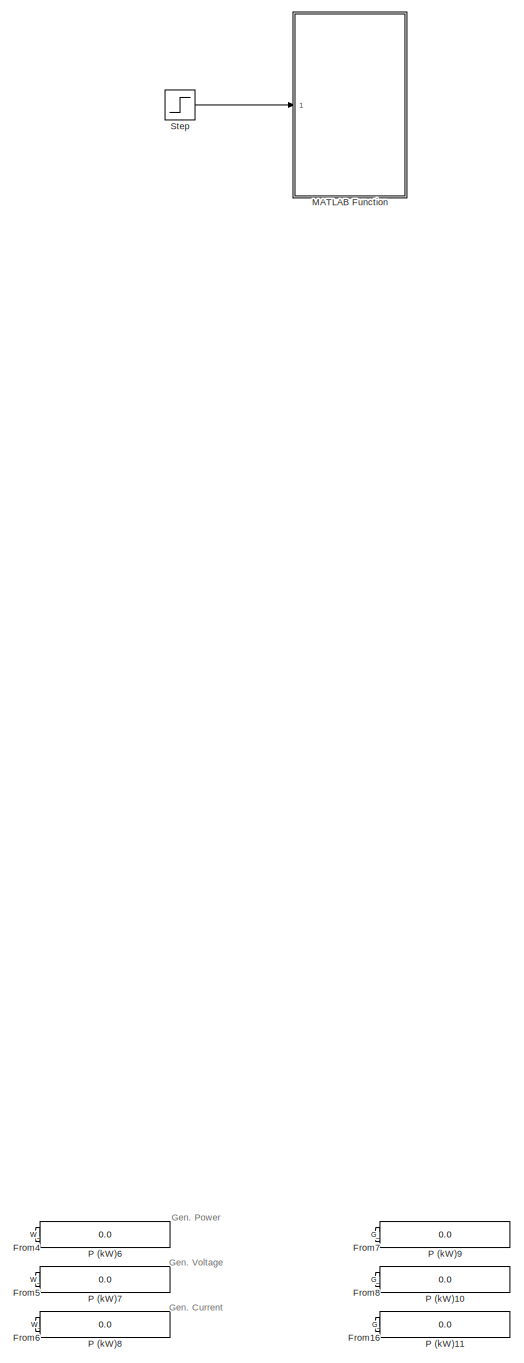
[diagram: root canvas - part 1/16, top left region]
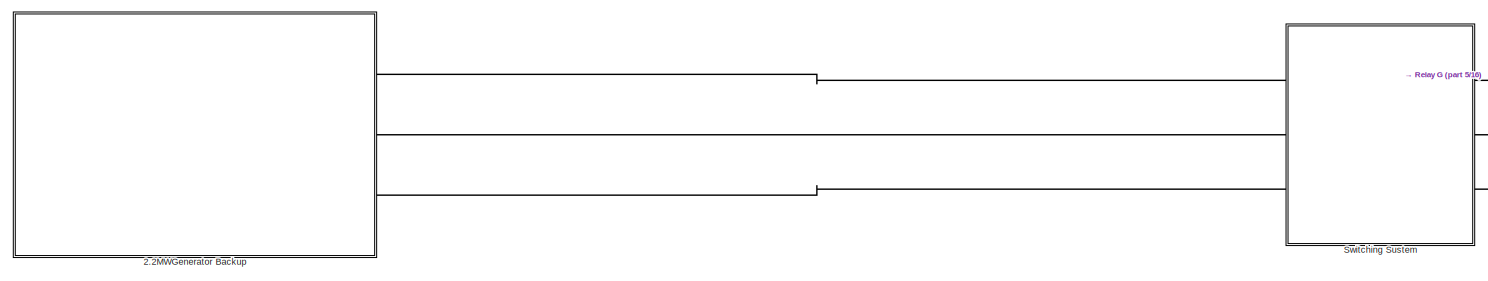
[diagram: root canvas - part 2/16, top center region]
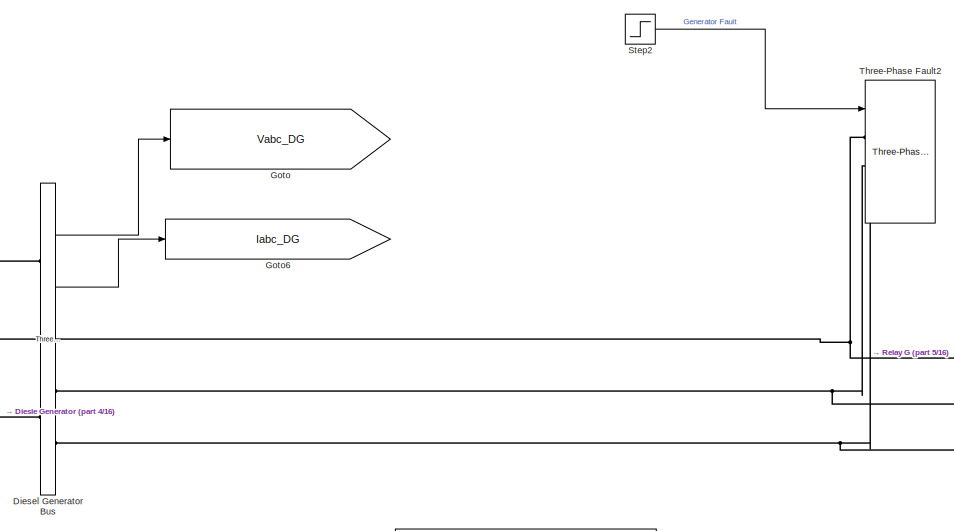
[diagram: root canvas - part 3/16, top center region]
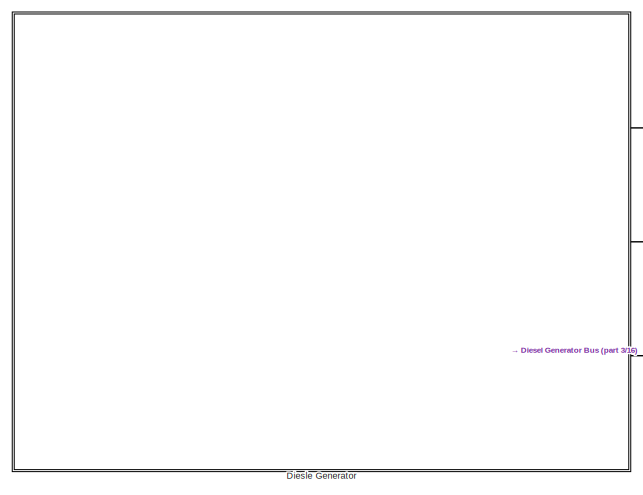
[diagram: root canvas - part 4/16, top left region]
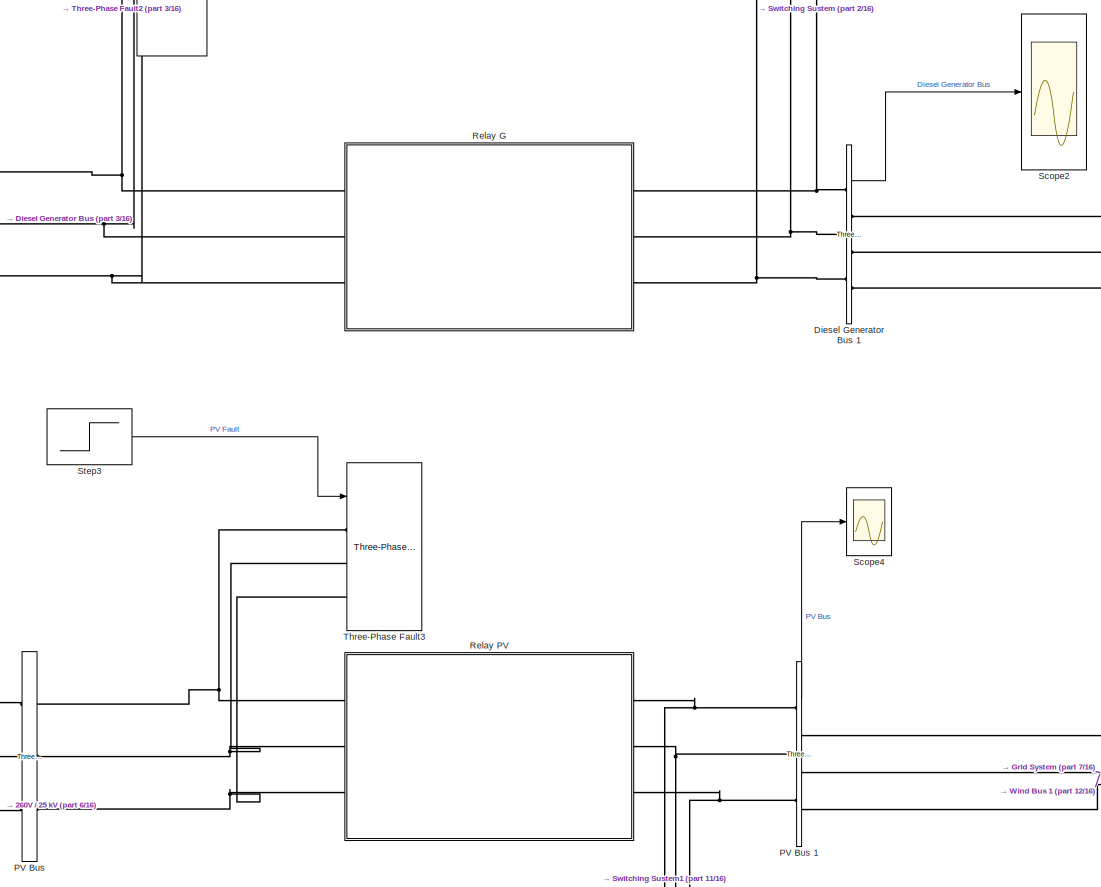
[diagram: root canvas - part 5/16, top center region]
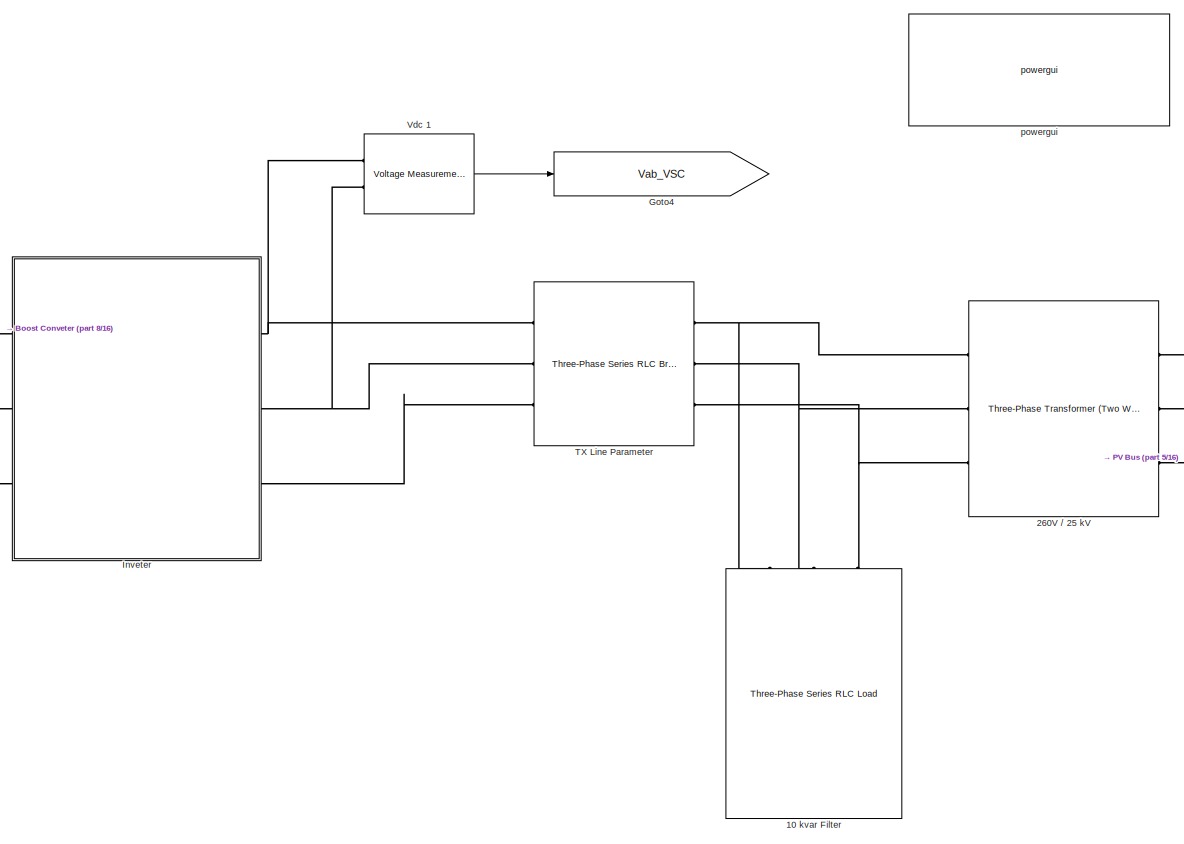
[diagram: root canvas - part 6/16, central region]
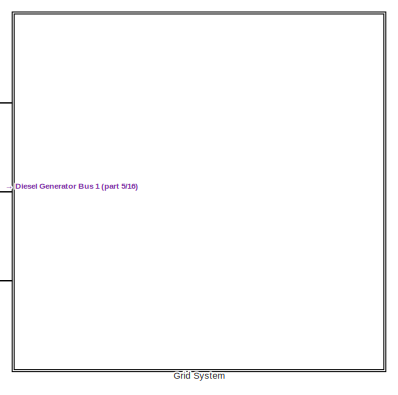
[diagram: root canvas - part 7/16, top right region]
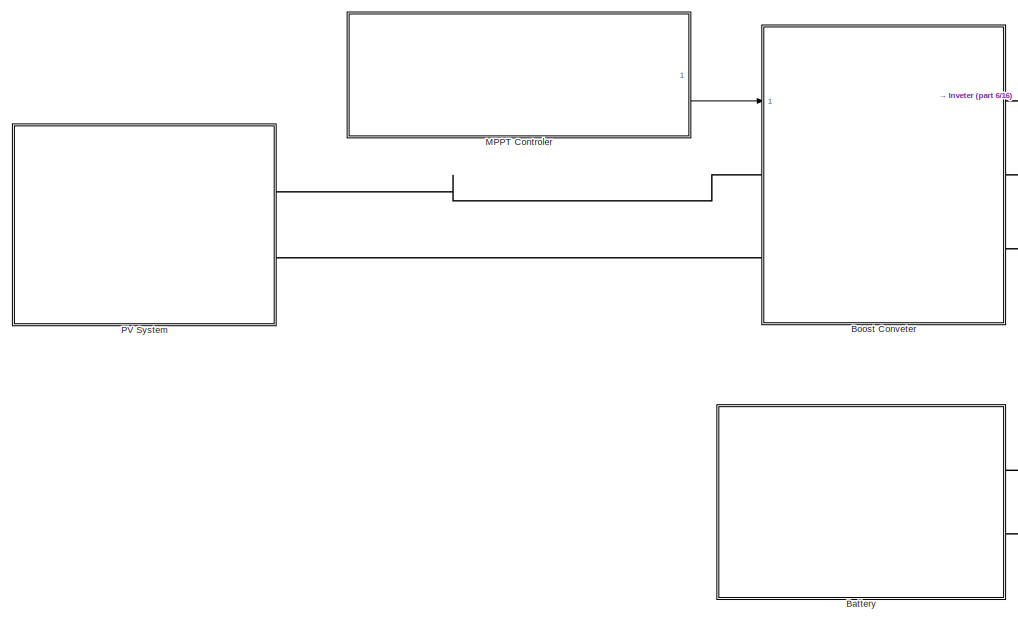
[diagram: root canvas - part 8/16, middle left region]
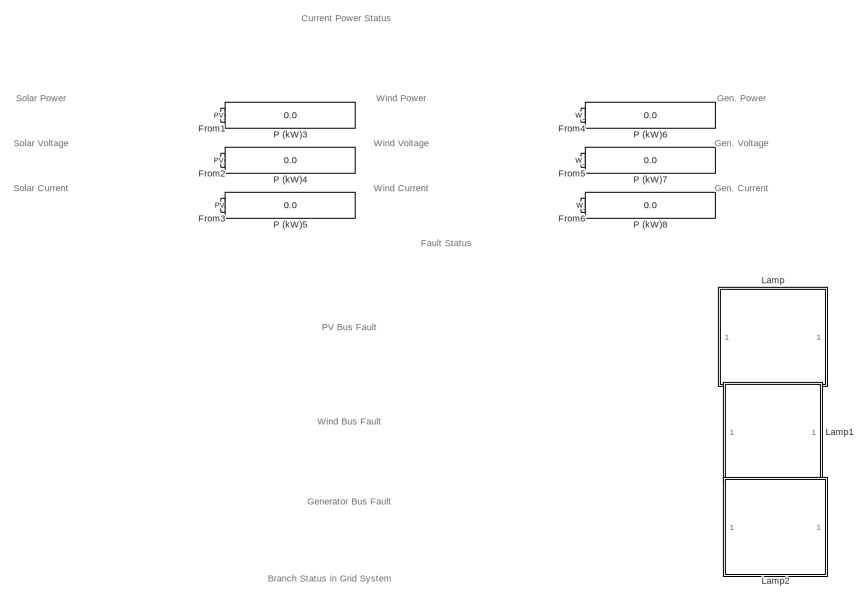
[diagram: root canvas - part 9/16, middle left region]
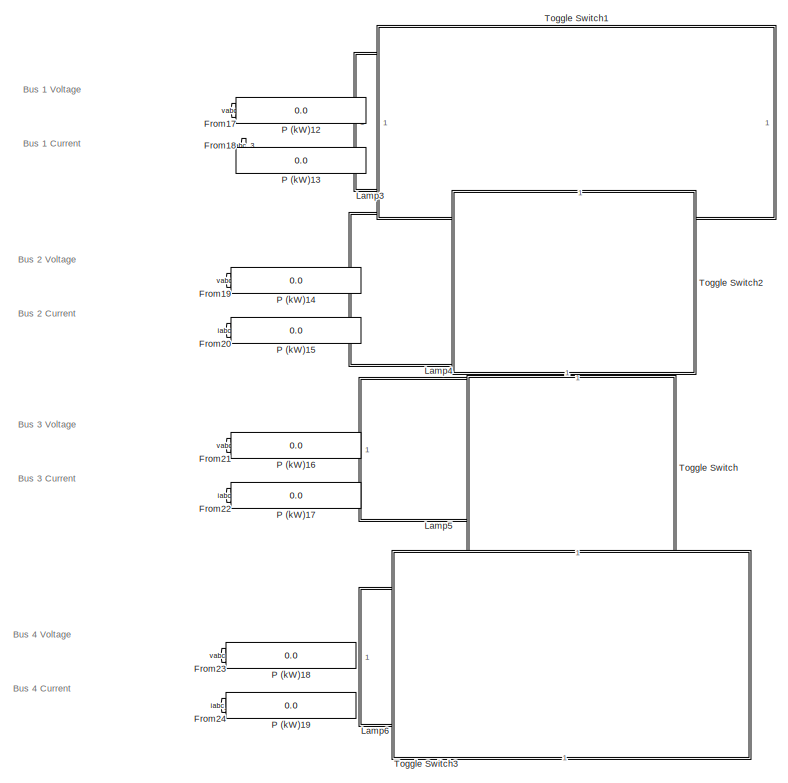
[diagram: root canvas - part 10/16, middle left region]
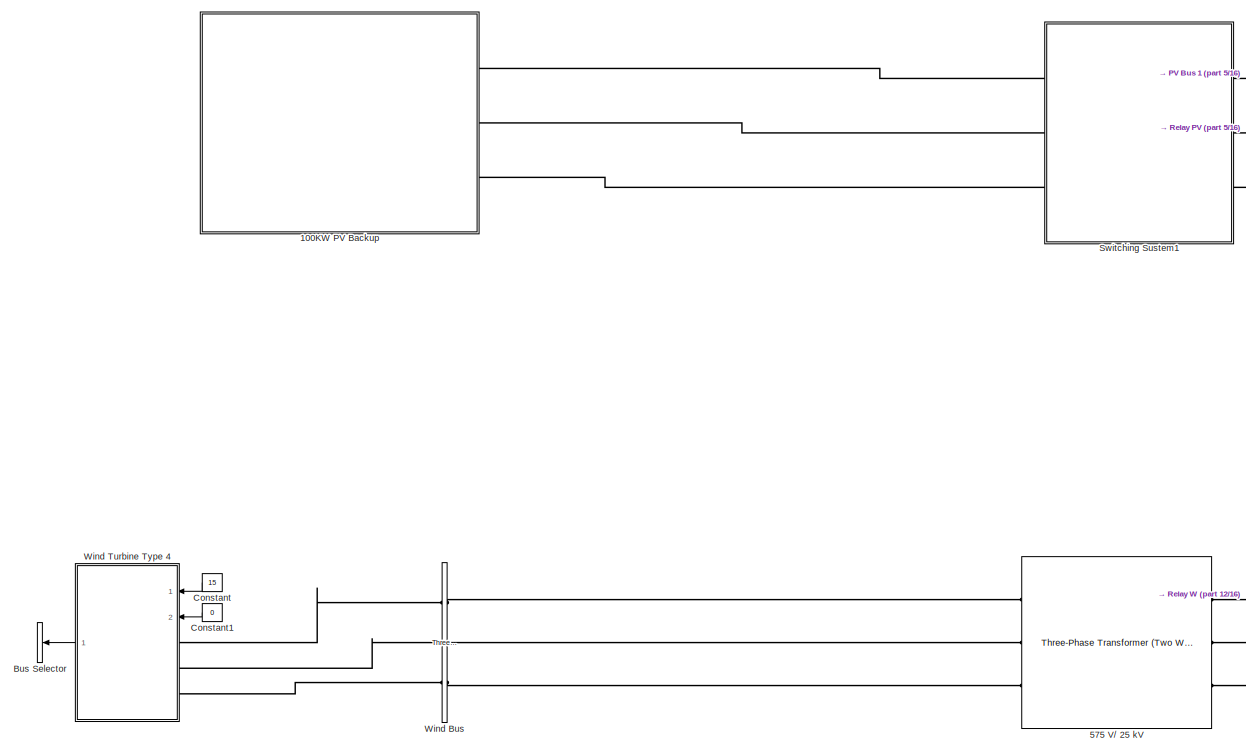
[diagram: root canvas - part 11/16, central region]
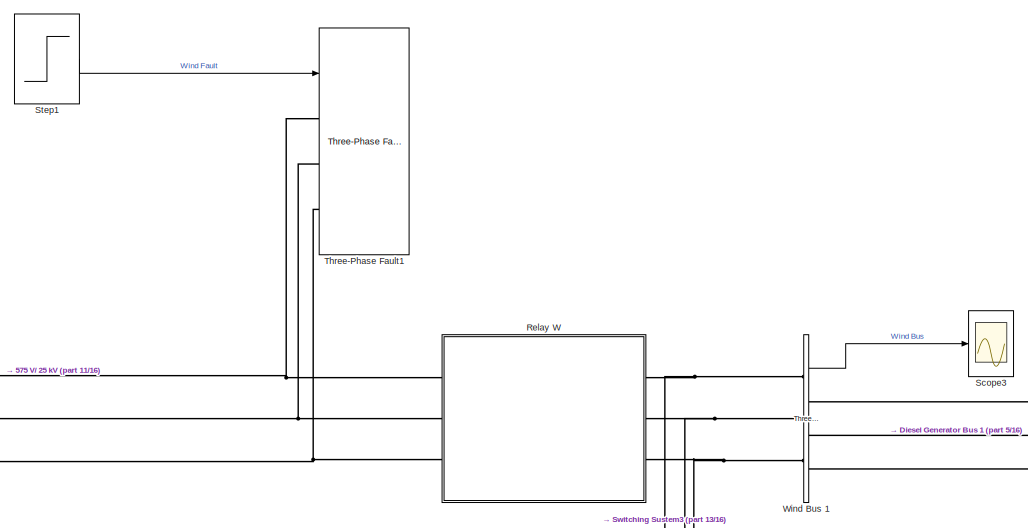
[diagram: root canvas - part 12/16, central region]
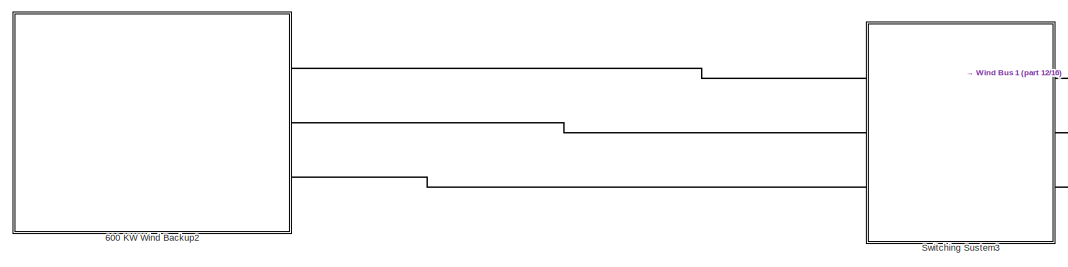
[diagram: root canvas - part 13/16, bottom center region]
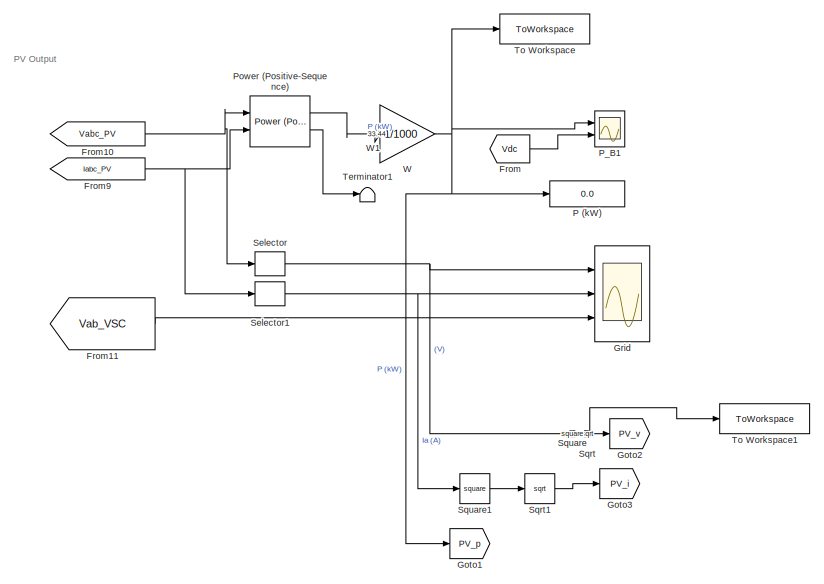
[diagram: root canvas - part 14/16, bottom center region]
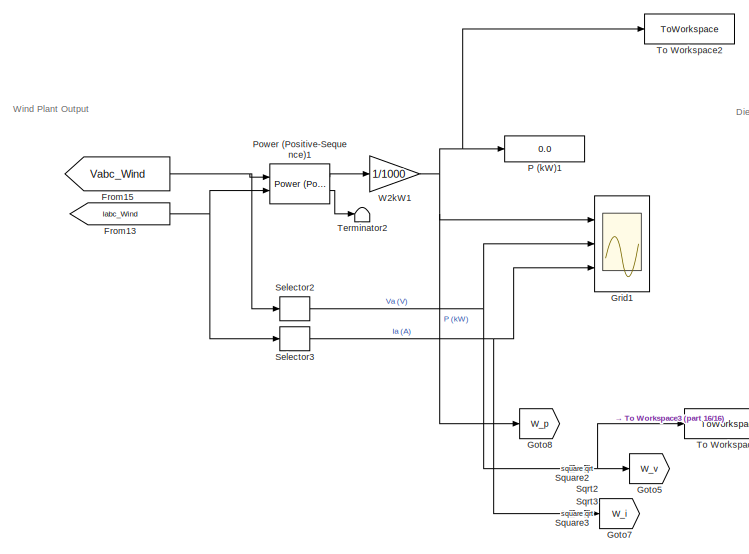
[diagram: root canvas - part 15/16, bottom center region]
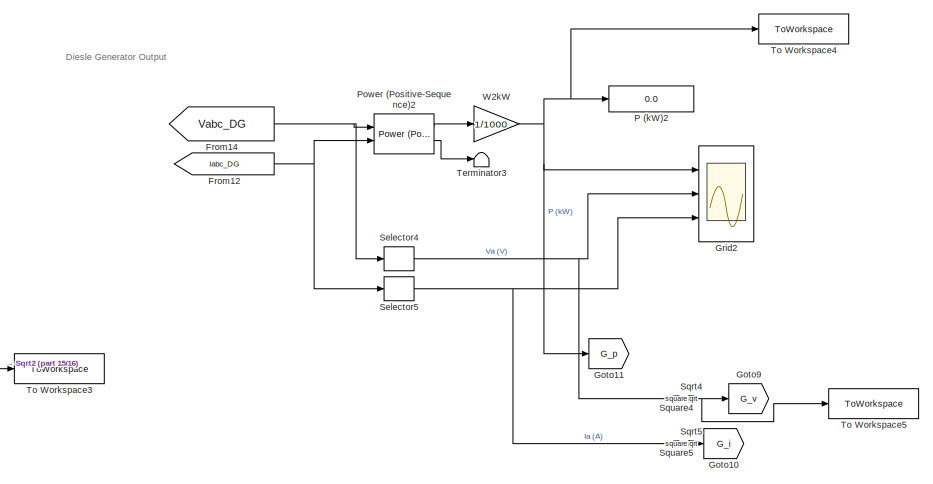
[diagram: root canvas - part 16/16, bottom right region]
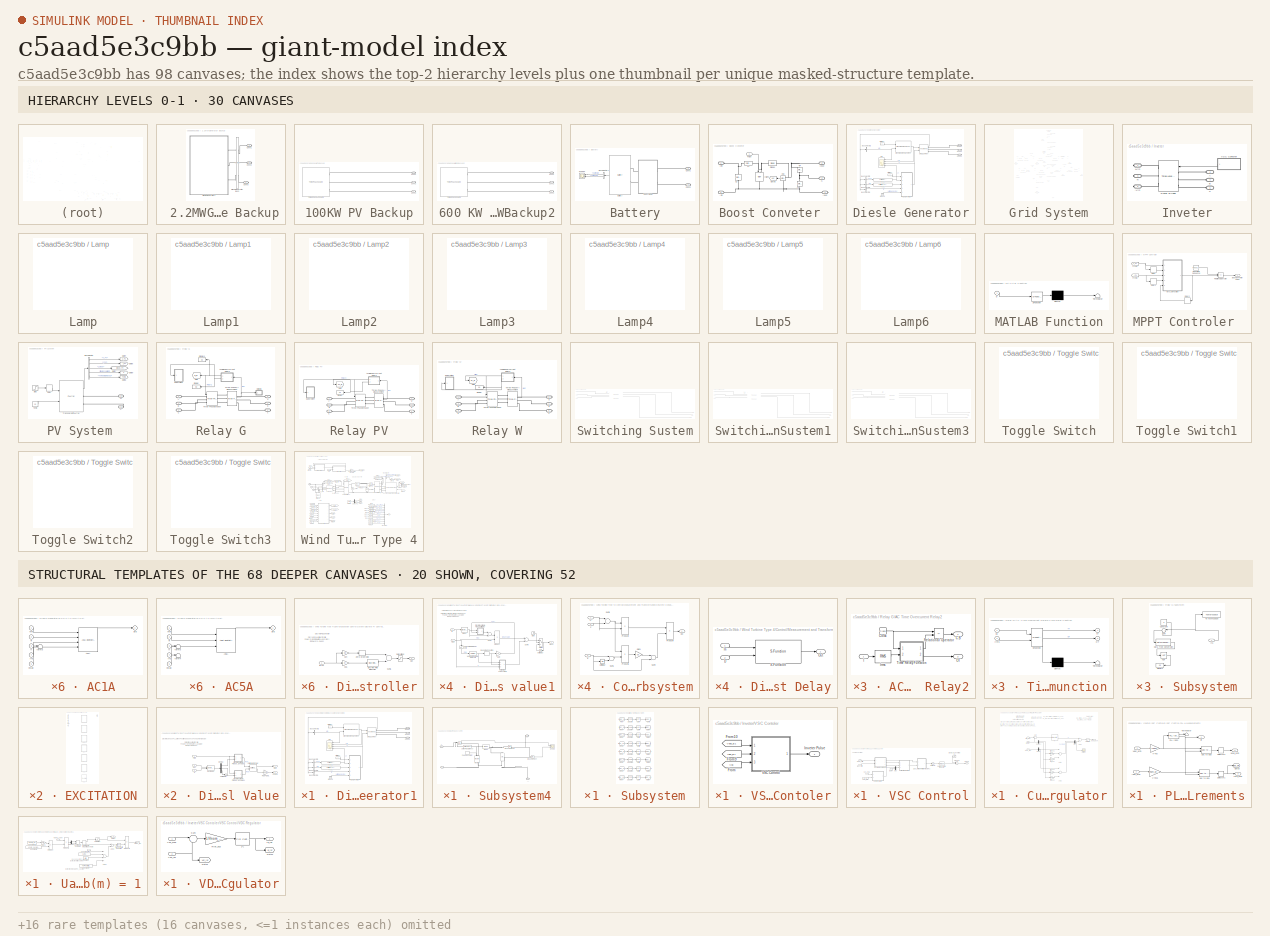
[diagram: thumbnail index - top-2 hierarchy levels (30 canvases) + 20 structural-template representatives of the remaining 68 canvases]
MODEL slx_c5aad5e3c9bb
KIND model
CONFIG AbsTol = auto
CONFIG FixedStep = auto
CONFIG MaxStep = auto
CONFIG MinStep = auto
CONFIG RelTol = 1e-3
CONFIG SampleTimeConstraint = Unconstrained
CONFIG Solver = FixedStepAuto
CONFIG SolverMode = SingleTasking
CONFIG SolverName = FixedStepAuto
CONFIG StartTime = 0.0
CONFIG StopTime = 0.3
BLOCK [SubSystem]  2.2MWGenerator Backup
  Ports = [0, 0, 0, 0, 0, 0, 3]
  RequestExecContextInheritance = off
BLOCK [PMIOPort]  2.2MWGenerator Backup/Conn1
  Side = Right
BLOCK [PMIOPort]  2.2MWGenerator Backup/Conn2
  Port = 2
  Side = Right
BLOCK [PMIOPort]  2.2MWGenerator Backup/Conn3
  Port = 3
  Side = Right
BLOCK [Reference]  2.2MWGenerator Backup/Diesel Generator Bus 2  REF=powerlib/Measurements/Three-Phase
V-I Measurement
  Ports = [0, 0, 0, 0, 0, 3, 3]
  SourceBlock = powerlib/Measurements/Three-Phase\nV-I Measurement
  SourceType = Three-Phase VI Measurement
BLOCK [SubSystem]  2.2MWGenerator Backup/Diesle Generator1
  Ports = [0, 0, 0, 0, 0, 0, 3]
  RequestExecContextInheritance = off
BLOCK [BusSelector]  2.2MWGenerator Backup/Diesle Generator1/Bus Selector2
  OutputAsBus = on
  OutputSignals = Mechanical.Rotor speed  wm  (pu)
  Ports = [1, 1]
BLOCK [BusSelector]  2.2MWGenerator Backup/Diesle Generator1/Bus Selector4
  OutputAsBus = on
  OutputSignals = dq0 components.Field current  ifd (pu)
  Ports = [1, 1]
BLOCK [BusSelector]  2.2MWGenerator Backup/Diesle Generator1/Bus Selector5
  OutputAsBus = on
  OutputSignals = dq0 components.Stator voltage  vd (pu),dq0 components.Stator voltage  vq (pu)
  Ports = [1, 1]
BLOCK [BusSelector]  2.2MWGenerator Backup/Diesle Generator1/Bus Selector6
  OutputAsBus = on
  OutputSignals = dq0 components.Stator current  id (pu),dq0 components.Stator current  iq (pu)
  Ports = [1, 1]
BLOCK [PMIOPort]  2.2MWGenerator Backup/Diesle Generator1/Conn1
  Side = Right
BLOCK [PMIOPort]  2.2MWGenerator Backup/Diesle Generator1/Conn2
  Port = 2
  Side = Right
BLOCK [PMIOPort]  2.2MWGenerator Backup/Diesle Generator1/Conn3
  Port = 3
  Side = Right
BLOCK [Reference]  2.2MWGenerator Backup/Diesle Generator1/Diesel Engine Governor  REF=spsDieselMotorModel/Diesel Engine Governor
  Ports = [2, 1]
  SourceBlock = spsDieselMotorModel/Diesel Engine Governor
  SourceType = Diesel Engine & Governor
BLOCK [SubSystem]  2.2MWGenerator Backup/Diesle Generator1/EXCITATION
  AttributesFormatString = %<BlockChoice>
  OverrideUsingVariant = Variant1
  Ports = [5, 1]
  RequestExecContextInheritance = off
  Variant = on
BLOCK [SubSystem]  2.2MWGenerator Backup/Diesle Generator1/EXCITATION/AC1A
  Ports = [5, 1]
  RequestExecContextInheritance = off
  VariantControl = Variant1
BLOCK [Reference]  2.2MWGenerator Backup/Diesle Generator1/EXCITATION/AC1A/AC1A  REF=sps_avr/AC1A
Excitation System
  Ports = [4, 1]
  SourceBlock = sps_avr/AC1A\nExcitation System
  SourceType = AC1A Excitation System
BLOCK [Outport]  2.2MWGenerator Backup/Diesle Generator1/EXCITATION/AC1A/Efd
  IconDisplay = Port number
BLOCK [Inport]  2.2MWGenerator Backup/Diesle Generator1/EXCITATION/AC1A/Ifd
  IconDisplay = Port number
  Port = 4
BLOCK [Inport]  2.2MWGenerator Backup/Diesle Generator1/EXCITATION/AC1A/It
  IconDisplay = Port number
  Port = 3
BLOCK [Inport]  2.2MWGenerator Backup/Diesle Generator1/EXCITATION/AC1A/Vref
  IconDisplay = Port number
BLOCK [Inport]  2.2MWGenerator Backup/Diesle Generator1/EXCITATION/AC1A/Vstab
  IconDisplay = Port number
  Port = 5
BLOCK [Inport]  2.2MWGenerator Backup/Diesle Generator1/EXCITATION/AC1A/Vt
  IconDisplay = Port number
  Port = 2
BLOCK [Terminator]  2.2MWGenerator Backup/Diesle Generator1/EXCITATION/AC1A/term3
BLOCK [SubSystem]  2.2MWGenerator Backup/Diesle Generator1/EXCITATION/AC4A
  Ports = [5, 1]
  RequestExecContextInheritance = off
  VariantControl = Variant2
BLOCK [Reference]  2.2MWGenerator Backup/Diesle Generator1/EXCITATION/AC4A/AC4A  REF=sps_avr/AC4A
Excitation System
  Ports = [4, 1]
  SourceBlock = sps_avr/AC4A\nExcitation System
  SourceType = AC4A Excitation System
BLOCK [Outport]  2.2MWGenerator Backup/Diesle Generator1/EXCITATION/AC4A/Efd
  IconDisplay = Port number
BLOCK [Inport]  2.2MWGenerator Backup/Diesle Generator1/EXCITATION/AC4A/Ifd
  IconDisplay = Port number
  Port = 4
BLOCK [Inport]  2.2MWGenerator Backup/Diesle Generator1/EXCITATION/AC4A/It
  IconDisplay = Port number
  Port = 3
BLOCK [Inport]  2.2MWGenerator Backup/Diesle Generator1/EXCITATION/AC4A/Vref
  IconDisplay = Port number
BLOCK [Inport]  2.2MWGenerator Backup/Diesle Generator1/EXCITATION/AC4A/Vstab
  IconDisplay = Port number
  Port = 5
BLOCK [Inport]  2.2MWGenerator Backup/Diesle Generator1/EXCITATION/AC4A/Vt
  IconDisplay = Port number
  Port = 2
BLOCK [Terminator]  2.2MWGenerator Backup/Diesle Generator1/EXCITATION/AC4A/term3
BLOCK [SubSystem]  2.2MWGenerator Backup/Diesle Generator1/EXCITATION/AC5A
  Ports = [5, 1]
  RequestExecContextInheritance = off
  VariantControl = Variant3
BLOCK [Reference]  2.2MWGenerator Backup/Diesle Generator1/EXCITATION/AC5A/AC5A  REF=sps_avr/AC5A
Excitation System
  Ports = [3, 1]
  SourceBlock = sps_avr/AC5A\nExcitation System
  SourceType = AC5A Excitation System
BLOCK [Outport]  2.2MWGenerator Backup/Diesle Generator1/EXCITATION/AC5A/Efd
  IconDisplay = Port number
BLOCK [Inport]  2.2MWGenerator Backup/Diesle Generator1/EXCITATION/AC5A/Ifd
  IconDisplay = Port number
  Port = 4
BLOCK [Inport]  2.2MWGenerator Backup/Diesle Generator1/EXCITATION/AC5A/It
  IconDisplay = Port number
  Port = 3
BLOCK [Inport]  2.2MWGenerator Backup/Diesle Generator1/EXCITATION/AC5A/Vref
  IconDisplay = Port number
BLOCK [Inport]  2.2MWGenerator Backup/Diesle Generator1/EXCITATION/AC5A/Vstab
  IconDisplay = Port number
  Port = 5
BLOCK [Inport]  2.2MWGenerator Backup/Diesle Generator1/EXCITATION/AC5A/Vt
  IconDisplay = Port number
  Port = 2
BLOCK [Terminator]  2.2MWGenerator Backup/Diesle Generator1/EXCITATION/AC5A/term3
BLOCK [Terminator]  2.2MWGenerator Backup/Diesle Generator1/EXCITATION/AC5A/term4
BLOCK [SubSystem]  2.2MWGenerator Backup/Diesle Generator1/EXCITATION/DC1A
  Ports = [5, 1]
  RequestExecContextInheritance = off
  VariantControl = Variant4
BLOCK [Reference]  2.2MWGenerator Backup/Diesle Generator1/EXCITATION/DC1A/DC1A  REF=sps_avr/DC1A
Excitation System
  Ports = [3, 1]
  SourceBlock = sps_avr/DC1A\nExcitation System
  SourceType = DC1A Excitation System
BLOCK [Outport]  2.2MWGenerator Backup/Diesle Generator1/EXCITATION/DC1A/Efd
  IconDisplay = Port number
BLOCK [Inport]  2.2MWGenerator Backup/Diesle Generator1/EXCITATION/DC1A/Ifd
  IconDisplay = Port number
  Port = 4
BLOCK [Inport]  2.2MWGenerator Backup/Diesle Generator1/EXCITATION/DC1A/It
  IconDisplay = Port number
  Port = 3
BLOCK [Inport]  2.2MWGenerator Backup/Diesle Generator1/EXCITATION/DC1A/Vref
  IconDisplay = Port number
BLOCK [Inport]  2.2MWGenerator Backup/Diesle Generator1/EXCITATION/DC1A/Vstab
  IconDisplay = Port number
  Port = 5
BLOCK [Inport]  2.2MWGenerator Backup/Diesle Generator1/EXCITATION/DC1A/Vt
  IconDisplay = Port number
  Port = 2
BLOCK [Terminator]  2.2MWGenerator Backup/Diesle Generator1/EXCITATION/DC1A/term3
BLOCK [Terminator]  2.2MWGenerator Backup/Diesle Generator1/EXCITATION/DC1A/term4
BLOCK [SubSystem]  2.2MWGenerator Backup/Diesle Generator1/EXCITATION/DC2A
  Ports = [5, 1]
  RequestExecContextInheritance = off
  VariantControl = Variant5
BLOCK [Reference]  2.2MWGenerator Backup/Diesle Generator1/EXCITATION/DC2A/DC2A  REF=sps_avr/DC2A
Excitation System
  Ports = [3, 1]
  SourceBlock = sps_avr/DC2A\nExcitation System
  SourceType = DC2A Excitation System
BLOCK [Outport]  2.2MWGenerator Backup/Diesle Generator1/EXCITATION/DC2A/Efd
  IconDisplay = Port number
BLOCK [Inport]  2.2MWGenerator Backup/Diesle Generator1/EXCITATION/DC2A/Ifd
  IconDisplay = Port number
  Port = 4
BLOCK [Inport]  2.2MWGenerator Backup/Diesle Generator1/EXCITATION/DC2A/It
  IconDisplay = Port number
  Port = 3
BLOCK [Inport]  2.2MWGenerator Backup/Diesle Generator1/EXCITATION/DC2A/Vref
  IconDisplay = Port number
BLOCK [Inport]  2.2MWGenerator Backup/Diesle Generator1/EXCITATION/DC2A/Vstab
  IconDisplay = Port number
  Port = 5
BLOCK [Inport]  2.2MWGenerator Backup/Diesle Generator1/EXCITATION/DC2A/Vt
  IconDisplay = Port number
  Port = 2
BLOCK [Terminator]  2.2MWGenerator Backup/Diesle Generator1/EXCITATION/DC2A/term3
BLOCK [Terminator]  2.2MWGenerator Backup/Diesle Generator1/EXCITATION/DC2A/term4
BLOCK [Outport]  2.2MWGenerator Backup/Diesle Generator1/EXCITATION/Efd
  IconDisplay = Port number
BLOCK [Inport]  2.2MWGenerator Backup/Diesle Generator1/EXCITATION/Ifd
  IconDisplay = Port number
  Port = 4
BLOCK [Inport]  2.2MWGenerator Backup/Diesle Generator1/EXCITATION/It
  IconDisplay = Port number
  Port = 3
BLOCK [SubSystem]  2.2MWGenerator Backup/Diesle Generator1/EXCITATION/ST1A
  Ports = [5, 1]
  RequestExecContextInheritance = off
  VariantControl = Variant6
BLOCK [Outport]  2.2MWGenerator Backup/Diesle Generator1/EXCITATION/ST1A/Efd
  IconDisplay = Port number
BLOCK [Inport]  2.2MWGenerator Backup/Diesle Generator1/EXCITATION/ST1A/Ifd
  IconDisplay = Port number
  Port = 4
BLOCK [Inport]  2.2MWGenerator Backup/Diesle Generator1/EXCITATION/ST1A/It
  IconDisplay = Port number
  Port = 3
BLOCK [Reference]  2.2MWGenerator Backup/Diesle Generator1/EXCITATION/ST1A/ST1A  REF=sps_avr/ST1A
Excitation System
  Ports = [4, 1]
  SourceBlock = sps_avr/ST1A\nExcitation System
  SourceType = ST1A Excitation System
BLOCK [Inport]  2.2MWGenerator Backup/Diesle Generator1/EXCITATION/ST1A/Vref
  IconDisplay = Port number
BLOCK [Inport]  2.2MWGenerator Backup/Diesle Generator1/EXCITATION/ST1A/Vstab
  IconDisplay = Port number
  Port = 5
BLOCK [Inport]  2.2MWGenerator Backup/Diesle Generator1/EXCITATION/ST1A/Vt
  IconDisplay = Port number
  Port = 2
BLOCK [Terminator]  2.2MWGenerator Backup/Diesle Generator1/EXCITATION/ST1A/term3
BLOCK [Reference]  2.2MWGenerator Backup/Diesle Generator1/EXCITATION/ST2A  REF=sps_avr/ST2A
Excitation System
  Ports = [5, 1]
  SourceBlock = sps_avr/ST2A\nExcitation System
  SourceType = ST2A Excitation System
BLOCK [Inport]  2.2MWGenerator Backup/Diesle Generator1/EXCITATION/Vref
  IconDisplay = Port number
BLOCK [Inport]  2.2MWGenerator Backup/Diesle Generator1/EXCITATION/Vstab
  IconDisplay = Port number
  Port = 5
BLOCK [Inport]  2.2MWGenerator Backup/Diesle Generator1/EXCITATION/Vt
  IconDisplay = Port number
  Port = 2
BLOCK [Fcn]  2.2MWGenerator Backup/Diesle Generator1/Fcn1
  Expr = sqrt(u(1)^2 + u(2)^2)
BLOCK [Fcn]  2.2MWGenerator Backup/Diesle Generator1/Fcn2
  Expr = sqrt(u(1)^2 + u(2)^2)
BLOCK [Ground]  2.2MWGenerator Backup/Diesle Generator1/Ground
BLOCK [Scope]  2.2MWGenerator Backup/Diesle Generator1/SM
  Floating = off
  NumInputPorts = 4
  Ports = [4]
  ScopeSpecificationString = Simulink.scopes.TimeScopeBlockCfg('CurrentConfiguration', extmgr.ConfigurationSet(extmgr.Configuration('Core','General UI',true),extmgr.Configuration('Core','Source UI',true),extmgr.Configuration('Sources','WiredSimulink',true,'DataLoggingSaveFormat','Array','DataLoggingDecimation','1','DataLoggingDecimateData',true,'DataLoggingVariableName','ScopeData1'),extmgr.Configuration('Visuals','Time Domai...<+3728ch>
BLOCK [Reference]  2.2MWGenerator Backup/Diesle Generator1/SM 3.125 MVA  REF=powerlib/Machines/Synchronous Machine
pu Standard
  AttributesFormatString = \n\n
  Ports = [2, 1, 0, 0, 0, 0, 3]
  SourceBlock = powerlib/Machines/Synchronous Machine\npu Standard
  SourceType = Synchronous Machine
BLOCK [Constant]  2.2MWGenerator Backup/Diesle Generator1/Vtref (pu) 
BLOCK [Constant]  2.2MWGenerator Backup/Diesle Generator1/wref (pu)
BLOCK [Reference] 10 kvar Filter  REF=powerlib/Elements/Three-Phase
Series RLC Load
  AttributesFormatString = \n
  Ports = [0, 0, 0, 0, 0, 3]
  SourceBlock = powerlib/Elements/Three-Phase\nSeries RLC Load
  SourceType = Three-Phase Series RLC Load
BLOCK [SubSystem] 100KW PV Backup
  Ports = [0, 0, 0, 0, 0, 0, 3]
  RequestExecContextInheritance = off
BLOCK [PMIOPort] 100KW PV Backup/Conn1
  Side = Right
BLOCK [PMIOPort] 100KW PV Backup/Conn2
  Port = 2
  Side = Right
BLOCK [PMIOPort] 100KW PV Backup/Conn3
  Port = 3
  Side = Right
BLOCK [Reference] 100KW PV Backup/Three-Phase AC Source  REF=powerlib/Electrical
Sources/Three-Phase Source
  Ports = [0, 0, 0, 0, 0, 0, 3]
  SourceBlock = powerlib/Electrical\nSources/Three-Phase Source
  SourceType = Three-Phase Source
BLOCK [Reference] 260V // 25 kV  REF=powerlib/Elements/Three-Phase
Transformer
(Two Windings)
  AttributesFormatString = \n
  Ports = [0, 0, 0, 0, 0, 3, 3]
  SourceBlock = powerlib/Elements/Three-Phase\nTransformer\n(Two Windings)
  SourceType = Three-Phase Transformer (Two Windings)
BLOCK [Reference] 575 V// 25 kV   REF=powerlib/Elements/Three-Phase
Transformer
(Two Windings)
  AttributesFormatString = \n
  Ports = [0, 0, 0, 0, 0, 3, 3]
  SourceBlock = powerlib/Elements/Three-Phase\nTransformer\n(Two Windings)
  SourceType = Three-Phase Transformer (Two Windings)
BLOCK [SubSystem] 600 KW Wind Backup2
  Ports = [0, 0, 0, 0, 0, 0, 3]
  RequestExecContextInheritance = off
BLOCK [PMIOPort] 600 KW Wind Backup2/Conn1
  Side = Right
BLOCK [PMIOPort] 600 KW Wind Backup2/Conn2
  Port = 2
  Side = Right
BLOCK [PMIOPort] 600 KW Wind Backup2/Conn3
  Port = 3
  Side = Right
BLOCK [Reference] 600 KW Wind Backup2/Three-Phase Source  REF=powerlib/Electrical
Sources/Three-Phase Source
  Ports = [0, 0, 0, 0, 0, 0, 3]
  SourceBlock = powerlib/Electrical\nSources/Three-Phase Source
  SourceType = Three-Phase Source
BLOCK [SubSystem] Battery
  Ports = [0, 0, 0, 0, 0, 0, 2]
  RequestExecContextInheritance = off
BLOCK [Reference] Battery/Battery  REF=electricdrivelib/Extra Sources/Battery
  Ports = [0, 1, 0, 0, 0, 2]
  SourceBlock = electricdrivelib/Extra Sources/Battery
  SourceType = Battery
BLOCK [BusSelector] Battery/Bus Selector1
  OutputSignals = Current (A),Voltage (V)
  Ports = [1, 2]
BLOCK [PMIOPort] Battery/Conn1
  Side = Right
BLOCK [PMIOPort] Battery/Conn2
  Port = 2
  Side = Right
BLOCK [Scope] Battery/Scope3
  Floating = off
  NumInputPorts = 2
  Ports = [2]
  ScopeSpecificationString = Simulink.scopes.TimeScopeBlockCfg('CurrentConfiguration', extmgr.ConfigurationSet(extmgr.Configuration('Core','General UI',true),extmgr.Configuration('Core','Source UI',true),extmgr.Configuration('Sources','WiredSimulink',true,'DataLoggingVariableName','ScopeData5','DataLoggingSaveFormat','StructureWithTime','DataLoggingLimitDataPoints',true,'DataLoggingDecimation','1','DataLoggingDecimateData',tr...<+2340ch>
BLOCK [SubSystem] Battery/Subsystem4
  Ports = [0, 0, 0, 0, 0, 2, 2]
  RequestExecContextInheritance = off
BLOCK [Reference] Battery/Subsystem4/    REF=powerlib/Measurements/Voltage Measurement
  Ports = [0, 1, 0, 0, 0, 2]
  SourceBlock = powerlib/Measurements/Voltage Measurement
  SourceType = Voltage Measurement
BLOCK [Reference] Battery/Subsystem4/      REF=powerlib/Elements/Series RLC Branch
  Ports = [0, 0, 0, 0, 0, 1, 1]
  SourceBlock = powerlib/Elements/Series RLC Branch
  SourceType = Series RLC Branch
BLOCK [Reference] Battery/Subsystem4/ Measurement  REF=powerlib/Measurements/Voltage Measurement
  Ports = [0, 1, 0, 0, 0, 2]
  SourceBlock = powerlib/Measurements/Voltage Measurement
  SourceType = Voltage Measurement
BLOCK [Reference] Battery/Subsystem4/ Measurement1  REF=powerlib/Measurements/Current Measurement
  Ports = [0, 1, 0, 0, 0, 1, 1]
  SourceBlock = powerlib/Measurements/Current Measurement
  SourceType = Current Measurement
BLOCK [PMIOPort] Battery/Subsystem4/+
  Side = Left
BLOCK [PMIOPort] Battery/Subsystem4/++
  Port = 3
  Side = Right
BLOCK [Reference] Battery/Subsystem4/Diode  REF=powerlib/Power
Electronics/Diode
  Ports = [0, 1, 0, 0, 0, 1, 1]
  SourceBlock = powerlib/Power\nElectronics/Diode
  SourceType = Diode
BLOCK [Reference] Battery/Subsystem4/Mosfet  REF=powerlib/Power
Electronics/Mosfet
  Ports = [1, 1, 0, 0, 0, 1, 1]
  SourceBlock = powerlib/Power\nElectronics/Mosfet
  SourceType = Mosfet
BLOCK [DiscretePulseGenerator] Battery/Subsystem4/Pulse Generator
  Period = 1/100000
  Ports = [0, 1]
  PulseType = Time based
  PulseWidth = 50
BLOCK [Scope] Battery/Subsystem4/Scope
  Floating = off
  NumInputPorts = 2
  Ports = [2]
  ScopeSpecificationString = Simulink.scopes.TimeScopeBlockCfg('CurrentConfiguration', extmgr.ConfigurationSet(extmgr.Configuration('Core','General UI',true),extmgr.Configuration('Core','Source UI',true),extmgr.Configuration('Sources','WiredSimulink',true,'DataLoggingSaveFormat','StructureWithTime','DataLoggingLimitDataPoints',true,'DataLoggingDecimation','1','DataLoggingDecimateData',true),extmgr.Configuration('Visuals','Tim...<+2377ch>
BLOCK [Reference] Battery/Subsystem4/Series RLC Branch  REF=powerlib/Elements/Series RLC Branch
  Ports = [0, 0, 0, 0, 0, 1, 1]
  SourceBlock = powerlib/Elements/Series RLC Branch
  SourceType = Series RLC Branch
BLOCK [PMIOPort] Battery/Subsystem4/_
  Port = 2
  Side = Left
BLOCK [PMIOPort] Battery/Subsystem4/__
  Port = 4
  Side = Right
BLOCK [SubSystem] Boost Conveter 
  Ports = [1, 0, 0, 0, 0, 2, 3]
  RequestExecContextInheritance = off
BLOCK [PMIOPort] Boost Conveter /+Vin
  Side = Left
BLOCK [PMIOPort] Boost Conveter /+Vout
  Port = 2
  Side = Right
BLOCK [PMIOPort] Boost Conveter /-Vin
  Port = 5
  Side = Left
BLOCK [PMIOPort] Boost Conveter /-Vout
  Port = 4
  Side = Right
BLOCK [Reference] Boost Conveter /C1  REF=powerlib/Elements/Series RLC Branch
  AttributesFormatString = \n
  Ports = [0, 0, 0, 0, 0, 1, 1]
  SourceBlock = powerlib/Elements/Series RLC Branch
  SourceType = Series RLC Branch
BLOCK [Reference] Boost Conveter /C2  REF=powerlib/Elements/Series RLC Branch
  AttributesFormatString = \n
  Ports = [0, 0, 0, 0, 0, 1, 1]
  SourceBlock = powerlib/Elements/Series RLC Branch
  SourceType = Series RLC Branch
BLOCK [Reference] Boost Conveter /C3  REF=powerlib/Elements/Series RLC Branch
  AttributesFormatString = \n
  Ports = [0, 0, 0, 0, 0, 1, 1]
  SourceBlock = powerlib/Elements/Series RLC Branch
  SourceType = Series RLC Branch
BLOCK [Reference] Boost Conveter /Diode1  REF=powerlib/Power
Electronics/Diode
  Ports = [0, 0, 0, 0, 0, 1, 1]
  SourceBlock = powerlib/Power\nElectronics/Diode
  SourceType = Diode
BLOCK [Goto] Boost Conveter /Goto5
  GotoTag = Vdc
  TagVisibility = global
BLOCK [Reference] Boost Conveter /IGBT1  REF=powerlib/Power
Electronics/IGBT
  Ports = [1, 0, 0, 0, 0, 1, 1]
  SourceBlock = powerlib/Power\nElectronics/IGBT
  SourceType = IGBT
BLOCK [Reference] Boost Conveter /L1  REF=powerlib/Elements/Series RLC Branch
  Ports = [0, 0, 0, 0, 0, 1, 1]
  SourceBlock = powerlib/Elements/Series RLC Branch
  SourceType = Series RLC Branch
BLOCK [PMIOPort] Boost Conveter /N
  Port = 3
  Side = Right
BLOCK [Inport] Boost Conveter /Pulse
  IconDisplay = Port number
BLOCK [Reference] Boost Conveter /Vdc   REF=powerlib/Measurements/Voltage Measurement
  AttributesFormatString = \n
  Ports = [0, 1, 0, 0, 0, 2]
  SourceBlock = powerlib/Measurements/Voltage Measurement
  SourceType = Voltage Measurement
  Tag = PoWeRsYsTeMmEaSuReMeNt
BLOCK [BusSelector] Bus Selector
  OutputSignals = Vdc_V,wr_pu,PQ_pu.P_pu,PQ_pu.Q_pu
  Ports = [1, 4]
BLOCK [Constant] Constant
  Value = 15
BLOCK [Constant] Constant1
  Value = 0
BLOCK [Reference] Diesel Generator Bus   REF=powerlib/Measurements/Three-Phase
V-I Measurement
  Ports = [0, 2, 0, 0, 0, 3, 3]
  SourceBlock = powerlib/Measurements/Three-Phase\nV-I Measurement
  SourceType = Three-Phase VI Measurement
BLOCK [Reference] Diesel Generator Bus 1  REF=powerlib/Measurements/Three-Phase
V-I Measurement
  Ports = [0, 1, 0, 0, 0, 3, 3]
  SourceBlock = powerlib/Measurements/Three-Phase\nV-I Measurement
  SourceType = Three-Phase VI Measurement
BLOCK [SubSystem] Diesle Generator
  Ports = [0, 0, 0, 0, 0, 0, 3]
  RequestExecContextInheritance = off
BLOCK [BusSelector] Diesle Generator/Bus Selector2
  OutputAsBus = on
  OutputSignals = Mechanical.Rotor speed  wm  (pu)
  Ports = [1, 1]
BLOCK [BusSelector] Diesle Generator/Bus Selector4
  OutputAsBus = on
  OutputSignals = dq0 components.Field current  ifd (pu)
  Ports = [1, 1]
BLOCK [BusSelector] Diesle Generator/Bus Selector5
  OutputAsBus = on
  OutputSignals = dq0 components.Stator voltage  vd (pu),dq0 components.Stator voltage  vq (pu)
  Ports = [1, 1]
BLOCK [BusSelector] Diesle Generator/Bus Selector6
  OutputAsBus = on
  OutputSignals = dq0 components.Stator current  id (pu),dq0 components.Stator current  iq (pu)
  Ports = [1, 1]
BLOCK [PMIOPort] Diesle Generator/Conn1
  Side = Right
BLOCK [PMIOPort] Diesle Generator/Conn2
  Port = 2
  Side = Right
BLOCK [PMIOPort] Diesle Generator/Conn3
  Port = 3
  Side = Right
BLOCK [Reference] Diesle Generator/Diesel Engine Governor  REF=spsDieselMotorModel/Diesel Engine Governor
  Ports = [2, 1]
  SourceBlock = spsDieselMotorModel/Diesel Engine Governor
  SourceType = Diesel Engine & Governor
BLOCK [SubSystem] Diesle Generator/EXCITATION
  AttributesFormatString = %<BlockChoice>
  OverrideUsingVariant = Variant1
  Ports = [5, 1]
  RequestExecContextInheritance = off
  Variant = on
BLOCK [SubSystem] Diesle Generator/EXCITATION/AC1A
  Ports = [5, 1]
  RequestExecContextInheritance = off
  VariantControl = Variant1
BLOCK [Reference] Diesle Generator/EXCITATION/AC1A/AC1A  REF=sps_avr/AC1A
Excitation System
  Ports = [4, 1]
  SourceBlock = sps_avr/AC1A\nExcitation System
  SourceType = AC1A Excitation System
BLOCK [Outport] Diesle Generator/EXCITATION/AC1A/Efd
  IconDisplay = Port number
BLOCK [Inport] Diesle Generator/EXCITATION/AC1A/Ifd
  IconDisplay = Port number
  Port = 4
BLOCK [Inport] Diesle Generator/EXCITATION/AC1A/It
  IconDisplay = Port number
  Port = 3
BLOCK [Inport] Diesle Generator/EXCITATION/AC1A/Vref
  IconDisplay = Port number
BLOCK [Inport] Diesle Generator/EXCITATION/AC1A/Vstab
  IconDisplay = Port number
  Port = 5
BLOCK [Inport] Diesle Generator/EXCITATION/AC1A/Vt
  IconDisplay = Port number
  Port = 2
BLOCK [Terminator] Diesle Generator/EXCITATION/AC1A/term3
BLOCK [SubSystem] Diesle Generator/EXCITATION/AC4A
  Ports = [5, 1]
  RequestExecContextInheritance = off
  VariantControl = Variant2
BLOCK [Reference] Diesle Generator/EXCITATION/AC4A/AC4A  REF=sps_avr/AC4A
Excitation System
  Ports = [4, 1]
  SourceBlock = sps_avr/AC4A\nExcitation System
  SourceType = AC4A Excitation System
BLOCK [Outport] Diesle Generator/EXCITATION/AC4A/Efd
  IconDisplay = Port number
BLOCK [Inport] Diesle Generator/EXCITATION/AC4A/Ifd
  IconDisplay = Port number
  Port = 4
BLOCK [Inport] Diesle Generator/EXCITATION/AC4A/It
  IconDisplay = Port number
  Port = 3
BLOCK [Inport] Diesle Generator/EXCITATION/AC4A/Vref
  IconDisplay = Port number
BLOCK [Inport] Diesle Generator/EXCITATION/AC4A/Vstab
  IconDisplay = Port number
  Port = 5
BLOCK [Inport] Diesle Generator/EXCITATION/AC4A/Vt
  IconDisplay = Port number
  Port = 2
BLOCK [Terminator] Diesle Generator/EXCITATION/AC4A/term3
BLOCK [SubSystem] Diesle Generator/EXCITATION/AC5A
  Ports = [5, 1]
  RequestExecContextInheritance = off
  VariantControl = Variant3
BLOCK [Reference] Diesle Generator/EXCITATION/AC5A/AC5A  REF=sps_avr/AC5A
Excitation System
  Ports = [3, 1]
  SourceBlock = sps_avr/AC5A\nExcitation System
  SourceType = AC5A Excitation System
BLOCK [Outport] Diesle Generator/EXCITATION/AC5A/Efd
  IconDisplay = Port number
BLOCK [Inport] Diesle Generator/EXCITATION/AC5A/Ifd
  IconDisplay = Port number
  Port = 4
BLOCK [Inport] Diesle Generator/EXCITATION/AC5A/It
  IconDisplay = Port number
  Port = 3
BLOCK [Inport] Diesle Generator/EXCITATION/AC5A/Vref
  IconDisplay = Port number
BLOCK [Inport] Diesle Generator/EXCITATION/AC5A/Vstab
  IconDisplay = Port number
  Port = 5
BLOCK [Inport] Diesle Generator/EXCITATION/AC5A/Vt
  IconDisplay = Port number
  Port = 2
BLOCK [Terminator] Diesle Generator/EXCITATION/AC5A/term3
BLOCK [Terminator] Diesle Generator/EXCITATION/AC5A/term4
BLOCK [SubSystem] Diesle Generator/EXCITATION/DC1A
  Ports = [5, 1]
  RequestExecContextInheritance = off
  VariantControl = Variant4
BLOCK [Reference] Diesle Generator/EXCITATION/DC1A/DC1A  REF=sps_avr/DC1A
Excitation System
  Ports = [3, 1]
  SourceBlock = sps_avr/DC1A\nExcitation System
  SourceType = DC1A Excitation System
BLOCK [Outport] Diesle Generator/EXCITATION/DC1A/Efd
  IconDisplay = Port number
BLOCK [Inport] Diesle Generator/EXCITATION/DC1A/Ifd
  IconDisplay = Port number
  Port = 4
BLOCK [Inport] Diesle Generator/EXCITATION/DC1A/It
  IconDisplay = Port number
  Port = 3
BLOCK [Inport] Diesle Generator/EXCITATION/DC1A/Vref
  IconDisplay = Port number
BLOCK [Inport] Diesle Generator/EXCITATION/DC1A/Vstab
  IconDisplay = Port number
  Port = 5
BLOCK [Inport] Diesle Generator/EXCITATION/DC1A/Vt
  IconDisplay = Port number
  Port = 2
BLOCK [Terminator] Diesle Generator/EXCITATION/DC1A/term3
BLOCK [Terminator] Diesle Generator/EXCITATION/DC1A/term4
BLOCK [SubSystem] Diesle Generator/EXCITATION/DC2A
  Ports = [5, 1]
  RequestExecContextInheritance = off
  VariantControl = Variant5
BLOCK [Reference] Diesle Generator/EXCITATION/DC2A/DC2A  REF=sps_avr/DC2A
Excitation System
  Ports = [3, 1]
  SourceBlock = sps_avr/DC2A\nExcitation System
  SourceType = DC2A Excitation System
BLOCK [Outport] Diesle Generator/EXCITATION/DC2A/Efd
  IconDisplay = Port number
BLOCK [Inport] Diesle Generator/EXCITATION/DC2A/Ifd
  IconDisplay = Port number
  Port = 4
BLOCK [Inport] Diesle Generator/EXCITATION/DC2A/It
  IconDisplay = Port number
  Port = 3
BLOCK [Inport] Diesle Generator/EXCITATION/DC2A/Vref
  IconDisplay = Port number
BLOCK [Inport] Diesle Generator/EXCITATION/DC2A/Vstab
  IconDisplay = Port number
  Port = 5
BLOCK [Inport] Diesle Generator/EXCITATION/DC2A/Vt
  IconDisplay = Port number
  Port = 2
BLOCK [Terminator] Diesle Generator/EXCITATION/DC2A/term3
BLOCK [Terminator] Diesle Generator/EXCITATION/DC2A/term4
BLOCK [Outport] Diesle Generator/EXCITATION/Efd
  IconDisplay = Port number
BLOCK [Inport] Diesle Generator/EXCITATION/Ifd
  IconDisplay = Port number
  Port = 4
BLOCK [Inport] Diesle Generator/EXCITATION/It
  IconDisplay = Port number
  Port = 3
BLOCK [SubSystem] Diesle Generator/EXCITATION/ST1A
  Ports = [5, 1]
  RequestExecContextInheritance = off
  VariantControl = Variant6
BLOCK [Outport] Diesle Generator/EXCITATION/ST1A/Efd
  IconDisplay = Port number
BLOCK [Inport] Diesle Generator/EXCITATION/ST1A/Ifd
  IconDisplay = Port number
  Port = 4
BLOCK [Inport] Diesle Generator/EXCITATION/ST1A/It
  IconDisplay = Port number
  Port = 3
BLOCK [Reference] Diesle Generator/EXCITATION/ST1A/ST1A  REF=sps_avr/ST1A
Excitation System
  Ports = [4, 1]
  SourceBlock = sps_avr/ST1A\nExcitation System
  SourceType = ST1A Excitation System
BLOCK [Inport] Diesle Generator/EXCITATION/ST1A/Vref
  IconDisplay = Port number
BLOCK [Inport] Diesle Generator/EXCITATION/ST1A/Vstab
  IconDisplay = Port number
  Port = 5
BLOCK [Inport] Diesle Generator/EXCITATION/ST1A/Vt
  IconDisplay = Port number
  Port = 2
BLOCK [Terminator] Diesle Generator/EXCITATION/ST1A/term3
BLOCK [Reference] Diesle Generator/EXCITATION/ST2A  REF=sps_avr/ST2A
Excitation System
  Ports = [5, 1]
  SourceBlock = sps_avr/ST2A\nExcitation System
  SourceType = ST2A Excitation System
BLOCK [Inport] Diesle Generator/EXCITATION/Vref
  IconDisplay = Port number
BLOCK [Inport] Diesle Generator/EXCITATION/Vstab
  IconDisplay = Port number
  Port = 5
BLOCK [Inport] Diesle Generator/EXCITATION/Vt
  IconDisplay = Port number
  Port = 2
BLOCK [Fcn] Diesle Generator/Fcn1
  Expr = sqrt(u(1)^2 + u(2)^2)
BLOCK [Fcn] Diesle Generator/Fcn2
  Expr = sqrt(u(1)^2 + u(2)^2)
BLOCK [Ground] Diesle Generator/Ground
BLOCK [Scope] Diesle Generator/SM
  Floating = off
  NumInputPorts = 4
  Ports = [4]
  ScopeSpecificationString = Simulink.scopes.TimeScopeBlockCfg('CurrentConfiguration', extmgr.ConfigurationSet(extmgr.Configuration('Core','General UI',true),extmgr.Configuration('Core','Source UI',true),extmgr.Configuration('Sources','WiredSimulink',true,'DataLoggingSaveFormat','Array','DataLoggingDecimation','1','DataLoggingDecimateData',true,'DataLoggingVariableName','ScopeData1'),extmgr.Configuration('Visuals','Time Domai...<+3728ch>
BLOCK [Reference] Diesle Generator/SM 3.125 MVA  REF=powerlib/Machines/Synchronous Machine
pu Standard
  AttributesFormatString = \n\n
  Ports = [2, 1, 0, 0, 0, 0, 3]
  SourceBlock = powerlib/Machines/Synchronous Machine\npu Standard
  SourceType = Synchronous Machine
BLOCK [Constant] Diesle Generator/Vtref (pu) 
BLOCK [Constant] Diesle Generator/wref (pu)
BLOCK [From] From
  GotoTag = Vdc
  TagVisibility = global
BLOCK [From] From1
  GotoTag = PV_p
  TagVisibility = global
BLOCK [From] From10
  CloseFcn = tagdialog Close
  GotoTag = Vabc_PV
  TagVisibility = global
BLOCK [From] From11
  CloseFcn = tagdialog Close
  GotoTag = Vab_VSC
  TagVisibility = global
BLOCK [From] From12
  CloseFcn = tagdialog Close
  GotoTag = Iabc_DG
  TagVisibility = global
BLOCK [From] From13
  CloseFcn = tagdialog Close
  GotoTag = Iabc_Wind
  TagVisibility = global
BLOCK [From] From14
  CloseFcn = tagdialog Close
  GotoTag = Vabc_DG
  TagVisibility = global
BLOCK [From] From15
  CloseFcn = tagdialog Close
  GotoTag = Vabc_Wind
  TagVisibility = global
BLOCK [From] From16
  GotoTag = G_i
  TagVisibility = global
BLOCK [From] From17
  GotoTag = vabc_3
  TagVisibility = global
BLOCK [From] From18
  GotoTag = iabc_3
  TagVisibility = global
BLOCK [From] From19
  GotoTag = vabc_6
  TagVisibility = global
BLOCK [From] From2
  GotoTag = PV_v
  TagVisibility = global
BLOCK [From] From20
  GotoTag = iabc_6
  TagVisibility = global
BLOCK [From] From21
  GotoTag = vabc_9
  TagVisibility = global
BLOCK [From] From22
  GotoTag = iabc_9
  TagVisibility = global
BLOCK [From] From23
  GotoTag = vabc_11
  TagVisibility = global
BLOCK [From] From24
  GotoTag = iabc_11
  TagVisibility = global
BLOCK [From] From3
  GotoTag = PV_i
  TagVisibility = global
BLOCK [From] From4
  GotoTag = W_p
  TagVisibility = global
BLOCK [From] From5
  GotoTag = W_v
  TagVisibility = global
BLOCK [From] From6
  GotoTag = W_i
  TagVisibility = global
BLOCK [From] From7
  GotoTag = G_p
  TagVisibility = global
BLOCK [From] From8
  GotoTag = G_v
  TagVisibility = global
BLOCK [From] From9
  CloseFcn = tagdialog Close
  GotoTag = Iabc_PV
  TagVisibility = global
BLOCK [Goto] Goto
  GotoTag = Vabc_DG
  TagVisibility = global
BLOCK [Goto] Goto1
  GotoTag = PV_p
  TagVisibility = global
BLOCK [Goto] Goto10
  GotoTag = G_i
  TagVisibility = global
BLOCK [Goto] Goto11
  GotoTag = G_p
  TagVisibility = global
BLOCK [Goto] Goto2
  GotoTag = PV_v
  TagVisibility = global
BLOCK [Goto] Goto3
  GotoTag = PV_i
  TagVisibility = global
BLOCK [Goto] Goto4
  GotoTag = Vab_VSC
  TagVisibility = global
BLOCK [Goto] Goto5
  GotoTag = W_v
  TagVisibility = global
BLOCK [Goto] Goto6
  GotoTag = Iabc_DG
  TagVisibility = global
BLOCK [Goto] Goto7
  GotoTag = W_i
  TagVisibility = global
BLOCK [Goto] Goto8
  GotoTag = W_p
  TagVisibility = global
BLOCK [Goto] Goto9
  GotoTag = G_v
  TagVisibility = global
BLOCK [Scope] Grid
  Floating = off
  NumInputPorts = 3
  Ports = [3]
  ScopeSpecificationString = Simulink.scopes.TimeScopeBlockCfg('CurrentConfiguration', extmgr.ConfigurationSet(extmgr.Configuration('Core','General UI',true,'FigureColor',[1 1 1]),extmgr.Configuration('Core','Source UI',true),extmgr.Configuration('Sources','WiredSimulink',true,'DataLoggingDecimation','20','DataLoggingDecimateData',true,'DataLoggingSaveFormat','Array','DataLoggingVariableName','ScopeData6'),extmgr.Configuratio...<+3389ch>
BLOCK [SubSystem] Grid System
  Ports = [0, 0, 0, 0, 0, 3]
  RequestExecContextInheritance = off
BLOCK [Reference] Grid System/25kV 1000MVA1  REF=powerlib/Electrical
Sources/Three-Phase Source
  Ports = [0, 0, 0, 0, 0, 0, 3]
  SourceBlock = powerlib/Electrical\nSources/Three-Phase Source
  SourceType = Three-Phase Source
BLOCK [Reference] Grid System/25kV 1000MVA10  REF=powerlib/Electrical
Sources/Three-Phase Source
  Ports = [0, 0, 0, 0, 0, 0, 3]
  SourceBlock = powerlib/Electrical\nSources/Three-Phase Source
  SourceType = Three-Phase Source
BLOCK [Reference] Grid System/25kV 1000MVA11  REF=powerlib/Electrical
Sources/Three-Phase Source
  Ports = [0, 0, 0, 0, 0, 0, 3]
  SourceBlock = powerlib/Electrical\nSources/Three-Phase Source
  SourceType = Three-Phase Source
BLOCK [Reference] Grid System/25kV 1000MVA12  REF=powerlib/Electrical
Sources/Three-Phase Source
  Ports = [0, 0, 0, 0, 0, 0, 3]
  SourceBlock = powerlib/Electrical\nSources/Three-Phase Source
  SourceType = Three-Phase Source
BLOCK [Reference] Grid System/25kV 1000MVA2  REF=powerlib/Electrical
Sources/Three-Phase Source
  Ports = [0, 0, 0, 0, 0, 0, 3]
  SourceBlock = powerlib/Electrical\nSources/Three-Phase Source
  SourceType = Three-Phase Source
BLOCK [Reference] Grid System/25kV 1000MVA3  REF=powerlib/Electrical
Sources/Three-Phase Source
  Ports = [0, 0, 0, 0, 0, 0, 3]
  SourceBlock = powerlib/Electrical\nSources/Three-Phase Source
  SourceType = Three-Phase Source
BLOCK [Reference] Grid System/25kV 1000MVA4  REF=powerlib/Electrical
Sources/Three-Phase Source
  Ports = [0, 0, 0, 0, 0, 0, 3]
  SourceBlock = powerlib/Electrical\nSources/Three-Phase Source
  SourceType = Three-Phase Source
BLOCK [Reference] Grid System/25kV 1000MVA5  REF=powerlib/Electrical
Sources/Three-Phase Source
  Ports = [0, 0, 0, 0, 0, 0, 3]
  SourceBlock = powerlib/Electrical\nSources/Three-Phase Source
  SourceType = Three-Phase Source
BLOCK [Reference] Grid System/25kV 1000MVA6  REF=powerlib/Electrical
Sources/Three-Phase Source
  Ports = [0, 0, 0, 0, 0, 0, 3]
  SourceBlock = powerlib/Electrical\nSources/Three-Phase Source
  SourceType = Three-Phase Source
BLOCK [Reference] Grid System/25kV 1000MVA7  REF=powerlib/Electrical
Sources/Three-Phase Source
  Ports = [0, 0, 0, 0, 0, 0, 3]
  SourceBlock = powerlib/Electrical\nSources/Three-Phase Source
  SourceType = Three-Phase Source
BLOCK [Reference] Grid System/25kV 1000MVA8  REF=powerlib/Electrical
Sources/Three-Phase Source
  Ports = [0, 0, 0, 0, 0, 0, 3]
  SourceBlock = powerlib/Electrical\nSources/Three-Phase Source
  SourceType = Three-Phase Source
BLOCK [Reference] Grid System/25kV 1000MVA9  REF=powerlib/Electrical
Sources/Three-Phase Source
  Ports = [0, 0, 0, 0, 0, 0, 3]
  SourceBlock = powerlib/Electrical\nSources/Three-Phase Source
  SourceType = Three-Phase Source
BLOCK [Reference] Grid System/Bus_1  REF=powerlib/Measurements/Three-Phase
V-I Measurement
  Ports = [0, 0, 0, 0, 0, 3, 3]
  SourceBlock = powerlib/Measurements/Three-Phase\nV-I Measurement
  SourceType = Three-Phase VI Measurement
BLOCK [Reference] Grid System/Bus_10  REF=powerlib/Measurements/Three-Phase
V-I Measurement
  Ports = [0, 0, 0, 0, 0, 3, 3]
  SourceBlock = powerlib/Measurements/Three-Phase\nV-I Measurement
  SourceType = Three-Phase VI Measurement
BLOCK [Reference] Grid System/Bus_11  REF=powerlib/Measurements/Three-Phase
V-I Measurement
  Ports = [0, 0, 0, 0, 0, 3, 3]
  SourceBlock = powerlib/Measurements/Three-Phase\nV-I Measurement
  SourceType = Three-Phase VI Measurement
BLOCK [Reference] Grid System/Bus_12  REF=powerlib/Measurements/Three-Phase
V-I Measurement
  Ports = [0, 0, 0, 0, 0, 3, 3]
  SourceBlock = powerlib/Measurements/Three-Phase\nV-I Measurement
  SourceType = Three-Phase VI Measurement
BLOCK [Reference] Grid System/Bus_16  REF=powerlib/Measurements/Three-Phase
V-I Measurement
  Ports = [0, 0, 0, 0, 0, 3, 3]
  SourceBlock = powerlib/Measurements/Three-Phase\nV-I Measurement
  SourceType = Three-Phase VI Measurement
BLOCK [Reference] Grid System/Bus_2  REF=powerlib/Measurements/Three-Phase
V-I Measurement
  Ports = [0, 0, 0, 0, 0, 3, 3]
  SourceBlock = powerlib/Measurements/Three-Phase\nV-I Measurement
  SourceType = Three-Phase VI Measurement
BLOCK [Reference] Grid System/Bus_3  REF=powerlib/Measurements/Three-Phase
V-I Measurement
  Ports = [0, 0, 0, 0, 0, 3, 3]
  SourceBlock = powerlib/Measurements/Three-Phase\nV-I Measurement
  SourceType = Three-Phase VI Measurement
BLOCK [Reference] Grid System/Bus_4  REF=powerlib/Measurements/Three-Phase
V-I Measurement
  Ports = [0, 0, 0, 0, 0, 3, 3]
  SourceBlock = powerlib/Measurements/Three-Phase\nV-I Measurement
  SourceType = Three-Phase VI Measurement
BLOCK [Reference] Grid System/Bus_5  REF=powerlib/Measurements/Three-Phase
V-I Measurement
  Ports = [0, 0, 0, 0, 0, 3, 3]
  SourceBlock = powerlib/Measurements/Three-Phase\nV-I Measurement
  SourceType = Three-Phase VI Measurement
BLOCK [Reference] Grid System/Bus_6  REF=powerlib/Measurements/Three-Phase
V-I Measurement
  Ports = [0, 0, 0, 0, 0, 3, 3]
  SourceBlock = powerlib/Measurements/Three-Phase\nV-I Measurement
  SourceType = Three-Phase VI Measurement
BLOCK [Reference] Grid System/Bus_7  REF=powerlib/Measurements/Three-Phase
V-I Measurement
  Ports = [0, 0, 0, 0, 0, 3, 3]
  SourceBlock = powerlib/Measurements/Three-Phase\nV-I Measurement
  SourceType = Three-Phase VI Measurement
BLOCK [Reference] Grid System/Bus_8  REF=powerlib/Measurements/Three-Phase
V-I Measurement
  Ports = [0, 0, 0, 0, 0, 3, 3]
  SourceBlock = powerlib/Measurements/Three-Phase\nV-I Measurement
  SourceType = Three-Phase VI Measurement
BLOCK [Reference] Grid System/Bus_9  REF=powerlib/Measurements/Three-Phase
V-I Measurement
  Ports = [0, 0, 0, 0, 0, 3, 3]
  SourceBlock = powerlib/Measurements/Three-Phase\nV-I Measurement
  SourceType = Three-Phase VI Measurement
BLOCK [PMIOPort] Grid System/Connection Port
  Side = Left
  Tag = PMCPort
BLOCK [PMIOPort] Grid System/Connection Port1
  Port = 2
  Side = Left
  Tag = PMCPort
BLOCK [PMIOPort] Grid System/Connection Port2
  Port = 3
  Side = Left
  Tag = PMCPort
BLOCK [Constant] Grid System/Constant
  OutDataTypeStr = double
BLOCK [Constant] Grid System/Constant1
  OutDataTypeStr = double
BLOCK [Constant] Grid System/Constant2
  OutDataTypeStr = double
BLOCK [Constant] Grid System/Constant3
  OutDataTypeStr = double
BLOCK [SubSystem] Grid System/Subsystem
  Ports = []
  RequestExecContextInheritance = off
BLOCK [From] Grid System/Subsystem/From
  GotoTag = Vabc_3
  TagVisibility = global
BLOCK [From] Grid System/Subsystem/From1
  GotoTag = Vabc_11
  TagVisibility = global
BLOCK [From] Grid System/Subsystem/From2
  GotoTag = Vabc_9
  TagVisibility = global
BLOCK [From] Grid System/Subsystem/From3
  GotoTag = Vabc_12
  TagVisibility = global
BLOCK [From] Grid System/Subsystem/From4
  GotoTag = Iabc_3
  TagVisibility = global
BLOCK [From] Grid System/Subsystem/From5
  GotoTag = Iabc_11
  TagVisibility = global
BLOCK [From] Grid System/Subsystem/From6
  GotoTag = Iabc_9
  TagVisibility = global
BLOCK [From] Grid System/Subsystem/From7
  GotoTag = Iabc_12
  TagVisibility = global
BLOCK [Goto] Grid System/Subsystem/Goto
  GotoTag = vabc_3
  TagVisibility = global
BLOCK [Goto] Grid System/Subsystem/Goto1
  GotoTag = vabc_6
  TagVisibility = global
BLOCK [Goto] Grid System/Subsystem/Goto2
  GotoTag = vabc_9
  TagVisibility = global
BLOCK [Goto] Grid System/Subsystem/Goto3
  GotoTag = vabc_11
  TagVisibility = global
BLOCK [Goto] Grid System/Subsystem/Goto4
  GotoTag = iabc_3
  TagVisibility = global
BLOCK [Goto] Grid System/Subsystem/Goto5
  GotoTag = iabc_6
  TagVisibility = global
BLOCK [Goto] Grid System/Subsystem/Goto6
  GotoTag = iabc_9
  TagVisibility = global
BLOCK [Goto] Grid System/Subsystem/Goto7
  GotoTag = iabc_11
  TagVisibility = global
BLOCK [Sqrt] Grid System/Subsystem/Sqrt
BLOCK [Sqrt] Grid System/Subsystem/Sqrt1
BLOCK [Sqrt] Grid System/Subsystem/Sqrt2
BLOCK [Sqrt] Grid System/Subsystem/Sqrt3
BLOCK [Sqrt] Grid System/Subsystem/Sqrt4
BLOCK [Sqrt] Grid System/Subsystem/Sqrt5
BLOCK [Sqrt] Grid System/Subsystem/Sqrt6
BLOCK [Sqrt] Grid System/Subsystem/Sqrt7
BLOCK [Math] Grid System/Subsystem/Square
  Operator = square
  Ports = [1, 1]
BLOCK [Math] Grid System/Subsystem/Square1
  Operator = square
  Ports = [1, 1]
BLOCK [Math] Grid System/Subsystem/Square2
  Operator = square
  Ports = [1, 1]
BLOCK [Math] Grid System/Subsystem/Square3
  Operator = square
  Ports = [1, 1]
BLOCK [Math] Grid System/Subsystem/Square4
  Operator = square
  Ports = [1, 1]
BLOCK [Math] Grid System/Subsystem/Square5
  Operator = square
  Ports = [1, 1]
BLOCK [Math] Grid System/Subsystem/Square6
  Operator = square
  Ports = [1, 1]
BLOCK [Math] Grid System/Subsystem/Square7
  Operator = square
  Ports = [1, 1]
BLOCK [Reference] Grid System/Three-Phase Breaker  REF=powerlib/Elements/Three-Phase Breaker
  Ports = [1, 0, 0, 0, 0, 3, 3]
  SourceBlock = powerlib/Elements/Three-Phase Breaker
  SourceType = Three-Phase Breaker
BLOCK [Reference] Grid System/Three-Phase Breaker1  REF=powerlib/Elements/Three-Phase Breaker
  Ports = [1, 0, 0, 0, 0, 3, 3]
  SourceBlock = powerlib/Elements/Three-Phase Breaker
  SourceType = Three-Phase Breaker
BLOCK [Reference] Grid System/Three-Phase Breaker2  REF=powerlib/Elements/Three-Phase Breaker
  Ports = [1, 0, 0, 0, 0, 3, 3]
  SourceBlock = powerlib/Elements/Three-Phase Breaker
  SourceType = Three-Phase Breaker
BLOCK [Reference] Grid System/Three-Phase Breaker3  REF=powerlib/Elements/Three-Phase Breaker
  Ports = [1, 0, 0, 0, 0, 3, 3]
  SourceBlock = powerlib/Elements/Three-Phase Breaker
  SourceType = Three-Phase Breaker
BLOCK [Reference] Grid System/Three-Phase Parallel RLC Load1  REF=powerlib/Elements/Three-Phase
Parallel RLC Load
  AttributesFormatString = \n
  Ports = [0, 0, 0, 0, 0, 3]
  SourceBlock = powerlib/Elements/Three-Phase\nParallel RLC Load
  SourceType = Three-Phase Parallel RLC Load
BLOCK [Reference] Grid System/Three-Phase Parallel RLC Load2  REF=powerlib/Elements/Three-Phase
Parallel RLC Load
  AttributesFormatString = \n
  Ports = [0, 0, 0, 0, 0, 3]
  SourceBlock = powerlib/Elements/Three-Phase\nParallel RLC Load
  SourceType = Three-Phase Parallel RLC Load
BLOCK [Reference] Grid System/Three-Phase Parallel RLC Load3  REF=powerlib/Elements/Three-Phase
Parallel RLC Load
  AttributesFormatString = \n
  Ports = [0, 0, 0, 0, 0, 3]
  SourceBlock = powerlib/Elements/Three-Phase\nParallel RLC Load
  SourceType = Three-Phase Parallel RLC Load
BLOCK [Reference] Grid System/Three-Phase Parallel RLC Load5  REF=powerlib/Elements/Three-Phase
Parallel RLC Load
  AttributesFormatString = \n
  Ports = [0, 0, 0, 0, 0, 3]
  SourceBlock = powerlib/Elements/Three-Phase\nParallel RLC Load
  SourceType = Three-Phase Parallel RLC Load
BLOCK [Reference] Grid System/Three-Phase Parallel RLC Load6  REF=powerlib/Elements/Three-Phase
Parallel RLC Load
  AttributesFormatString = \n
  Ports = [0, 0, 0, 0, 0, 3]
  SourceBlock = powerlib/Elements/Three-Phase\nParallel RLC Load
  SourceType = Three-Phase Parallel RLC Load
BLOCK [Reference] Grid System/Three-Phase Parallel RLC Load7  REF=powerlib/Elements/Three-Phase
Parallel RLC Load
  AttributesFormatString = \n
  Ports = [0, 0, 0, 0, 0, 3]
  SourceBlock = powerlib/Elements/Three-Phase\nParallel RLC Load
  SourceType = Three-Phase Parallel RLC Load
BLOCK [Reference] Grid System/Three-Phase Parallel RLC Load8  REF=powerlib/Elements/Three-Phase
Parallel RLC Load
  AttributesFormatString = \n
  Ports = [0, 0, 0, 0, 0, 3]
  SourceBlock = powerlib/Elements/Three-Phase\nParallel RLC Load
  SourceType = Three-Phase Parallel RLC Load
BLOCK [Reference] Grid System/Three-Phase Series RLC Branch  REF=powerlib/Elements/Three-Phase
Series RLC Branch
  AttributesFormatString = \n
  Ports = [0, 0, 0, 0, 0, 3, 3]
  SourceBlock = powerlib/Elements/Three-Phase\nSeries RLC Branch
  SourceType = Three-Phase Series RLC Branch
BLOCK [Reference] Grid System/Three-Phase Series RLC Branch1  REF=powerlib/Elements/Three-Phase
Series RLC Branch
  AttributesFormatString = \n
  Ports = [0, 0, 0, 0, 0, 3, 3]
  SourceBlock = powerlib/Elements/Three-Phase\nSeries RLC Branch
  SourceType = Three-Phase Series RLC Branch
BLOCK [Reference] Grid System/Three-Phase Series RLC Branch10  REF=powerlib/Elements/Three-Phase
Series RLC Branch
  AttributesFormatString = \n
  Ports = [0, 0, 0, 0, 0, 3, 3]
  SourceBlock = powerlib/Elements/Three-Phase\nSeries RLC Branch
  SourceType = Three-Phase Series RLC Branch
BLOCK [Reference] Grid System/Three-Phase Series RLC Branch11  REF=powerlib/Elements/Three-Phase
Series RLC Branch
  AttributesFormatString = \n
  Ports = [0, 0, 0, 0, 0, 3, 3]
  SourceBlock = powerlib/Elements/Three-Phase\nSeries RLC Branch
  SourceType = Three-Phase Series RLC Branch
BLOCK [Reference] Grid System/Three-Phase Series RLC Branch2  REF=powerlib/Elements/Three-Phase
Series RLC Branch
  AttributesFormatString = \n
  Ports = [0, 0, 0, 0, 0, 3, 3]
  SourceBlock = powerlib/Elements/Three-Phase\nSeries RLC Branch
  SourceType = Three-Phase Series RLC Branch
BLOCK [Reference] Grid System/Three-Phase Series RLC Branch3  REF=powerlib/Elements/Three-Phase
Series RLC Branch
  AttributesFormatString = \n
  Ports = [0, 0, 0, 0, 0, 3, 3]
  SourceBlock = powerlib/Elements/Three-Phase\nSeries RLC Branch
  SourceType = Three-Phase Series RLC Branch
BLOCK [Reference] Grid System/Three-Phase Series RLC Branch4  REF=powerlib/Elements/Three-Phase
Series RLC Branch
  AttributesFormatString = \n
  Ports = [0, 0, 0, 0, 0, 3, 3]
  SourceBlock = powerlib/Elements/Three-Phase\nSeries RLC Branch
  SourceType = Three-Phase Series RLC Branch
BLOCK [Reference] Grid System/Three-Phase Series RLC Branch5  REF=powerlib/Elements/Three-Phase
Series RLC Branch
  AttributesFormatString = \n
  Ports = [0, 0, 0, 0, 0, 3, 3]
  SourceBlock = powerlib/Elements/Three-Phase\nSeries RLC Branch
  SourceType = Three-Phase Series RLC Branch
BLOCK [Reference] Grid System/Three-Phase Series RLC Branch6  REF=powerlib/Elements/Three-Phase
Series RLC Branch
  AttributesFormatString = \n
  Ports = [0, 0, 0, 0, 0, 3, 3]
  SourceBlock = powerlib/Elements/Three-Phase\nSeries RLC Branch
  SourceType = Three-Phase Series RLC Branch
BLOCK [Reference] Grid System/Three-Phase Series RLC Branch7  REF=powerlib/Elements/Three-Phase
Series RLC Branch
  AttributesFormatString = \n
  Ports = [0, 0, 0, 0, 0, 3, 3]
  SourceBlock = powerlib/Elements/Three-Phase\nSeries RLC Branch
  SourceType = Three-Phase Series RLC Branch
BLOCK [Reference] Grid System/Three-Phase Series RLC Branch8  REF=powerlib/Elements/Three-Phase
Series RLC Branch
  AttributesFormatString = \n
  Ports = [0, 0, 0, 0, 0, 3, 3]
  SourceBlock = powerlib/Elements/Three-Phase\nSeries RLC Branch
  SourceType = Three-Phase Series RLC Branch
BLOCK [Reference] Grid System/Three-Phase Series RLC Branch9  REF=powerlib/Elements/Three-Phase
Series RLC Branch
  AttributesFormatString = \n
  Ports = [0, 0, 0, 0, 0, 3, 3]
  SourceBlock = powerlib/Elements/Three-Phase\nSeries RLC Branch
  SourceType = Three-Phase Series RLC Branch
BLOCK [Reference] Grid System/Three-Phase Transformer (Two Windings)1  REF=powerlib/Elements/Three-Phase
Transformer
(Two Windings)
  Ports = [0, 0, 0, 0, 0, 3, 3]
  SourceBlock = powerlib/Elements/Three-Phase\nTransformer\n(Two Windings)
  SourceType = Three-Phase Transformer (Two Windings)
BLOCK [Reference] Grid System/Three-Phase Transformer (Two Windings)3  REF=powerlib/Elements/Three-Phase
Transformer
(Two Windings)
  Ports = [0, 0, 0, 0, 0, 3, 3]
  SourceBlock = powerlib/Elements/Three-Phase\nTransformer\n(Two Windings)
  SourceType = Three-Phase Transformer (Two Windings)
BLOCK [Reference] Grid System/Three-Phase Transformer (Two Windings)5  REF=powerlib/Elements/Three-Phase
Transformer
(Two Windings)
  Ports = [0, 0, 0, 0, 0, 3, 3]
  SourceBlock = powerlib/Elements/Three-Phase\nTransformer\n(Two Windings)
  SourceType = Three-Phase Transformer (Two Windings)
BLOCK [Scope] Grid1
  Floating = off
  NumInputPorts = 3
  Ports = [3]
  ScopeSpecificationString = Simulink.scopes.TimeScopeBlockCfg('CurrentConfiguration', extmgr.ConfigurationSet(extmgr.Configuration('Core','General UI',true,'FigureColor',[1 1 1]),extmgr.Configuration('Core','Source UI',true),extmgr.Configuration('Sources','WiredSimulink',true,'DataLoggingDecimation','20','DataLoggingDecimateData',true,'DataLoggingSaveFormat','Array','DataLoggingVariableName','ScopeData4'),extmgr.Configuratio...<+3419ch>
BLOCK [Scope] Grid2
  Floating = off
  NumInputPorts = 3
  Ports = [3]
  ScopeSpecificationString = Simulink.scopes.TimeScopeBlockCfg('CurrentConfiguration', extmgr.ConfigurationSet(extmgr.Configuration('Core','General UI',true,'FigureColor',[1 1 1]),extmgr.Configuration('Core','Source UI',true),extmgr.Configuration('Sources','WiredSimulink',true,'DataLoggingDecimation','20','DataLoggingDecimateData',true,'DataLoggingSaveFormat','Array','DataLoggingVariableName','ScopeData5'),extmgr.Configuratio...<+3422ch>
BLOCK [SubSystem] Inveter
  Ports = [0, 0, 0, 0, 0, 3, 3]
  RequestExecContextInheritance = off
BLOCK [PMIOPort] Inveter/+Vin
  Side = Right
BLOCK [PMIOPort] Inveter/-Vin
  Port = 5
  Side = Right
BLOCK [Reference] Inveter/3-Level Bridge  REF=powerlib/Power
Electronics/Three-Level Bridge
  AttributesFormatString = \n
  Ports = [1, 0, 0, 0, 0, 3, 3]
  SourceBlock = powerlib/Power\nElectronics/Three-Level Bridge
  SourceType = Three-Level Bridge
BLOCK [PMIOPort] Inveter/A
  Port = 2
  Side = Left
BLOCK [PMIOPort] Inveter/B
  Port = 4
  Side = Left
BLOCK [PMIOPort] Inveter/C
  Port = 6
  Side = Left
BLOCK [PMIOPort] Inveter/N
  Port = 3
  Side = Right
BLOCK [SubSystem] Inveter/VSC Contoler
  Ports = [0, 1]
  RequestExecContextInheritance = off
BLOCK [From] Inveter/VSC Contoler/From
  GotoTag = Vdc
  TagVisibility = global
BLOCK [From] Inveter/VSC Contoler/From10
  CloseFcn = tagdialog Close
  GotoTag = Vabc_B1
BLOCK [From] Inveter/VSC Contoler/From9
  CloseFcn = tagdialog Close
  GotoTag = Iabc_B1
BLOCK [Outport] Inveter/VSC Contoler/Inveter Pulse
  IconDisplay = Port number
BLOCK [SubSystem] Inveter/VSC Contoler/VSC Control
  Ports = [3, 1]
  RequestExecContextInheritance = off
BLOCK [SubSystem] Inveter/VSC Contoler/VSC Control/Current Regulator
  Ports = [3, 1]
  RequestExecContextInheritance = off
BLOCK [Sum] Inveter/VSC Contoler/VSC Control/Current Regulator/Add1
  InputSameDT = off
  Inputs = ++-
  OutDataTypeStr = Inherit: Inherit via internal rule
  Ports = [3, 1]
  SaturateOnIntegerOverflow = off
BLOCK [Sum] Inveter/VSC Contoler/VSC Control/Current Regulator/Add2
  InputSameDT = off
  OutDataTypeStr = Inherit: Inherit via internal rule
  Ports = [2, 1]
  SaturateOnIntegerOverflow = off
BLOCK [Sum] Inveter/VSC Contoler/VSC Control/Current Regulator/Add3
  InputSameDT = off
  Inputs = +++
  OutDataTypeStr = Inherit: Inherit via internal rule
  Ports = [3, 1]
  SaturateOnIntegerOverflow = off
BLOCK [Demux] Inveter/VSC Contoler/VSC Control/Current Regulator/Demux
  DisplayOption = bar
  Outputs = 2
  Ports = [1, 2]
BLOCK [Demux] Inveter/VSC Contoler/VSC Control/Current Regulator/Demux1
  DisplayOption = bar
  Outputs = 2
  Ports = [1, 2]
BLOCK [Inport] Inveter/VSC Contoler/VSC Control/Current Regulator/IdIq_mes
  IconDisplay = Port number
  Port = 2
  PortDimensions = 2
BLOCK [Inport] Inveter/VSC Contoler/VSC Control/Current Regulator/IdIq_ref
  IconDisplay = Port number
  Port = 3
  PortDimensions = 2
BLOCK [Gain] Inveter/VSC Contoler/VSC Control/Current Regulator/Ltot_pu1
  Gain = Ltot_pu
BLOCK [Gain] Inveter/VSC Contoler/VSC Control/Current Regulator/Ltot_pu2
  Gain = Ltot_pu
BLOCK [Mux] Inveter/VSC Contoler/VSC Control/Current Regulator/Mux
  DisplayOption = bar
  Inputs = 2
  Ports = [2, 1]
BLOCK [Reference] Inveter/VSC Contoler/VSC Control/Current Regulator/PI  REF=simulink/Continuous/PID Controller
  Ports = [1, 1]
  SourceBlock = simulink/Continuous/PID Controller
  SourceType = PID 1dof
BLOCK [Scope] Inveter/VSC Contoler/VSC Control/Current Regulator/PI_Ireg1
  Floating = off
  NumInputPorts = 1
  Ports = [1]
  ScopeSpecificationString = Simulink.scopes.TimeScopeBlockCfg('CurrentConfiguration', extmgr.ConfigurationSet(extmgr.Configuration('Core','General UI',true),extmgr.Configuration('Core','Source UI',true),extmgr.Configuration('Sources','WiredSimulink',true,'DataLoggingSaveFormat','Array','DataLoggingDecimation','1','DataLoggingDecimateData',true),extmgr.Configuration('Visuals','Time Domain',true,'DisplayPropertyDefaults',struc...<+826ch>
BLOCK [Gain] Inveter/VSC Contoler/VSC Control/Current Regulator/Rtot_pu1
  Gain = Rtot_pu
BLOCK [Gain] Inveter/VSC Contoler/VSC Control/Current Regulator/Rtot_pu5
  Gain = Rtot_pu
BLOCK [Saturate] Inveter/VSC Contoler/VSC Control/Current Regulator/Saturation
  InputPortMap = u0
  LowerLimit = -2
  Ports = [1, 1]
  UpperLimit = 2
BLOCK [Sum] Inveter/VSC Contoler/VSC Control/Current Regulator/Sum
  IconShape = round
  InputSameDT = off
  Inputs = |-+
  OutDataTypeStr = Inherit: Inherit via internal rule
  Ports = [2, 1]
  SaturateOnIntegerOverflow = off
BLOCK [Outport] Inveter/VSC Contoler/VSC Control/Current Regulator/VdVq_conv
  IconDisplay = Port number
BLOCK [Inport] Inveter/VSC Contoler/VSC Control/Current Regulator/VdVq_mes
  IconDisplay = Port number
  PortDimensions = 2
BLOCK [Step] Inveter/VSC Contoler/VSC Control/Deblock Converters1
  SampleTime = 0
  Time = 0.05
BLOCK [Inport] Inveter/VSC Contoler/VSC Control/Iabc_prim
  IconDisplay = Port number
  Port = 2
  PortDimensions = 3
BLOCK [Constant] Inveter/VSC Contoler/VSC Control/Iq_ref
  Value = 0
BLOCK [Mux] Inveter/VSC Contoler/VSC Control/Mux
  DisplayOption = bar
  Inputs = 2
  Ports = [2, 1]
BLOCK [SubSystem] Inveter/VSC Contoler/VSC Control/PLL & Measurements
  Ports = [2, 3]
  RequestExecContextInheritance = off
BLOCK [Goto] Inveter/VSC Contoler/VSC Control/PLL & Measurements/Goto3
  GotoTag = IdIq_prim
  TagVisibility = global
BLOCK [Inport] Inveter/VSC Contoler/VSC Control/PLL & Measurements/Iabc_prim
  IconDisplay = Port number
  Port = 2
BLOCK [Outport] Inveter/VSC Contoler/VSC Control/PLL & Measurements/IdIq_prim
  IconDisplay = Port number
  Port = 3
BLOCK [Reference] Inveter/VSC Contoler/VSC Control/PLL & Measurements/PLL (3ph)  REF=powerlib_meascontrol/PLL/PLL
(3ph)
  Ports = [1, 2]
  SourceBlock = powerlib_meascontrol/PLL/PLL\n(3ph)
  SourceType = PLL (3ph)
BLOCK [Selector] Inveter/VSC Contoler/VSC Control/PLL & Measurements/Selector1
  IndexOptions = Index vector (dialog)
  Indices = [1 2]
  InputPortWidth = 3
  OutputSizes = 1
  Ports = [1, 1]
BLOCK [Selector] Inveter/VSC Contoler/VSC Control/PLL & Measurements/Selector2
  IndexOptions = Index vector (dialog)
  Indices = [1 2]
  InputPortWidth = 3
  OutputSizes = 1
  Ports = [1, 1]
BLOCK [Terminator] Inveter/VSC Contoler/VSC Control/PLL & Measurements/Terminator
BLOCK [Gain] Inveter/VSC Contoler/VSC Control/PLL & Measurements/V->pu
  Gain = 1/(Vnom_prim*sqrt(2)/sqrt(3))
BLOCK [Gain] Inveter/VSC Contoler/VSC Control/PLL & Measurements/V->pu1
  Gain = Vnom_prim*sqrt(3)/Pnom/sqrt(2)
BLOCK [Inport] Inveter/VSC Contoler/VSC Control/PLL & Measurements/Vabc_prim
  IconDisplay = Port number
BLOCK [Outport] Inveter/VSC Contoler/VSC Control/PLL & Measurements/VdVq_prim
  IconDisplay = Port number
  Port = 2
BLOCK [Reference] Inveter/VSC Contoler/VSC Control/PLL & Measurements/abc to dq0  REF=powerlib_meascontrol/Transformations/abc to dq0
  Ports = [2, 1]
  SourceBlock = powerlib_meascontrol/Transformations/abc to dq0
  SourceType = abc to dq0 Transformation
BLOCK [Reference] Inveter/VSC Contoler/VSC Control/PLL & Measurements/abc to dq1  REF=powerlib_meascontrol/Transformations/abc to dq0
  Ports = [2, 1]
  SourceBlock = powerlib_meascontrol/Transformations/abc to dq0
  SourceType = abc to dq0 Transformation
BLOCK [Outport] Inveter/VSC Contoler/VSC Control/PLL & Measurements/wt
  IconDisplay = Port number
BLOCK [Reference] Inveter/VSC Contoler/VSC Control/PWM Generator (3-Level)  REF=powerlib_meascontrol/Pulse & Signal
Generators/PWM Generator
(3-Level)
  Ports = [1, 1]
  SourceBlock = powerlib_meascontrol/Pulse & Signal\nGenerators/PWM Generator\n(3-Level)
  SourceType = PWM Generator (3-Level)
BLOCK [Product] Inveter/VSC Contoler/VSC Control/Product1
  InputSameDT = off
  OutDataTypeStr = Inherit: Inherit via internal rule
  Ports = [2, 1]
  SaturateOnIntegerOverflow = off
BLOCK [Outport] Inveter/VSC Contoler/VSC Control/Pulses
  IconDisplay = Port number
BLOCK [SubSystem] Inveter/VSC Contoler/VSC Control/Uabc_ref Generation max (m) = 1
  Ports = [2, 1]
  RequestExecContextInheritance = off
BLOCK [Sum] Inveter/VSC Contoler/VSC Control/Uabc_ref Generation max (m) = 1/Add1
  InputSameDT = off
  Inputs = ++++
  OutDataTypeStr = Inherit: Inherit via internal rule
  Ports = [4, 1]
  SaturateOnIntegerOverflow = off
BLOCK [Sum] Inveter/VSC Contoler/VSC Control/Uabc_ref Generation max (m) = 1/Add2
  InputSameDT = off
  OutDataTypeStr = Inherit: Inherit via internal rule
  Ports = [2, 1]
  SaturateOnIntegerOverflow = off
BLOCK [ComplexToMagnitudeAngle] Inveter/VSC Contoler/VSC Control/Uabc_ref Generation max (m) = 1/Complex to Magnitude-Angle
  Ports = [1, 2]
BLOCK [Constant] Inveter/VSC Contoler/VSC Control/Uabc_ref Generation max (m) = 1/Constant
  Value = -pi/6
BLOCK [Constant] Inveter/VSC Contoler/VSC Control/Uabc_ref Generation max (m) = 1/Constant1
  Value = Vnom_dc
BLOCK [Constant] Inveter/VSC Contoler/VSC Control/Uabc_ref Generation max (m) = 1/Constant2
  Value = [ 0  -2*pi/3  2*pi/3  ]
BLOCK [Constant] Inveter/VSC Contoler/VSC Control/Uabc_ref Generation max (m) = 1/Constant3
  Value = Vnom_sec*sqrt(2)/sqrt(3)
BLOCK [Constant] Inveter/VSC Contoler/VSC Control/Uabc_ref Generation max (m) = 1/Constant4
  Value = Ts*Fnom*(2*pi)
BLOCK [Demux] Inveter/VSC Contoler/VSC Control/Uabc_ref Generation max (m) = 1/Demux1
  DisplayOption = bar
  Outputs = 2
  Ports = [1, 2]
BLOCK [Gain] Inveter/VSC Contoler/VSC Control/Uabc_ref Generation max (m) = 1/Gain1
  Gain = 1/2
  OutDataTypeStr = Inherit: Inherit via internal rule
  ParamDataTypeStr = Inherit: Inherit via internal rule
  SaturateOnIntegerOverflow = off
BLOCK [Goto] Inveter/VSC Contoler/VSC Control/Uabc_ref Generation max (m) = 1/Goto1
  GotoTag = m
  TagVisibility = global
BLOCK [Product] Inveter/VSC Contoler/VSC Control/Uabc_ref Generation max (m) = 1/Product
  InputSameDT = off
  Inputs = */
  OutDataTypeStr = Inherit: Inherit via internal rule
  Ports = [2, 1]
  SaturateOnIntegerOverflow = off
BLOCK [Product] Inveter/VSC Contoler/VSC Control/Uabc_ref Generation max (m) = 1/Product1
  InputSameDT = off
  Inputs = */
  OutDataTypeStr = Inherit: Inherit via internal rule
  Ports = [2, 1]
  SaturateOnIntegerOverflow = off
BLOCK [Product] Inveter/VSC Contoler/VSC Control/Uabc_ref Generation max (m) = 1/Product2
  InputSameDT = off
  Inputs = **
  OutDataTypeStr = Inherit: Inherit via internal rule
  Ports = [2, 1]
  SaturateOnIntegerOverflow = off
BLOCK [RealImagToComplex] Inveter/VSC Contoler/VSC Control/Uabc_ref Generation max (m) = 1/Real-Imag to Complex
  Ports = [2, 1]
BLOCK [Saturate] Inveter/VSC Contoler/VSC Control/Uabc_ref Generation max (m) = 1/Saturation
  InputPortMap = u0
  LowerLimit = 0
  Ports = [1, 1]
  UpperLimit = 1
BLOCK [Trigonometry] Inveter/VSC Contoler/VSC Control/Uabc_ref Generation max (m) = 1/Trigonometric Function
  Ports = [1, 1]
BLOCK [Outport] Inveter/VSC Contoler/VSC Control/Uabc_ref Generation max (m) = 1/Uabc_ref
  IconDisplay = Port number
BLOCK [Inport] Inveter/VSC Contoler/VSC Control/Uabc_ref Generation max (m) = 1/VdVq_conv
  IconDisplay = Port number
  Port = 2
BLOCK [Inport] Inveter/VSC Contoler/VSC Control/Uabc_ref Generation max (m) = 1/wt
  IconDisplay = Port number
BLOCK [UnitDelay] Inveter/VSC Contoler/VSC Control/Unit Delay
  HasFrameUpgradeWarning = on
  SampleTime = 0.0001
BLOCK [SubSystem] Inveter/VSC Contoler/VSC Control/VDC Regulator
  Ports = [2, 1]
  RequestExecContextInheritance = off
BLOCK [Goto] Inveter/VSC Contoler/VSC Control/VDC Regulator/Goto1
  GotoTag = Vdc_ref
  TagVisibility = global
BLOCK [Goto] Inveter/VSC Contoler/VSC Control/VDC Regulator/Goto4
  GotoTag = Id_ref
  TagVisibility = global
BLOCK [Outport] Inveter/VSC Contoler/VSC Control/VDC Regulator/Id_ref
  IconDisplay = Port number
  InitialOutput = 0
  SampleTime = Ts
BLOCK [Reference] Inveter/VSC Contoler/VSC Control/VDC Regulator/PI  REF=simulink/Continuous/PID Controller
  Ports = [1, 1]
  SourceBlock = simulink/Continuous/PID Controller
  SourceType = PID 1dof
BLOCK [Gain] Inveter/VSC Contoler/VSC Control/VDC Regulator/Rtot_pu3
  Gain = 1/Vnom_dc
BLOCK [Sum] Inveter/VSC Contoler/VSC Control/VDC Regulator/Sum
  IconShape = round
  InputSameDT = off
  Inputs = |+-
  OutDataTypeStr = Inherit: Inherit via internal rule
  Ports = [2, 1]
  SaturateOnIntegerOverflow = off
BLOCK [Inport] Inveter/VSC Contoler/VSC Control/VDC Regulator/Vdc_mes
  IconDisplay = Port number
  PortDimensions = 1
BLOCK [Inport] Inveter/VSC Contoler/VSC Control/VDC Regulator/Vdc_ref
  IconDisplay = Port number
  Port = 2
  PortDimensions = 1
BLOCK [Inport] Inveter/VSC Contoler/VSC Control/Vabc_prim
  IconDisplay = Port number
  PortDimensions = 3
BLOCK [Inport] Inveter/VSC Contoler/VSC Control/Vdc_mes
  IconDisplay = Port number
  Port = 3
  PortDimensions = 1
BLOCK [Constant] Inveter/VSC Contoler/VSC Control/Vdc_ref1
  Value = Vdc_ref
BLOCK [SubSystem] Lamp
  DialogController = hmiCreateDDGDialog
  IsWebBlock = on
  Ports = []
  RequestExecContextInheritance = off
BLOCK [SubSystem] Lamp1
  DialogController = hmiCreateDDGDialog
  IsWebBlock = on
  Ports = []
  RequestExecContextInheritance = off
BLOCK [SubSystem] Lamp2
  DialogController = hmiCreateDDGDialog
  IsWebBlock = on
  Ports = []
  RequestExecContextInheritance = off
BLOCK [SubSystem] Lamp3
  DialogController = hmiCreateDDGDialog
  IsWebBlock = on
  Ports = []
  RequestExecContextInheritance = off
BLOCK [SubSystem] Lamp4
  DialogController = hmiCreateDDGDialog
  IsWebBlock = on
  Ports = []
  RequestExecContextInheritance = off
BLOCK [SubSystem] Lamp5
  DialogController = hmiCreateDDGDialog
  IsWebBlock = on
  Ports = []
  RequestExecContextInheritance = off
BLOCK [SubSystem] Lamp6
  DialogController = hmiCreateDDGDialog
  IsWebBlock = on
  Ports = []
  RequestExecContextInheritance = off
BLOCK [SubSystem] MATLAB Function
  Commented = on
  ErrorFcn = Stateflow.Translate.translate
  PermitHierarchicalResolution = ExplicitOnly
  Ports = [1]
  RequestExecContextInheritance = off
  SFBlockType = MATLAB Function
  TreatAsAtomicUnit = on
BLOCK [Demux] MATLAB Function/ Demux 
  Outputs = 1
  Ports = [1, 1]
BLOCK [S-Function] MATLAB Function/ SFunction 
  EnableBusSupport = on
  FunctionName = sf_sfun
  PortCounts = [1 1]
  Ports = [1, 1]
  SFunctionDeploymentMode = off
  Tag = Stateflow S-Function 5
BLOCK [Terminator] MATLAB Function/ Terminator 
BLOCK [Inport] MATLAB Function/b
  IconDisplay = Port number
BLOCK [SubSystem] MPPT Controler 
  Ports = [0, 1]
  RequestExecContextInheritance = off
BLOCK [Outport] MPPT Controler /Boost Conveter Pulse
  IconDisplay = Port number
BLOCK [Delay] MPPT Controler /Delay
  DelayLength = 1
  InputPortMap = u0
  Ports = [1, 1]
BLOCK [Delay] MPPT Controler /Delay1
  DelayLength = 1
  InputPortMap = u0
  Ports = [1, 1]
BLOCK [Delay] MPPT Controler /Delay2
  DelayLength = 1
  InputPortMap = u0
  Ports = [1, 1]
BLOCK [From] MPPT Controler /From1
  CloseFcn = tagdialog Close
  GotoTag = I_PV
  TagVisibility = global
BLOCK [From] MPPT Controler /From2
  CloseFcn = tagdialog Close
  GotoTag = V_PV
  TagVisibility = global
BLOCK [SubSystem] MPPT Controler /MATLAB Function
  ErrorFcn = Stateflow.Translate.translate
  PermitHierarchicalResolution = ExplicitOnly
  Ports = [5, 1]
  RequestExecContextInheritance = off
  SFBlockType = MATLAB Function
  TreatAsAtomicUnit = on
BLOCK [Demux] MPPT Controler /MATLAB Function/ Demux 
  Outputs = 1
  Ports = [1, 1]
BLOCK [S-Function] MPPT Controler /MATLAB Function/ SFunction 
  EnableBusSupport = on
  FunctionName = sf_sfun
  PortCounts = [5 2]
  Ports = [5, 2]
  SFunctionDeploymentMode = off
  Tag = Stateflow S-Function Project_microgrid_2016 2
BLOCK [Terminator] MPPT Controler /MATLAB Function/ Terminator 
BLOCK [Outport] MPPT Controler /MATLAB Function/D
  IconDisplay = Port number
BLOCK [Inport] MPPT Controler /MATLAB Function/I
  IconDisplay = Port number
  Port = 3
BLOCK [Inport] MPPT Controler /MATLAB Function/V
  IconDisplay = Port number
BLOCK [Inport] MPPT Controler /MATLAB Function/d
  IconDisplay = Port number
  Port = 5
BLOCK [Inport] MPPT Controler /MATLAB Function/i
  IconDisplay = Port number
  Port = 4
BLOCK [Inport] MPPT Controler /MATLAB Function/v
  IconDisplay = Port number
  Port = 2
BLOCK [RelationalOperator] MPPT Controler /Relational Operator
  InputSameDT = off
  Operator = <=
  OutDataTypeStr = boolean
  Ports = [2, 1]
BLOCK [Reference] MPPT Controler /Repeating Sequence  REF=simulink/Sources/Repeating
Sequence
  Ports = [0, 1]
  SourceBlock = simulink/Sources/Repeating\nSequence
  SourceType = Repeating table
BLOCK [Display] P (kW)
  Decimation = 2000
  Format = bank
  Ports = [1]
BLOCK [Display] P (kW)1
  Decimation = 2000
  Format = bank
  Ports = [1]
BLOCK [Display] P (kW)10
  Decimation = 2000
  Format = bank
  Ports = [1]
BLOCK [Display] P (kW)11
  Decimation = 2000
  Format = bank
  Ports = [1]
BLOCK [Display] P (kW)12
  Decimation = 2000
  Format = bank
  Ports = [1]
BLOCK [Display] P (kW)13
  Decimation = 2000
  Format = bank
  Ports = [1]
BLOCK [Display] P (kW)14
  Decimation = 2000
  Format = bank
  Ports = [1]
BLOCK [Display] P (kW)15
  Decimation = 2000
  Format = bank
  Ports = [1]
BLOCK [Display] P (kW)16
  Decimation = 2000
  Format = bank
  Ports = [1]
BLOCK [Display] P (kW)17
  Decimation = 2000
  Format = bank
  Ports = [1]
BLOCK [Display] P (kW)18
  Decimation = 2000
  Format = bank
  Ports = [1]
BLOCK [Display] P (kW)19
  Decimation = 2000
  Format = bank
  Ports = [1]
BLOCK [Display] P (kW)2
  Decimation = 2000
  Format = bank
  Ports = [1]
BLOCK [Display] P (kW)3
  Decimation = 2000
  Format = bank
  Ports = [1]
BLOCK [Display] P (kW)4
  Decimation = 2000
  Format = bank
  Ports = [1]
BLOCK [Display] P (kW)5
  Decimation = 2000
  Format = bank
  Ports = [1]
BLOCK [Display] P (kW)6
  Decimation = 2000
  Format = bank
  Ports = [1]
BLOCK [Display] P (kW)7
  Decimation = 2000
  Format = bank
  Ports = [1]
BLOCK [Display] P (kW)8
  Decimation = 2000
  Format = bank
  Ports = [1]
BLOCK [Display] P (kW)9
  Decimation = 2000
  Format = bank
  Ports = [1]
BLOCK [Reference] PV Bus  REF=powerlib/Measurements/Three-Phase
V-I Measurement
  Ports = [0, 0, 0, 0, 0, 3, 3]
  SourceBlock = powerlib/Measurements/Three-Phase\nV-I Measurement
  SourceType = Three-Phase VI Measurement
BLOCK [Reference] PV Bus 1  REF=powerlib/Measurements/Three-Phase
V-I Measurement
  Ports = [0, 1, 0, 0, 0, 3, 3]
  SourceBlock = powerlib/Measurements/Three-Phase\nV-I Measurement
  SourceType = Three-Phase VI Measurement
BLOCK [SubSystem] PV System 
  Ports = [0, 0, 0, 0, 0, 0, 2]
  RequestExecContextInheritance = off
BLOCK [BusSelector] PV System /Bus Selector
  OutputSignals = V_PV,I_PV,I_diode,Irradiance (W/m2),Temperature (deg C)
  Ports = [1, 5]
BLOCK [Delay] PV System /Delay
  DelayLength = 1
  InputPortMap = u0
  Ports = [1, 1]
BLOCK [Goto] PV System /Goto4
  GotoTag = V_PV
  TagVisibility = global
BLOCK [Goto] PV System /Goto6
  GotoTag = I_PV
  TagVisibility = global
BLOCK [Goto] PV System /Goto7
  GotoTag = Idiode_PV
  TagVisibility = global
BLOCK [Goto] PV System /Goto8
  GotoTag = Temp
  TagVisibility = global
BLOCK [Goto] PV System /Goto9
  GotoTag = Ir
  TagVisibility = global
BLOCK [Step] PV System /Step
  After = 1000
  SampleTime = 0
BLOCK [Constant] PV System /Temp
  SampleTime = 1e-6
  Value = 25
BLOCK [Reference] PV System /Transparent PV Array  REF=re_lib/Solar/PV Array
  Ports = [2, 1, 0, 0, 0, 0, 2]
  SourceBlock = re_lib/Solar/PV Array
  SourceType = PV array
BLOCK [PMIOPort] PV System /V+
  Side = Right
BLOCK [PMIOPort] PV System /V-
  Port = 2
  Side = Right
BLOCK [Scope] P_B1
  Floating = off
  NumInputPorts = 2
  Ports = [2]
  ScopeSpecificationString = Simulink.scopes.TimeScopeBlockCfg('CurrentConfiguration', extmgr.ConfigurationSet(extmgr.Configuration('Core','General UI',true,'FigureColor',[1 1 1]),extmgr.Configuration('Core','Source UI',true),extmgr.Configuration('Sources','WiredSimulink',true,'DataLoggingDecimation','100','DataLoggingDecimateData',true,'DataLoggingSaveFormat','Array','DataLoggingVariableName','ScopeData7'),extmgr.Configurati...<+2618ch>
BLOCK [Reference] Power (Positive-Sequence)  REF=powerlib_meascontrol/Measurements/Power
(Positive-Sequence)
  Ports = [2, 2]
  SourceBlock = powerlib_meascontrol/Measurements/Power\n(Positive-Sequence)
  SourceType = Power (Positive-Sequence)
BLOCK [Reference] Power (Positive-Sequence)1  REF=powerlib_meascontrol/Measurements/Power
(Positive-Sequence)
  Ports = [2, 2]
  SourceBlock = powerlib_meascontrol/Measurements/Power\n(Positive-Sequence)
  SourceType = Power (Positive-Sequence)
BLOCK [Reference] Power (Positive-Sequence)2  REF=powerlib_meascontrol/Measurements/Power
(Positive-Sequence)
  Ports = [2, 2]
  SourceBlock = powerlib_meascontrol/Measurements/Power\n(Positive-Sequence)
  SourceType = Power (Positive-Sequence)
BLOCK [SubSystem] Relay G
  Ports = [0, 0, 0, 0, 0, 3, 3]
  RequestExecContextInheritance = off
BLOCK [PMIOPort] Relay G/A
  Side = Left
BLOCK [SubSystem] Relay G/AC Time Overcurrent Relay2
  Ports = [1, 2]
  RequestExecContextInheritance = off
BLOCK [Outport] Relay G/AC Time Overcurrent Relay2/C.B
  IconDisplay = Port number
BLOCK [Clock] Relay G/AC Time Overcurrent Relay2/Clock
BLOCK [Inport] Relay G/AC Time Overcurrent Relay2/I
  IconDisplay = Port number
BLOCK [Reference] Relay G/AC Time Overcurrent Relay2/Irms  REF=powerlib_meascontrol/Measurements/RMS
  Ports = [1, 1]
  SourceBlock = powerlib_meascontrol/Measurements/RMS
  SourceType = RMS
BLOCK [Outport] Relay G/AC Time Overcurrent Relay2/OT
  IconDisplay = Port number
  Port = 2
BLOCK [RelationalOperator] Relay G/AC Time Overcurrent Relay2/Relational Operator
  InputSameDT = off
  Operator = <=
  OutDataTypeStr = boolean
  Ports = [2, 1]
BLOCK [SubSystem] Relay G/AC Time Overcurrent Relay2/Time Relay Function
  ErrorFcn = Stateflow.Translate.translate
  PermitHierarchicalResolution = ExplicitOnly
  Ports = [2, 2]
  RequestExecContextInheritance = off
  SFBlockType = MATLAB Function
  TreatAsAtomicUnit = on
BLOCK [Demux] Relay G/AC Time Overcurrent Relay2/Time Relay Function/ Demux 
  Outputs = 1
  Ports = [1, 1]
BLOCK [S-Function] Relay G/AC Time Overcurrent Relay2/Time Relay Function/ SFunction 
  EnableBusSupport = on
  FunctionName = sf_sfun
  Parameters = B,CTpri,CTsec,PS,TDS,TMS,alpha,k
  PortCounts = [2 3]
  Ports = [2, 3]
  SFunctionDeploymentMode = off
  Tag = Stateflow S-Function Project_microgrid_2016 3
BLOCK [Terminator] Relay G/AC Time Overcurrent Relay2/Time Relay Function/ Terminator 
BLOCK [Inport] Relay G/AC Time Overcurrent Relay2/Time Relay Function/Irms
  IconDisplay = Port number
  Port = 2
BLOCK [Outport] Relay G/AC Time Overcurrent Relay2/Time Relay Function/OT
  IconDisplay = Port number
  Port = 2
BLOCK [Outport] Relay G/AC Time Overcurrent Relay2/Time Relay Function/TT
  IconDisplay = Port number
BLOCK [Inport] Relay G/AC Time Overcurrent Relay2/Time Relay Function/clk
  IconDisplay = Port number
BLOCK [PMIOPort] Relay G/B
  Port = 3
  Side = Left
BLOCK [PMIOPort] Relay G/C
  Port = 5
  Side = Left
BLOCK [Display] Relay G/Display
  Decimation = 1
  Ports = [1]
BLOCK [Display] Relay G/Display1
  Decimation = 1
  Ports = [1]
BLOCK [Goto] Relay G/Goto
  GotoTag = G_B
  TagVisibility = global
BLOCK [SubSystem] Relay G/Output1
  Ports = [1]
  RequestExecContextInheritance = off
BLOCK [Demux] Relay G/Output1/Demux
  DisplayOption = bar
  Outputs = 3
  Ports = [1, 3]
BLOCK [Scope] Relay G/Output1/Scope
  Floating = off
  NumInputPorts = 3
  Ports = [3]
  ScopeSpecificationString = Simulink.scopes.TimeScopeBlockCfg('CurrentConfiguration', extmgr.ConfigurationSet(extmgr.Configuration('Core','General UI',true),extmgr.Configuration('Core','Source UI',true),extmgr.Configuration('Sources','WiredSimulink',true),extmgr.Configuration('Visuals','Time Domain',true,'SerializedDisplays',{struct('MinYLimReal','-6.99864','MaxYLimReal','7.6197','YLabelReal','','MinYLimMag','0.00000','MaxYL...<+1412ch>
BLOCK [Inport] Relay G/Output1/Signal
  IconDisplay = Port number
BLOCK [SubSystem] Relay G/Subsystem
  Ports = [1]
  RequestExecContextInheritance = off
BLOCK [Constant] Relay G/Subsystem/Constant
  Value = 5
BLOCK [DataTypeConversion] Relay G/Subsystem/Data Type Conversion
  OutDataTypeStr = boolean
  RndMeth = Floor
  SaturateOnIntegerOverflow = off
BLOCK [Display] Relay G/Subsystem/Display1
  Decimation = 1
  Ports = [1]
BLOCK [Inport] Relay G/Subsystem/In1
  IconDisplay = Port number
BLOCK [Logic] Relay G/Subsystem/NOT
  AllPortsSameDT = off
  IconShape = distinctive
  Operator = NOT
  OutDataTypeStr = boolean
  Ports = [1, 1]
BLOCK [Sum] Relay G/Subsystem/Sum
  IconShape = round
  InputSameDT = off
  Inputs = |+-
  OutDataTypeStr = Inherit: Inherit via internal rule
  Ports = [2, 1]
  SaturateOnIntegerOverflow = off
BLOCK [ToWorkspace] Relay G/Subsystem/To Workspace
  FixptAsFi = on
  MaxDataPoints = inf
  Ports = [1]
  SampleTime = -1
  SaveFormat = Timeseries
  VariableName = G_F
BLOCK [Reference] Relay G/Three-Phase Breaker  REF=powerlib/Elements/Three-Phase Breaker
  Ports = [1, 0, 0, 0, 0, 3, 3]
  SourceBlock = powerlib/Elements/Three-Phase Breaker
  SourceType = Three-Phase Breaker
BLOCK [Reference] Relay G/Three-Phase V-I Measurement  REF=powerlib/Measurements/Three-Phase
V-I Measurement
  Ports = [0, 1, 0, 0, 0, 3, 3]
  SourceBlock = powerlib/Measurements/Three-Phase\nV-I Measurement
  SourceType = Three-Phase VI Measurement
BLOCK [PMIOPort] Relay G/a
  Port = 2
  Side = Right
BLOCK [PMIOPort] Relay G/b
  Port = 4
  Side = Right
BLOCK [PMIOPort] Relay G/c
  Port = 6
  Side = Right
BLOCK [SubSystem] Relay PV
  Ports = [0, 0, 0, 0, 0, 3, 3]
  RequestExecContextInheritance = off
BLOCK [PMIOPort] Relay PV/A
  Side = Left
BLOCK [SubSystem] Relay PV/AC Time Overcurrent Relay2
  Ports = [1, 2]
  RequestExecContextInheritance = off
BLOCK [Outport] Relay PV/AC Time Overcurrent Relay2/C.B
  IconDisplay = Port number
BLOCK [Clock] Relay PV/AC Time Overcurrent Relay2/Clock
BLOCK [Inport] Relay PV/AC Time Overcurrent Relay2/I
  IconDisplay = Port number
BLOCK [Reference] Relay PV/AC Time Overcurrent Relay2/Irms  REF=powerlib_meascontrol/Measurements/RMS
  Ports = [1, 1]
  SourceBlock = powerlib_meascontrol/Measurements/RMS
  SourceType = RMS
BLOCK [Outport] Relay PV/AC Time Overcurrent Relay2/OT
  IconDisplay = Port number
  Port = 2
BLOCK [RelationalOperator] Relay PV/AC Time Overcurrent Relay2/Relational Operator
  InputSameDT = off
  Operator = <=
  OutDataTypeStr = boolean
  Ports = [2, 1]
BLOCK [SubSystem] Relay PV/AC Time Overcurrent Relay2/Time Relay Function
  ErrorFcn = Stateflow.Translate.translate
  PermitHierarchicalResolution = ExplicitOnly
  Ports = [2, 2]
  RequestExecContextInheritance = off
  SFBlockType = MATLAB Function
  TreatAsAtomicUnit = on
BLOCK [Demux] Relay PV/AC Time Overcurrent Relay2/Time Relay Function/ Demux 
  Outputs = 1
  Ports = [1, 1]
BLOCK [S-Function] Relay PV/AC Time Overcurrent Relay2/Time Relay Function/ SFunction 
  EnableBusSupport = on
  FunctionName = sf_sfun
  Parameters = B,CTpri,CTsec,PS,TDS,TMS,alpha,k
  PortCounts = [2 3]
  Ports = [2, 3]
  SFunctionDeploymentMode = off
  Tag = Stateflow S-Function Project_microgrid_2016 4
BLOCK [Terminator] Relay PV/AC Time Overcurrent Relay2/Time Relay Function/ Terminator 
BLOCK [Inport] Relay PV/AC Time Overcurrent Relay2/Time Relay Function/Irms
  IconDisplay = Port number
  Port = 2
BLOCK [Outport] Relay PV/AC Time Overcurrent Relay2/Time Relay Function/OT
  IconDisplay = Port number
  Port = 2
BLOCK [Outport] Relay PV/AC Time Overcurrent Relay2/Time Relay Function/TT
  IconDisplay = Port number
BLOCK [Inport] Relay PV/AC Time Overcurrent Relay2/Time Relay Function/clk
  IconDisplay = Port number
BLOCK [PMIOPort] Relay PV/B
  Port = 3
  Side = Left
BLOCK [PMIOPort] Relay PV/C
  Port = 5
  Side = Left
BLOCK [Display] Relay PV/Display
  Decimation = 1
  Ports = [1]
BLOCK [Goto] Relay PV/Goto
  GotoTag = PV_B
  TagVisibility = global
BLOCK [SubSystem] Relay PV/Subsystem
  Ports = [1]
  RequestExecContextInheritance = off
BLOCK [Constant] Relay PV/Subsystem/Constant
  Value = 5
BLOCK [DataTypeConversion] Relay PV/Subsystem/Data Type Conversion
  OutDataTypeStr = boolean
  RndMeth = Floor
  SaturateOnIntegerOverflow = off
BLOCK [Display] Relay PV/Subsystem/Display1
  Decimation = 1
  Ports = [1]
BLOCK [Inport] Relay PV/Subsystem/In1
  IconDisplay = Port number
BLOCK [Logic] Relay PV/Subsystem/NOT
  AllPortsSameDT = off
  IconShape = distinctive
  Operator = NOT
  OutDataTypeStr = boolean
  Ports = [1, 1]
BLOCK [Sum] Relay PV/Subsystem/Sum
  IconShape = round
  InputSameDT = off
  Inputs = |+-
  OutDataTypeStr = Inherit: Inherit via internal rule
  Ports = [2, 1]
  SaturateOnIntegerOverflow = off
BLOCK [ToWorkspace] Relay PV/Subsystem/To Workspace
  FixptAsFi = on
  MaxDataPoints = inf
  Ports = [1]
  SampleTime = -1
  SaveFormat = Timeseries
  VariableName = PV_F
BLOCK [Reference] Relay PV/Three-Phase Breaker  REF=powerlib/Elements/Three-Phase Breaker
  Ports = [1, 0, 0, 0, 0, 3, 3]
  SourceBlock = powerlib/Elements/Three-Phase Breaker
  SourceType = Three-Phase Breaker
BLOCK [Reference] Relay PV/Three-Phase V-I Measurement  REF=powerlib/Measurements/Three-Phase
V-I Measurement
  Ports = [0, 1, 0, 0, 0, 3, 3]
  SourceBlock = powerlib/Measurements/Three-Phase\nV-I Measurement
  SourceType = Three-Phase VI Measurement
BLOCK [PMIOPort] Relay PV/a
  Port = 2
  Side = Right
BLOCK [PMIOPort] Relay PV/b
  Port = 4
  Side = Right
BLOCK [PMIOPort] Relay PV/c
  Port = 6
  Side = Right
BLOCK [SubSystem] Relay W
  Ports = [0, 0, 0, 0, 0, 3, 3]
  RequestExecContextInheritance = off
BLOCK [PMIOPort] Relay W/A
  Side = Left
BLOCK [SubSystem] Relay W/AC Time Overcurrent Relay2
  Ports = [1, 2]
  RequestExecContextInheritance = off
BLOCK [Outport] Relay W/AC Time Overcurrent Relay2/C.B
  IconDisplay = Port number
BLOCK [Clock] Relay W/AC Time Overcurrent Relay2/Clock
BLOCK [Inport] Relay W/AC Time Overcurrent Relay2/I
  IconDisplay = Port number
BLOCK [Reference] Relay W/AC Time Overcurrent Relay2/Irms  REF=powerlib_meascontrol/Measurements/RMS
  Ports = [1, 1]
  SourceBlock = powerlib_meascontrol/Measurements/RMS
  SourceType = RMS
BLOCK [Outport] Relay W/AC Time Overcurrent Relay2/OT
  IconDisplay = Port number
  Port = 2
BLOCK [RelationalOperator] Relay W/AC Time Overcurrent Relay2/Relational Operator
  InputSameDT = off
  Operator = <=
  OutDataTypeStr = boolean
  Ports = [2, 1]
BLOCK [SubSystem] Relay W/AC Time Overcurrent Relay2/Time Relay Function
  ErrorFcn = Stateflow.Translate.translate
  PermitHierarchicalResolution = ExplicitOnly
  Ports = [2, 2]
  RequestExecContextInheritance = off
  SFBlockType = MATLAB Function
  TreatAsAtomicUnit = on
BLOCK [Demux] Relay W/AC Time Overcurrent Relay2/Time Relay Function/ Demux 
  Outputs = 1
  Ports = [1, 1]
BLOCK [S-Function] Relay W/AC Time Overcurrent Relay2/Time Relay Function/ SFunction 
  EnableBusSupport = on
  FunctionName = sf_sfun
  Parameters = B,CTpri,CTsec,PS,TDS,TMS,alpha,k
  PortCounts = [2 3]
  Ports = [2, 3]
  SFunctionDeploymentMode = off
  Tag = Stateflow S-Function Project_microgrid_2016 1
BLOCK [Terminator] Relay W/AC Time Overcurrent Relay2/Time Relay Function/ Terminator 
BLOCK [Inport] Relay W/AC Time Overcurrent Relay2/Time Relay Function/Irms
  IconDisplay = Port number
  Port = 2
BLOCK [Outport] Relay W/AC Time Overcurrent Relay2/Time Relay Function/OT
  IconDisplay = Port number
  Port = 2
BLOCK [Outport] Relay W/AC Time Overcurrent Relay2/Time Relay Function/TT
  IconDisplay = Port number
BLOCK [Inport] Relay W/AC Time Overcurrent Relay2/Time Relay Function/clk
  IconDisplay = Port number
BLOCK [PMIOPort] Relay W/B
  Port = 3
  Side = Left
BLOCK [PMIOPort] Relay W/C
  Port = 5
  Side = Left
BLOCK [Display] Relay W/Display
  Decimation = 1
  Ports = [1]
BLOCK [Goto] Relay W/Goto
  GotoTag = W_B
  TagVisibility = global
BLOCK [SubSystem] Relay W/Subsystem
  Ports = [1]
  RequestExecContextInheritance = off
BLOCK [Constant] Relay W/Subsystem/Constant
  Value = 5
BLOCK [DataTypeConversion] Relay W/Subsystem/Data Type Conversion
  OutDataTypeStr = boolean
  RndMeth = Floor
  SaturateOnIntegerOverflow = off
BLOCK [Display] Relay W/Subsystem/Display1
  Decimation = 1
  Ports = [1]
BLOCK [Inport] Relay W/Subsystem/In1
  IconDisplay = Port number
BLOCK [Logic] Relay W/Subsystem/NOT
  AllPortsSameDT = off
  IconShape = distinctive
  Operator = NOT
  OutDataTypeStr = boolean
  Ports = [1, 1]
BLOCK [Sum] Relay W/Subsystem/Sum
  IconShape = round
  InputSameDT = off
  Inputs = |+-
  OutDataTypeStr = Inherit: Inherit via internal rule
  Ports = [2, 1]
  SaturateOnIntegerOverflow = off
BLOCK [ToWorkspace] Relay W/Subsystem/To Workspace
  FixptAsFi = on
  MaxDataPoints = inf
  Ports = [1]
  SampleTime = -1
  SaveFormat = Timeseries
  VariableName = W_F
BLOCK [Reference] Relay W/Three-Phase Breaker  REF=powerlib/Elements/Three-Phase Breaker
  Ports = [1, 0, 0, 0, 0, 3, 3]
  SourceBlock = powerlib/Elements/Three-Phase Breaker
  SourceType = Three-Phase Breaker
BLOCK [Reference] Relay W/Three-Phase V-I Measurement  REF=powerlib/Measurements/Three-Phase
V-I Measurement
  Ports = [0, 1, 0, 0, 0, 3, 3]
  SourceBlock = powerlib/Measurements/Three-Phase\nV-I Measurement
  SourceType = Three-Phase VI Measurement
BLOCK [PMIOPort] Relay W/a
  Port = 2
  Side = Right
BLOCK [PMIOPort] Relay W/b
  Port = 4
  Side = Right
BLOCK [PMIOPort] Relay W/c
  Port = 6
  Side = Right
BLOCK [Scope] Scope2
  Floating = off
  NumInputPorts = 1
  Ports = [1]
  ScopeSpecificationString = Simulink.scopes.TimeScopeBlockCfg('CurrentConfiguration', extmgr.ConfigurationSet(extmgr.Configuration('Core','General UI',true),extmgr.Configuration('Core','Source UI',true),extmgr.Configuration('Sources','WiredSimulink',true,'DataLoggingVariableName','ScopeData1'),extmgr.Configuration('Visuals','Time Domain',true,'SerializedDisplays',{struct('MinYLimReal','-23918.93346','MaxYLimReal','25547.3957...<+1518ch>
BLOCK [Scope] Scope3
  Floating = off
  NumInputPorts = 1
  Ports = [1]
  ScopeSpecificationString = Simulink.scopes.TimeScopeBlockCfg('CurrentConfiguration', extmgr.ConfigurationSet(extmgr.Configuration('Core','General UI',true),extmgr.Configuration('Core','Source UI',true),extmgr.Configuration('Sources','WiredSimulink',true,'DataLoggingVariableName','ScopeData2'),extmgr.Configuration('Visuals','Time Domain',true,'SerializedDisplays',{struct('MinYLimReal','-29980.69413','MaxYLimReal','29569.7689...<+1476ch>
BLOCK [Scope] Scope4
  Floating = off
  NumInputPorts = 1
  Ports = [1]
  ScopeSpecificationString = Simulink.scopes.TimeScopeBlockCfg('CurrentConfiguration', extmgr.ConfigurationSet(extmgr.Configuration('Core','General UI',true),extmgr.Configuration('Core','Source UI',true),extmgr.Configuration('Sources','WiredSimulink',true,'DataLoggingVariableName','ScopeData3'),extmgr.Configuration('Visuals','Time Domain',true,'SerializedDisplays',{struct('MinYLimReal','-31070.40515','MaxYLimReal','31083.6313...<+1470ch>
BLOCK [Selector] Selector
  IndexOptions = Index vector (dialog)
  Indices = [1]
  InputPortWidth = 3
  OutputSizes = 1
  Ports = [1, 1]
BLOCK [Selector] Selector1
  IndexOptions = Index vector (dialog)
  Indices = [1]
  InputPortWidth = 3
  OutputSizes = 1
  Ports = [1, 1]
BLOCK [Selector] Selector2
  IndexOptions = Index vector (dialog)
  Indices = [1]
  InputPortWidth = 3
  OutputSizes = 1
  Ports = [1, 1]
BLOCK [Selector] Selector3
  IndexOptions = Index vector (dialog)
  Indices = [1]
  InputPortWidth = 3
  OutputSizes = 1
  Ports = [1, 1]
BLOCK [Selector] Selector4
  IndexOptions = Index vector (dialog)
  Indices = [1]
  InputPortWidth = 3
  OutputSizes = 1
  Ports = [1, 1]
BLOCK [Selector] Selector5
  IndexOptions = Index vector (dialog)
  Indices = [1]
  InputPortWidth = 3
  OutputSizes = 1
  Ports = [1, 1]
BLOCK [Sqrt] Sqrt
BLOCK [Sqrt] Sqrt1
BLOCK [Sqrt] Sqrt2
BLOCK [Sqrt] Sqrt3
BLOCK [Sqrt] Sqrt4
BLOCK [Sqrt] Sqrt5
BLOCK [Math] Square
  Operator = square
  Ports = [1, 1]
BLOCK [Math] Square1
  Operator = square
  Ports = [1, 1]
BLOCK [Math] Square2
  Operator = square
  Ports = [1, 1]
BLOCK [Math] Square3
  Operator = square
  Ports = [1, 1]
BLOCK [Math] Square4
  Operator = square
  Ports = [1, 1]
BLOCK [Math] Square5
  Operator = square
  Ports = [1, 1]
BLOCK [Step] Step
  After = 5
  Commented = on
  SampleTime = 0
  Time = 0.5
BLOCK [Step] Step1
  SampleTime = 0
  Time = 0.25
BLOCK [Step] Step2
  SampleTime = 0
  Time = 0.05
BLOCK [Step] Step3
  SampleTime = 0
  Time = 0.2
BLOCK [SubSystem] Switching Sustem
  Ports = [0, 0, 0, 0, 0, 3, 3]
  RequestExecContextInheritance = off
BLOCK [PMIOPort] Switching Sustem/Conn1
  Side = Left
BLOCK [PMIOPort] Switching Sustem/Conn2
  Port = 2
  Side = Left
BLOCK [PMIOPort] Switching Sustem/Conn3
  Port = 3
  Side = Left
BLOCK [PMIOPort] Switching Sustem/Conn4
  Port = 4
  Side = Right
BLOCK [PMIOPort] Switching Sustem/Conn5
  Port = 5
  Side = Right
BLOCK [PMIOPort] Switching Sustem/Conn6
  Port = 6
  Side = Right
BLOCK [From] Switching Sustem/From1
  GotoTag = G_B
  TagVisibility = global
BLOCK [Reference] Switching Sustem/Three-Phase Breaker  REF=powerlib/Elements/Three-Phase Breaker
  Ports = [1, 0, 0, 0, 0, 3, 3]
  SourceBlock = powerlib/Elements/Three-Phase Breaker
  SourceType = Three-Phase Breaker
BLOCK [SubSystem] Switching Sustem1
  Ports = [0, 0, 0, 0, 0, 3, 3]
  RequestExecContextInheritance = off
BLOCK [PMIOPort] Switching Sustem1/Conn1
  Side = Left
BLOCK [PMIOPort] Switching Sustem1/Conn2
  Port = 2
  Side = Left
BLOCK [PMIOPort] Switching Sustem1/Conn3
  Port = 3
  Side = Left
BLOCK [PMIOPort] Switching Sustem1/Conn4
  Port = 4
  Side = Right
BLOCK [PMIOPort] Switching Sustem1/Conn5
  Port = 5
  Side = Right
BLOCK [PMIOPort] Switching Sustem1/Conn6
  Port = 6
  Side = Right
BLOCK [From] Switching Sustem1/From1
  GotoTag = PV_B
  TagVisibility = global
BLOCK [Reference] Switching Sustem1/Three-Phase Breaker  REF=powerlib/Elements/Three-Phase Breaker
  Ports = [1, 0, 0, 0, 0, 3, 3]
  SourceBlock = powerlib/Elements/Three-Phase Breaker
  SourceType = Three-Phase Breaker
BLOCK [SubSystem] Switching Sustem3
  Ports = [0, 0, 0, 0, 0, 3, 3]
  RequestExecContextInheritance = off
BLOCK [PMIOPort] Switching Sustem3/Conn1
  Side = Left
BLOCK [PMIOPort] Switching Sustem3/Conn2
  Port = 2
  Side = Left
BLOCK [PMIOPort] Switching Sustem3/Conn3
  Port = 3
  Side = Left
BLOCK [PMIOPort] Switching Sustem3/Conn4
  Port = 4
  Side = Right
BLOCK [PMIOPort] Switching Sustem3/Conn5
  Port = 5
  Side = Right
BLOCK [PMIOPort] Switching Sustem3/Conn6
  Port = 6
  Side = Right
BLOCK [From] Switching Sustem3/From1
  GotoTag = W_B
  TagVisibility = global
BLOCK [Reference] Switching Sustem3/Three-Phase Breaker  REF=powerlib/Elements/Three-Phase Breaker
  Ports = [1, 0, 0, 0, 0, 3, 3]
  SourceBlock = powerlib/Elements/Three-Phase Breaker
  SourceType = Three-Phase Breaker
BLOCK [Reference] TX Line Parameter  REF=powerlib/Elements/Three-Phase
Series RLC Branch
  AttributesFormatString = \n
  Ports = [0, 0, 0, 0, 0, 3, 3]
  SourceBlock = powerlib/Elements/Three-Phase\nSeries RLC Branch
  SourceType = Three-Phase Series RLC Branch
BLOCK [Terminator] Terminator1
BLOCK [Terminator] Terminator2
BLOCK [Terminator] Terminator3
BLOCK [Reference] Three-Phase Fault1  REF=powerlib/Elements/Three-Phase Fault
  Ports = [1, 0, 0, 0, 0, 3]
  SourceBlock = powerlib/Elements/Three-Phase Fault
  SourceType = Three-Phase Fault
BLOCK [Reference] Three-Phase Fault2  REF=powerlib/Elements/Three-Phase Fault
  Ports = [1, 0, 0, 0, 0, 3]
  SourceBlock = powerlib/Elements/Three-Phase Fault
  SourceType = Three-Phase Fault
BLOCK [Reference] Three-Phase Fault3  REF=powerlib/Elements/Three-Phase Fault
  Ports = [1, 0, 0, 0, 0, 3]
  SourceBlock = powerlib/Elements/Three-Phase Fault
  SourceType = Three-Phase Fault
BLOCK [ToWorkspace] To Workspace
  FixptAsFi = on
  MaxDataPoints = inf
  Ports = [1]
  SampleTime = -1
  SaveFormat = Timeseries
  VariableName = PV_P
BLOCK [ToWorkspace] To Workspace1
  FixptAsFi = on
  MaxDataPoints = inf
  Ports = [1]
  SampleTime = -1
  SaveFormat = Timeseries
  VariableName = PV_V
BLOCK [ToWorkspace] To Workspace2
  FixptAsFi = on
  MaxDataPoints = inf
  Ports = [1]
  SampleTime = -1
  SaveFormat = Timeseries
  VariableName = W_P
BLOCK [ToWorkspace] To Workspace3
  FixptAsFi = on
  MaxDataPoints = inf
  Ports = [1]
  SampleTime = -1
  SaveFormat = Timeseries
  VariableName = W_V
BLOCK [ToWorkspace] To Workspace4
  FixptAsFi = on
  MaxDataPoints = inf
  Ports = [1]
  SampleTime = -1
  SaveFormat = Timeseries
  VariableName = G_P
BLOCK [ToWorkspace] To Workspace5
  FixptAsFi = on
  MaxDataPoints = inf
  Ports = [1]
  SampleTime = -1
  SaveFormat = Timeseries
  VariableName = G_V
BLOCK [SubSystem] Toggle Switch
  DialogController = hmiCreateDDGDialog
  IsWebBlock = on
  Ports = []
  RequestExecContextInheritance = off
BLOCK [SubSystem] Toggle Switch1
  DialogController = hmiCreateDDGDialog
  IsWebBlock = on
  Ports = []
  RequestExecContextInheritance = off
BLOCK [SubSystem] Toggle Switch2
  DialogController = hmiCreateDDGDialog
  IsWebBlock = on
  Ports = []
  RequestExecContextInheritance = off
BLOCK [SubSystem] Toggle Switch3
  DialogController = hmiCreateDDGDialog
  IsWebBlock = on
  Ports = []
  RequestExecContextInheritance = off
BLOCK [Reference] Vdc 1  REF=powerlib/Measurements/Voltage Measurement
  AttributesFormatString = \n
  Ports = [0, 1, 0, 0, 0, 2]
  SourceBlock = powerlib/Measurements/Voltage Measurement
  SourceType = Voltage Measurement
  Tag = PoWeRsYsTeMmEaSuReMeNt
BLOCK [Gain] W
  Gain = 1/1000
  OutDataTypeStr = Inherit: Inherit via internal rule
  ParamDataTypeStr = Inherit: Inherit via internal rule
  SaturateOnIntegerOverflow = off
BLOCK [Gain] W1
  Gain = 33.44
  OutDataTypeStr = Inherit: Inherit via internal rule
  ParamDataTypeStr = Inherit: Inherit via internal rule
  SaturateOnIntegerOverflow = off
BLOCK [Gain] W2kW
  Gain = 1/1000
  OutDataTypeStr = Inherit: Inherit via internal rule
  ParamDataTypeStr = Inherit: Inherit via internal rule
  SaturateOnIntegerOverflow = off
BLOCK [Gain] W2kW1
  Gain = 1/1000
  OutDataTypeStr = Inherit: Inherit via internal rule
  ParamDataTypeStr = Inherit: Inherit via internal rule
  SaturateOnIntegerOverflow = off
BLOCK [Reference] Wind Bus  REF=powerlib/Measurements/Three-Phase
V-I Measurement
  Ports = [0, 0, 0, 0, 0, 3, 3]
  SourceBlock = powerlib/Measurements/Three-Phase\nV-I Measurement
  SourceType = Three-Phase VI Measurement
BLOCK [Reference] Wind Bus 1  REF=powerlib/Measurements/Three-Phase
V-I Measurement
  Ports = [0, 1, 0, 0, 0, 3, 3]
  SourceBlock = powerlib/Measurements/Three-Phase\nV-I Measurement
  SourceType = Three-Phase VI Measurement
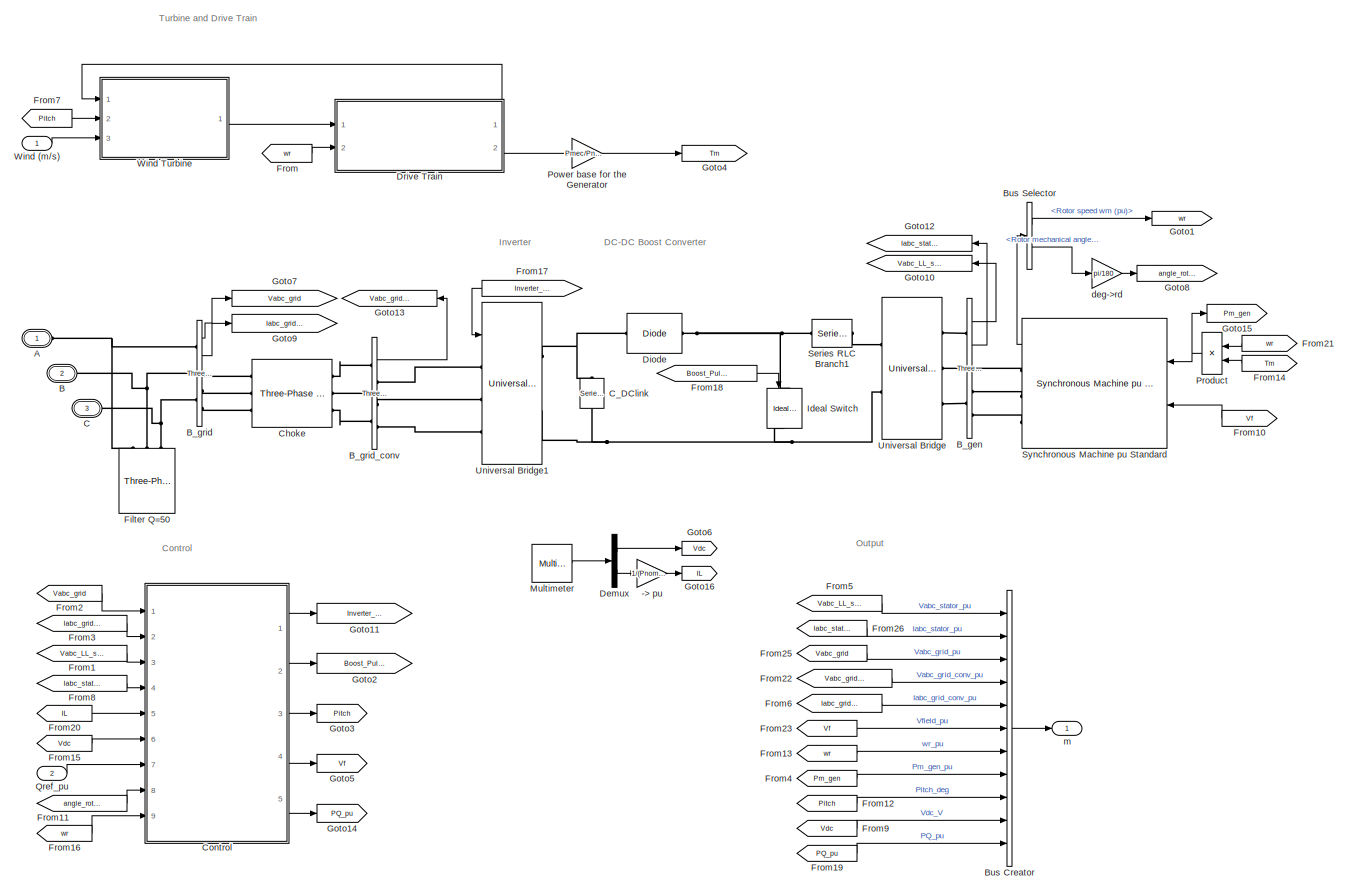
[diagram: Wind Turbine Type 4 - part 1/1, most of the canvas]
BLOCK [SubSystem] Wind Turbine Type 4
  LoadFcn = %find_system(gcs,'FollowLinks', 'on', 'LookUnderMasks', 'all');
  Ports = [2, 1, 0, 0, 0, 3]
  RequestExecContextInheritance = off
BLOCK [Gain] Wind Turbine Type 4/-> pu
  Gain = 1/(Pnom/(3*sqrt(2)/pi*Vnom_gen))
BLOCK [PMIOPort] Wind Turbine Type 4/A
  Side = Left
  Tag = PMCPort
BLOCK [PMIOPort] Wind Turbine Type 4/B
  Port = 2
  Side = Left
  Tag = PMCPort
BLOCK [Reference] Wind Turbine Type 4/B_gen  REF=powerlib/Measurements/Three-Phase
V-I Measurement
  Ports = [0, 2, 0, 0, 0, 3, 3]
  SourceBlock = powerlib/Measurements/Three-Phase\nV-I Measurement
  SourceType = Three-Phase VI Measurement
BLOCK [Reference] Wind Turbine Type 4/B_grid  REF=powerlib/Measurements/Three-Phase
V-I Measurement
  Ports = [0, 2, 0, 0, 0, 3, 3]
  SourceBlock = powerlib/Measurements/Three-Phase\nV-I Measurement
  SourceType = Three-Phase VI Measurement
BLOCK [Reference] Wind Turbine Type 4/B_grid_conv  REF=powerlib/Measurements/Three-Phase
V-I Measurement
  Ports = [0, 1, 0, 0, 0, 3, 3]
  SourceBlock = powerlib/Measurements/Three-Phase\nV-I Measurement
  SourceType = Three-Phase VI Measurement
BLOCK [BusCreator] Wind Turbine Type 4/Bus Creator
  DisplayOption = bar
  InheritFromInputs = on
  Inputs = 11
  Ports = [11, 1]
BLOCK [BusSelector] Wind Turbine Type 4/Bus Selector
  OutputSignals = Mechanical.Rotor speed  wm  (pu),Mechanical.Rotor mechanical angle  theta (deg)
  Ports = [1, 2]
BLOCK [PMIOPort] Wind Turbine Type 4/C
  Port = 3
  Side = Left
  Tag = PMCPort
BLOCK [Reference] Wind Turbine Type 4/C_DClink  REF=powerlib/Elements/Series RLC Branch
  Ports = [0, 0, 0, 0, 0, 1, 1]
  SourceBlock = powerlib/Elements/Series RLC Branch
  SourceType = Series RLC Branch
BLOCK [Reference] Wind Turbine Type 4/Choke   REF=powerlib/Elements/Three-Phase
Series RLC Branch
  AttributesFormatString = \n
  Ports = [0, 0, 0, 0, 0, 3, 3]
  SourceBlock = powerlib/Elements/Three-Phase\nSeries RLC Branch
  SourceType = Three-Phase Series RLC Branch
BLOCK [SubSystem] Wind Turbine Type 4/Control
  Ports = [9, 5]
  RequestExecContextInheritance = off
BLOCK [Outport] Wind Turbine Type 4/Control/Boost_Pulse
  IconDisplay = Port number
  Port = 2
BLOCK [BusCreator] Wind Turbine Type 4/Control/Bus Creator
  DisplayOption = bar
  InheritFromInputs = on
  Inputs = 2
  Ports = [2, 1]
BLOCK [SubSystem] Wind Turbine Type 4/Control/Excitation Control system
  Ports = [2, 1]
  RequestExecContextInheritance = off
BLOCK [SubSystem] Wind Turbine Type 4/Control/Excitation Control system/Discrete PI Controller
  DialogController = POWERSYS.PowerSysDialog
  Ports = [1, 1]
  RequestExecContextInheritance = off
BLOCK [DiscreteIntegrator] Wind Turbine Type 4/Control/Excitation Control system/Discrete PI Controller/Discrete-Time Integrator
  ICPrevOutput = DiscIntNeverNeededParam
  ICPrevScaledInput = DiscIntNeverNeededParam
  InitialCondition = Init
  LimitOutput = on
  LowerSaturationLimit = LowerLimit
  Ports = [1, 1]
  SampleTime = Ts
  UpperSaturationLimit = UpperLimit
BLOCK [Inport] Wind Turbine Type 4/Control/Excitation Control system/Discrete PI Controller/Error
  IconDisplay = Port number
  SampleTime = Ts
BLOCK [Gain] Wind Turbine Type 4/Control/Excitation Control system/Discrete PI Controller/Kp4
  Gain = Kp
  SampleTime = Ts
BLOCK [Gain] Wind Turbine Type 4/Control/Excitation Control system/Discrete PI Controller/Kp5
  Gain = Ki
  SampleTime = Ts
BLOCK [Outport] Wind Turbine Type 4/Control/Excitation Control system/Discrete PI Controller/Out
  IconDisplay = Port number
  InitialOutput = 0
  SampleTime = Ts
BLOCK [Saturate] Wind Turbine Type 4/Control/Excitation Control system/Discrete PI Controller/Saturation2
  InputPortMap = u0
  LowerLimit = LowerLimit
  Ports = [1, 1]
  SampleTime = Ts
  UpperLimit = UpperLimit
BLOCK [Sum] Wind Turbine Type 4/Control/Excitation Control system/Discrete PI Controller/Sum6
  Ports = [2, 1]
  SampleTime = Ts
BLOCK [ZeroOrderHold] Wind Turbine Type 4/Control/Excitation Control system/Discrete PI Controller/Zero-Order Hold
  SampleTime = Ts
BLOCK [Product] Wind Turbine Type 4/Control/Excitation Control system/Divide
  InputSameDT = off
  Inputs = */
  OutDataTypeStr = Inherit: Inherit via internal rule
  Ports = [2, 1]
  RndMeth = Floor
  SaturateOnIntegerOverflow = off
BLOCK [Inport] Wind Turbine Type 4/Control/Excitation Control system/Flux
  IconDisplay = Port number
BLOCK [Constant] Wind Turbine Type 4/Control/Excitation Control system/Flux_ref
BLOCK [Constant] Wind Turbine Type 4/Control/Excitation Control system/Flux_ref 
BLOCK [Sum] Wind Turbine Type 4/Control/Excitation Control system/Sum4
  IconShape = round
  Inputs = |+-
  Ports = [2, 1]
BLOCK [Switch] Wind Turbine Type 4/Control/Excitation Control system/Switch
  InputSameDT = off
  SaturateOnIntegerOverflow = off
  Threshold = 1
BLOCK [Outport] Wind Turbine Type 4/Control/Excitation Control system/Vf
  IconDisplay = Port number
BLOCK [Saturate] Wind Turbine Type 4/Control/Excitation Control system/avoid division by 0
  InputPortMap = u0
  LowerLimit = 1e-6
  Ports = [1, 1]
  UpperLimit = inf
BLOCK [Inport] Wind Turbine Type 4/Control/Excitation Control system/wr
  IconDisplay = Port number
  Port = 2
BLOCK [From] Wind Turbine Type 4/Control/From1
  CloseFcn = tagdialog Close
  GotoTag = Idq_gc
BLOCK [From] Wind Turbine Type 4/Control/From12
  CloseFcn = tagdialog Close
  GotoTag = wr
BLOCK [From] Wind Turbine Type 4/Control/From13
  CloseFcn = tagdialog Close
  GotoTag = Qmeas
BLOCK [From] Wind Turbine Type 4/Control/From18
  CloseFcn = tagdialog Close
  GotoTag = Vdq_grid
BLOCK [From] Wind Turbine Type 4/Control/From2
  CloseFcn = tagdialog Close
  GotoTag = Vdc_meas
BLOCK [From] Wind Turbine Type 4/Control/From22
  CloseFcn = tagdialog Close
  GotoTag = w_pu
BLOCK [From] Wind Turbine Type 4/Control/From23
  CloseFcn = tagdialog Close
  GotoTag = Pmeas
BLOCK [From] Wind Turbine Type 4/Control/From24
  CloseFcn = tagdialog Close
  GotoTag = Vmeas
BLOCK [From] Wind Turbine Type 4/Control/From3
  CloseFcn = tagdialog Close
  GotoTag = Theta_PLL
BLOCK [From] Wind Turbine Type 4/Control/From4
  CloseFcn = tagdialog Close
  GotoTag = Pmeas
BLOCK [From] Wind Turbine Type 4/Control/From5
  CloseFcn = tagdialog Close
  GotoTag = Flux
BLOCK [From] Wind Turbine Type 4/Control/From6
  CloseFcn = tagdialog Close
  GotoTag = wr
BLOCK [From] Wind Turbine Type 4/Control/From7
  CloseFcn = tagdialog Close
  GotoTag = Qmeas
BLOCK [From] Wind Turbine Type 4/Control/From8
  CloseFcn = tagdialog Close
  GotoTag = Qref
BLOCK [From] Wind Turbine Type 4/Control/From9
  CloseFcn = tagdialog Close
  GotoTag = IL
BLOCK [Goto] Wind Turbine Type 4/Control/Goto1
  GotoTag = Theta_PLL
BLOCK [Goto] Wind Turbine Type 4/Control/Goto10
  GotoTag = Idq_gc
BLOCK [Goto] Wind Turbine Type 4/Control/Goto12
  GotoTag = Flux
BLOCK [Goto] Wind Turbine Type 4/Control/Goto13
  GotoTag = w_pu
BLOCK [Goto] Wind Turbine Type 4/Control/Goto14
  GotoTag = Vmeas
BLOCK [Goto] Wind Turbine Type 4/Control/Goto15
  GotoTag = Pmeas
BLOCK [Goto] Wind Turbine Type 4/Control/Goto17
  GotoTag = Qmeas
BLOCK [Goto] Wind Turbine Type 4/Control/Goto2
  GotoTag = Vdc_meas
BLOCK [Goto] Wind Turbine Type 4/Control/Goto3
  GotoTag = IL
BLOCK [Goto] Wind Turbine Type 4/Control/Goto4
  GotoTag = wr
BLOCK [Goto] Wind Turbine Type 4/Control/Goto6
  GotoTag = Qref
BLOCK [Goto] Wind Turbine Type 4/Control/Goto9
  GotoTag = Vdq_grid
BLOCK [SubSystem] Wind Turbine Type 4/Control/Grid-side converter Control system
  Ports = [8, 1]
  RequestExecContextInheritance = off
BLOCK [Gain] Wind Turbine Type 4/Control/Grid-side converter Control system/->pu
  Gain = 1/Vdc_nom
  OutDataTypeStr = Inherit: Inherit via internal rule
  ParamDataTypeStr = Inherit: Inherit via internal rule
  SaturateOnIntegerOverflow = off
BLOCK [Saturate] Wind Turbine Type 4/Control/Grid-side converter Control system/0-Mod_index_max
  InputPortMap = u0
  LowerLimit = 0
  Ports = [1, 1]
  UpperLimit = Mod_index_max
BLOCK [Saturate] Wind Turbine Type 4/Control/Grid-side converter Control system/Avoid division by zero
  InputPortMap = u0
  LowerLimit = 1e-6
  Ports = [1, 1]
  UpperLimit = 1e6
BLOCK [Reference] Wind Turbine Type 4/Control/Grid-side converter Control system/Cartesian to Polar  REF=simulink_extras/Transformations/Cartesian to
Polar
  Ports = [2, 2]
  SourceBlock = simulink_extras/Transformations/Cartesian to\nPolar
  SourceType = Cart2Polar
BLOCK [Constant] Wind Turbine Type 4/Control/Grid-side converter Control system/Constant1
  Value = L_RL
BLOCK [Constant] Wind Turbine Type 4/Control/Grid-side converter Control system/Constant2
  Value = 0
BLOCK [Constant] Wind Turbine Type 4/Control/Grid-side converter Control system/Constant3
  Value = Ki_volt_reg
BLOCK [Constant] Wind Turbine Type 4/Control/Grid-side converter Control system/Constant4
  Value = L_RL
BLOCK [Constant] Wind Turbine Type 4/Control/Grid-side converter Control system/Constant5
  Value = R_RL
BLOCK [Constant] Wind Turbine Type 4/Control/Grid-side converter Control system/Constant6
  Value = R_RL
BLOCK [DataTypeConversion] Wind Turbine Type 4/Control/Grid-side converter Control system/Data Type Conversion2
  OutDataTypeStr = boolean
  RndMeth = Floor
  SaturateOnIntegerOverflow = off
BLOCK [Demux] Wind Turbine Type 4/Control/Grid-side converter Control system/Demux
  Outputs = 2
  Ports = [1, 2]
BLOCK [Demux] Wind Turbine Type 4/Control/Grid-side converter Control system/Demux3
  Outputs = 2
  Ports = [1, 2]
BLOCK [Demux] Wind Turbine Type 4/Control/Grid-side converter Control system/Demux4
  Outputs = 2
  Ports = [1, 2]
BLOCK [SubSystem] Wind Turbine Type 4/Control/Grid-side converter Control system/Discrete PI Controller
  DialogController = POWERSYS.PowerSysDialog
  Ports = [1, 1]
  RequestExecContextInheritance = off
BLOCK [DiscreteIntegrator] Wind Turbine Type 4/Control/Grid-side converter Control system/Discrete PI Controller/Discrete-Time Integrator
  ICPrevOutput = DiscIntNeverNeededParam
  ICPrevScaledInput = DiscIntNeverNeededParam
  InitialCondition = Init
  LimitOutput = on
  LowerSaturationLimit = LowerLimit
  Ports = [1, 1]
  SampleTime = Ts
  UpperSaturationLimit = UpperLimit
BLOCK [Inport] Wind Turbine Type 4/Control/Grid-side converter Control system/Discrete PI Controller/Error
  IconDisplay = Port number
  SampleTime = Ts
BLOCK [Gain] Wind Turbine Type 4/Control/Grid-side converter Control system/Discrete PI Controller/Kp4
  Gain = Kp
  SampleTime = Ts
BLOCK [Gain] Wind Turbine Type 4/Control/Grid-side converter Control system/Discrete PI Controller/Kp5
  Gain = Ki
  SampleTime = Ts
BLOCK [Outport] Wind Turbine Type 4/Control/Grid-side converter Control system/Discrete PI Controller/Out
  IconDisplay = Port number
  InitialOutput = 0
  SampleTime = Ts
BLOCK [Saturate] Wind Turbine Type 4/Control/Grid-side converter Control system/Discrete PI Controller/Saturation2
  InputPortMap = u0
  LowerLimit = LowerLimit
  Ports = [1, 1]
  SampleTime = Ts
  UpperLimit = UpperLimit
BLOCK [Sum] Wind Turbine Type 4/Control/Grid-side converter Control system/Discrete PI Controller/Sum6
  Ports = [2, 1]
  SampleTime = Ts
BLOCK [ZeroOrderHold] Wind Turbine Type 4/Control/Grid-side converter Control system/Discrete PI Controller/Zero-Order Hold
  SampleTime = Ts
BLOCK [SubSystem] Wind Turbine Type 4/Control/Grid-side converter Control system/Discrete PI Controller1
  DialogController = POWERSYS.PowerSysDialog
  Ports = [1, 1]
  RequestExecContextInheritance = off
BLOCK [DiscreteIntegrator] Wind Turbine Type 4/Control/Grid-side converter Control system/Discrete PI Controller1/Discrete-Time Integrator
  ICPrevOutput = DiscIntNeverNeededParam
  ICPrevScaledInput = DiscIntNeverNeededParam
  InitialCondition = Init
  LimitOutput = on
  LowerSaturationLimit = LowerLimit
  Ports = [1, 1]
  SampleTime = Ts
  UpperSaturationLimit = UpperLimit
BLOCK [Inport] Wind Turbine Type 4/Control/Grid-side converter Control system/Discrete PI Controller1/Error
  IconDisplay = Port number
  SampleTime = Ts
BLOCK [Gain] Wind Turbine Type 4/Control/Grid-side converter Control system/Discrete PI Controller1/Kp4
  Gain = Kp
  SampleTime = Ts
BLOCK [Gain] Wind Turbine Type 4/Control/Grid-side converter Control system/Discrete PI Controller1/Kp5
  Gain = Ki
  SampleTime = Ts
BLOCK [Outport] Wind Turbine Type 4/Control/Grid-side converter Control system/Discrete PI Controller1/Out
  IconDisplay = Port number
  InitialOutput = 0
  SampleTime = Ts
BLOCK [Saturate] Wind Turbine Type 4/Control/Grid-side converter Control system/Discrete PI Controller1/Saturation2
  InputPortMap = u0
  LowerLimit = LowerLimit
  Ports = [1, 1]
  SampleTime = Ts
  UpperLimit = UpperLimit
BLOCK [Sum] Wind Turbine Type 4/Control/Grid-side converter Control system/Discrete PI Controller1/Sum6
  Ports = [2, 1]
  SampleTime = Ts
BLOCK [ZeroOrderHold] Wind Turbine Type 4/Control/Grid-side converter Control system/Discrete PI Controller1/Zero-Order Hold
  SampleTime = Ts
BLOCK [DiscreteIntegrator] Wind Turbine Type 4/Control/Grid-side converter Control system/Discrete-Time Integrator1
  ICPrevOutput = DiscIntNeverNeededParam
  ICPrevScaledInput = DiscIntNeverNeededParam
  InitialCondition = 1
  InitialConditionSource = external
  LimitOutput = on
  LowerSaturationLimit = Var_reg_output_low_limit
  Ports = [2, 1]
  SampleTime = Ts
  UpperSaturationLimit = Var_reg_output_hi_limit
  gainval = Ki_var_reg
BLOCK [Reference] Wind Turbine Type 4/Control/Grid-side converter Control system/First-Order Filter  REF=powerlib_meascontrol/Filters/First-Order
Filter
  Ports = [1, 1]
  SourceBlock = powerlib_meascontrol/Filters/First-Order\nFilter
  SourceType = First-Order Filter
BLOCK [From] Wind Turbine Type 4/Control/Grid-side converter Control system/From1
  CloseFcn = tagdialog Close
  GotoTag = w_pu
BLOCK [From] Wind Turbine Type 4/Control/Grid-side converter Control system/From10
  CloseFcn = tagdialog Close
  GotoTag = id_ref
BLOCK [From] Wind Turbine Type 4/Control/Grid-side converter Control system/From2
  CloseFcn = tagdialog Close
  GotoTag = iq_ref
BLOCK [From] Wind Turbine Type 4/Control/Grid-side converter Control system/From3
  CloseFcn = tagdialog Close
  GotoTag = iq_ref
BLOCK [From] Wind Turbine Type 4/Control/Grid-side converter Control system/From4
  CloseFcn = tagdialog Close
  GotoTag = w_pu
BLOCK [From] Wind Turbine Type 4/Control/Grid-side converter Control system/From5
  CloseFcn = tagdialog Close
  GotoTag = id_ref
BLOCK [From] Wind Turbine Type 4/Control/Grid-side converter Control system/From6
  CloseFcn = tagdialog Close
  GotoTag = Vd
BLOCK [From] Wind Turbine Type 4/Control/Grid-side converter Control system/From7
  CloseFcn = tagdialog Close
  GotoTag = Vq
BLOCK [From] Wind Turbine Type 4/Control/Grid-side converter Control system/From8
  CloseFcn = tagdialog Close
  GotoTag = Vdc
BLOCK [Gain] Wind Turbine Type 4/Control/Grid-side converter Control system/Gain
  Gain = -1
BLOCK [Goto] Wind Turbine Type 4/Control/Grid-side converter Control system/Goto1
  GotoTag = w_pu
BLOCK [Goto] Wind Turbine Type 4/Control/Grid-side converter Control system/Goto13
  GotoTag = Vdc
BLOCK [Goto] Wind Turbine Type 4/Control/Grid-side converter Control system/Goto2
  GotoTag = iq_ref
BLOCK [Goto] Wind Turbine Type 4/Control/Grid-side converter Control system/Goto3
  GotoTag = id_ref
BLOCK [Goto] Wind Turbine Type 4/Control/Grid-side converter Control system/Goto4
  GotoTag = Vd
BLOCK [Goto] Wind Turbine Type 4/Control/Grid-side converter Control system/Goto5
  GotoTag = Vq
BLOCK [SubSystem] Wind Turbine Type 4/Control/Grid-side converter Control system/INT
  Ports = [7, 1]
  RequestExecContextInheritance = off
BLOCK [Gain] Wind Turbine Type 4/Control/Grid-side converter Control system/INT/Gain
  Gain = Ts* 0.5
BLOCK [Inport] Wind Turbine Type 4/Control/Grid-side converter Control system/INT/Hold
  IconDisplay = Port number
  Port = 5
BLOCK [UnitDelay] Wind Turbine Type 4/Control/Grid-side converter Control system/INT/IC = 0
  HasFrameUpgradeWarning = on
  SampleTime = Ts
BLOCK [UnitDelay] Wind Turbine Type 4/Control/Grid-side converter Control system/INT/IC = i_ic
  HasFrameUpgradeWarning = on
  SampleTime = Ts
BLOCK [Inport] Wind Turbine Type 4/Control/Grid-side converter Control system/INT/In
  IconDisplay = Port number
  Port = 3
BLOCK [Inport] Wind Turbine Type 4/Control/Grid-side converter Control system/INT/Ki
  IconDisplay = Port number
  Port = 4
BLOCK [Logic] Wind Turbine Type 4/Control/Grid-side converter Control system/INT/Logical Operator4
  Operator = OR
  Ports = [2, 1]
BLOCK [Inport] Wind Turbine Type 4/Control/Grid-side converter Control system/INT/Max
  IconDisplay = Port number
BLOCK [Inport] Wind Turbine Type 4/Control/Grid-side converter Control system/INT/Min
  IconDisplay = Port number
  Port = 2
BLOCK [MinMax] Wind Turbine Type 4/Control/Grid-side converter Control system/INT/MinMax
  Inputs = 2
  Ports = [2, 1]
BLOCK [MinMax] Wind Turbine Type 4/Control/Grid-side converter Control system/INT/MinMax1
  Function = max
  Inputs = 2
  Ports = [2, 1]
BLOCK [Outport] Wind Turbine Type 4/Control/Grid-side converter Control system/INT/Out
  IconDisplay = Port number
  InitialOutput = 0
BLOCK [Product] Wind Turbine Type 4/Control/Grid-side converter Control system/INT/Product
  InputSameDT = off
  Ports = [2, 1]
  RndMeth = Floor
BLOCK [Inport] Wind Turbine Type 4/Control/Grid-side converter Control system/INT/Reset
  IconDisplay = Port number
  Port = 6
BLOCK [Inport] Wind Turbine Type 4/Control/Grid-side converter Control system/INT/Reset Value
  IconDisplay = Port number
  Port = 7
BLOCK [SubSystem] Wind Turbine Type 4/Control/Grid-side converter Control system/INT/S6
  Ports = [3, 1]
  RequestExecContextInheritance = off
BLOCK [Outport] Wind Turbine Type 4/Control/Grid-side converter Control system/INT/S6/  
  IconDisplay = Port number
  InitialOutput = 0
BLOCK [Inport] Wind Turbine Type 4/Control/Grid-side converter Control system/INT/S6/In
  IconDisplay = Port number
  Port = 2
BLOCK [Inport] Wind Turbine Type 4/Control/Grid-side converter Control system/INT/S6/MAX
  IconDisplay = Port number
BLOCK [Inport] Wind Turbine Type 4/Control/Grid-side converter Control system/INT/S6/MIN
  IconDisplay = Port number
  Port = 3
BLOCK [MinMax] Wind Turbine Type 4/Control/Grid-side converter Control system/INT/S6/MinMax
  Function = max
  Inputs = 2
  Ports = [2, 1]
BLOCK [MinMax] Wind Turbine Type 4/Control/Grid-side converter Control system/INT/S6/MinMax1
  Inputs = 2
  Ports = [2, 1]
BLOCK [Sum] Wind Turbine Type 4/Control/Grid-side converter Control system/INT/Sum
  Ports = [2, 1]
BLOCK [Sum] Wind Turbine Type 4/Control/Grid-side converter Control system/INT/Sum1
  Ports = [2, 1]
BLOCK [Switch] Wind Turbine Type 4/Control/Grid-side converter Control system/INT/Switch2
  Threshold = 0.5
BLOCK [Switch] Wind Turbine Type 4/Control/Grid-side converter Control system/INT/Switch3
  Threshold = 0.5
BLOCK [Switch] Wind Turbine Type 4/Control/Grid-side converter Control system/INT/Switch7
  Threshold = 0.5
BLOCK [Inport] Wind Turbine Type 4/Control/Grid-side converter Control system/Idq_gc
  IconDisplay = Port number
BLOCK [Constant] Wind Turbine Type 4/Control/Grid-side converter Control system/Imax^2
  Value = Imax_grid_conv^2
BLOCK [Constant] Wind Turbine Type 4/Control/Grid-side converter Control system/K
  Value = Vnom*2*sqrt(2/3)
BLOCK [Math] Wind Turbine Type 4/Control/Grid-side converter Control system/Math Function
  Operator = square
  Ports = [1, 1]
BLOCK [Math] Wind Turbine Type 4/Control/Grid-side converter Control system/Math Function1
  Operator = sqrt
  Ports = [1, 1]
BLOCK [Mux] Wind Turbine Type 4/Control/Grid-side converter Control system/Mux
  DisplayOption = bar
  Inputs = 3
  Ports = [3, 1]
BLOCK [Mux] Wind Turbine Type 4/Control/Grid-side converter Control system/Mux2
  DisplayOption = bar
  Inputs = 2
  Ports = [2, 1]
BLOCK [Reference] Wind Turbine Type 4/Control/Grid-side converter Control system/Polar to Cartesian  REF=simulink_extras/Transformations/Polar to
Cartesian
  Ports = [2, 2]
  SourceBlock = simulink_extras/Transformations/Polar to\nCartesian
  SourceType = Polar2Cart
BLOCK [Product] Wind Turbine Type 4/Control/Grid-side converter Control system/Product
  Inputs = 3
  Ports = [3, 1]
  RndMeth = Floor
BLOCK [Product] Wind Turbine Type 4/Control/Grid-side converter Control system/Product1
  Inputs = 3
  Ports = [3, 1]
  RndMeth = Floor
BLOCK [Product] Wind Turbine Type 4/Control/Grid-side converter Control system/Product2
  Ports = [2, 1]
  RndMeth = Floor
BLOCK [Product] Wind Turbine Type 4/Control/Grid-side converter Control system/Product3
  Ports = [2, 1]
  RndMeth = Floor
BLOCK [Product] Wind Turbine Type 4/Control/Grid-side converter Control system/Product4
  Inputs = **/
  Ports = [3, 1]
  RndMeth = Floor
BLOCK [Inport] Wind Turbine Type 4/Control/Grid-side converter Control system/Qmeas
  IconDisplay = Port number
  Port = 6
BLOCK [Inport] Wind Turbine Type 4/Control/Grid-side converter Control system/Qref
  IconDisplay = Port number
  Port = 5
BLOCK [Sum] Wind Turbine Type 4/Control/Grid-side converter Control system/Sum
  IconShape = round
  Inputs = |+-
  Ports = [2, 1]
BLOCK [Sum] Wind Turbine Type 4/Control/Grid-side converter Control system/Sum1
  IconShape = round
  Inputs = |-+
  Ports = [2, 1]
BLOCK [Sum] Wind Turbine Type 4/Control/Grid-side converter Control system/Sum2
  IconShape = round
  Inputs = |+-
  Ports = [2, 1]
BLOCK [Sum] Wind Turbine Type 4/Control/Grid-side converter Control system/Sum3
  IconShape = round
  Inputs = |+-
  Ports = [2, 1]
BLOCK [Sum] Wind Turbine Type 4/Control/Grid-side converter Control system/Sum4
  IconShape = round
  Inputs = -+|
  Ports = [2, 1]
BLOCK [Sum] Wind Turbine Type 4/Control/Grid-side converter Control system/Sum5
  IconShape = round
  Inputs = ||++-
  Ports = [3, 1]
BLOCK [Sum] Wind Turbine Type 4/Control/Grid-side converter Control system/Sum6
  IconShape = round
  Inputs = |+-
  Ports = [2, 1]
BLOCK [Sum] Wind Turbine Type 4/Control/Grid-side converter Control system/Sum7
  IconShape = round
  Inputs = |+-
  Ports = [2, 1]
BLOCK [Sum] Wind Turbine Type 4/Control/Grid-side converter Control system/Sum8
  IconShape = round
  Inputs = |--+
  Ports = [3, 1]
BLOCK [Sum] Wind Turbine Type 4/Control/Grid-side converter Control system/Sum9
  IconShape = round
  Inputs = |-+
  Ports = [2, 1]
BLOCK [Inport] Wind Turbine Type 4/Control/Grid-side converter Control system/Theta_PLL
  IconDisplay = Port number
  Port = 8
BLOCK [Outport] Wind Turbine Type 4/Control/Grid-side converter Control system/Uctrl_inverter
  IconDisplay = Port number
BLOCK [UnitDelay] Wind Turbine Type 4/Control/Grid-side converter Control system/Unit Delay1
  HasFrameUpgradeWarning = on
  InitialCondition = 1
  SampleTime = Ts
BLOCK [Constant] Wind Turbine Type 4/Control/Grid-side converter Control system/V0
  Value = 0
BLOCK [Inport] Wind Turbine Type 4/Control/Grid-side converter Control system/Vdc
  IconDisplay = Port number
  Port = 4
BLOCK [Constant] Wind Turbine Type 4/Control/Grid-side converter Control system/Vdc_ref (V)
  Value = Vdc_nom
BLOCK [Inport] Wind Turbine Type 4/Control/Grid-side converter Control system/Vdq_grid
  IconDisplay = Port number
  Port = 3
BLOCK [Inport] Wind Turbine Type 4/Control/Grid-side converter Control system/Vmeas
  IconDisplay = Port number
  Port = 7
BLOCK [Reference] Wind Turbine Type 4/Control/Grid-side converter Control system/dq0 to abc  REF=powerlib_meascontrol/Transformations/dq0 to abc
  Ports = [2, 1]
  SourceBlock = powerlib_meascontrol/Transformations/dq0 to abc
  SourceType = dq0 to abc Transformation
BLOCK [Inport] Wind Turbine Type 4/Control/Grid-side converter Control system/w_pu
  IconDisplay = Port number
  Port = 2
BLOCK [Inport] Wind Turbine Type 4/Control/IL
  IconDisplay = Port number
  Port = 5
BLOCK [Inport] Wind Turbine Type 4/Control/Iabc_grid_conv
  IconDisplay = Port number
  Port = 2
BLOCK [Inport] Wind Turbine Type 4/Control/Iabc_stator
  IconDisplay = Port number
  Port = 4
BLOCK [Outport] Wind Turbine Type 4/Control/Inverter_Pulses
  IconDisplay = Port number
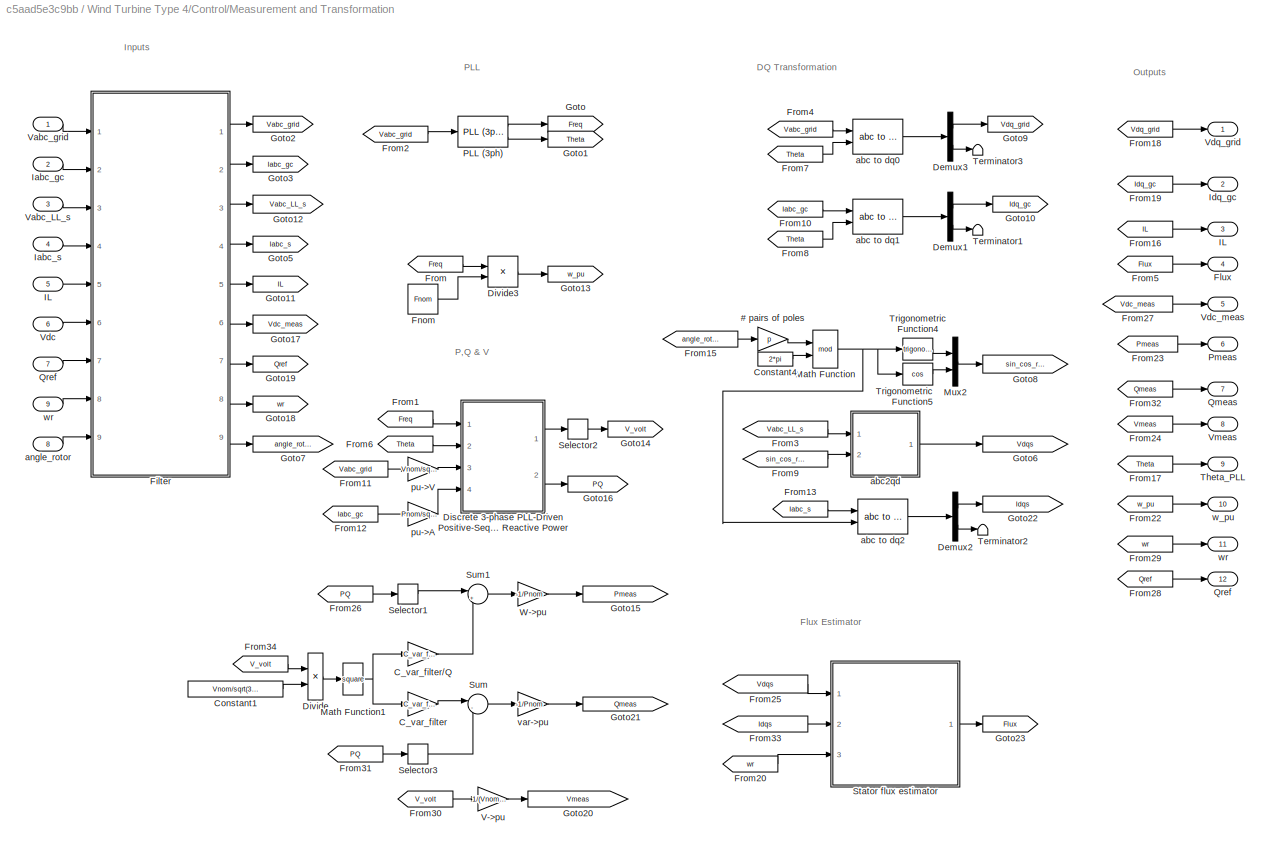
BLOCK [SubSystem] Wind Turbine Type 4/Control/Measurement and Transformation
  Ports = [9, 12]
  RequestExecContextInheritance = off
BLOCK [Gain] Wind Turbine Type 4/Control/Measurement and Transformation/# pairs of poles
  Gain = p
BLOCK [Gain] Wind Turbine Type 4/Control/Measurement and Transformation/C_var_filter
  Gain = C_var_filter
BLOCK [Gain] Wind Turbine Type 4/Control/Measurement and Transformation/C_var_filter//Q
  Gain = C_var_filter/Q_filter
BLOCK [Constant] Wind Turbine Type 4/Control/Measurement and Transformation/Constant1
  Value = Vnom/sqrt(3)*sqrt(2)
BLOCK [Constant] Wind Turbine Type 4/Control/Measurement and Transformation/Constant4
  Value = 2*pi
BLOCK [Demux] Wind Turbine Type 4/Control/Measurement and Transformation/Demux1
  Outputs = [2 1]
  Ports = [1, 2]
BLOCK [Demux] Wind Turbine Type 4/Control/Measurement and Transformation/Demux2
  Outputs = [2 1]
  Ports = [1, 2]
BLOCK [Demux] Wind Turbine Type 4/Control/Measurement and Transformation/Demux3
  Outputs = [2 1]
  Ports = [1, 2]
BLOCK [SubSystem] Wind Turbine Type 4/Control/Measurement and Transformation/Discrete 3-phase PLL-Driven Positive-Sequence Active & Reactive Power
  OpenFcn = power_openblockproxy();
  Ports = [4, 2]
  RequestExecContextInheritance = off
BLOCK [Gain] Wind Turbine Type 4/Control/Measurement and Transformation/Discrete 3-phase PLL-Driven Positive-Sequence Active & Reactive Power/Deg->Rad
  Gain = pi/180
BLOCK [SubSystem] Wind Turbine Type 4/Control/Measurement and Transformation/Discrete 3-phase PLL-Driven Positive-Sequence Active & Reactive Power/Discrete 3-phase PLL-Driven Positive-Sequence Fundamental Value
  OpenFcn = power_openblockproxy();
  Ports = [3, 2]
  RequestExecContextInheritance = off
BLOCK [Reference] Wind Turbine Type 4/Control/Measurement and Transformation/Discrete 3-phase PLL-Driven Positive-Sequence Active & Reactive Power/Discrete 3-phase PLL-Driven Positive-Sequence Fundamental Value/Cartesian to Polar  REF=simulink_extras/Transformations/Cartesian to
Polar
  Ports = [2, 2]
  SourceBlock = simulink_extras/Transformations/Cartesian to\nPolar
  SourceType = Cart2Polar
BLOCK [Demux] Wind Turbine Type 4/Control/Measurement and Transformation/Discrete 3-phase PLL-Driven Positive-Sequence Active & Reactive Power/Discrete 3-phase PLL-Driven Positive-Sequence Fundamental Value/Demux
  Outputs = 3
  Ports = [1, 3]
BLOCK [SubSystem] Wind Turbine Type 4/Control/Measurement and Transformation/Discrete 3-phase PLL-Driven Positive-Sequence Active & Reactive Power/Discrete 3-phase PLL-Driven Positive-Sequence Fundamental Value/Discrete Variable Frequency Mean value1
  OpenFcn = power_openblockproxy();
  Ports = [2, 1]
  RequestExecContextInheritance = off
BLOCK [SubSystem] Wind Turbine Type 4/Control/Measurement and Transformation/Discrete 3-phase PLL-Driven Positive-Sequence Active & Reactive Power/Discrete 3-phase PLL-Driven Positive-Sequence Fundamental Value/Discrete Variable Frequency Mean value1/Correction subsystem
  Ports = [3, 1]
  RequestExecContextInheritance = off
BLOCK [Inport] Wind Turbine Type 4/Control/Measurement and Transformation/Discrete 3-phase PLL-Driven Positive-Sequence Active & Reactive Power/Discrete 3-phase PLL-Driven Positive-Sequence Fundamental Value/Discrete Variable Frequency Mean value1/Correction subsystem/F
  IconDisplay = Port number
  Port = 2
BLOCK [Gain] Wind Turbine Type 4/Control/Measurement and Transformation/Discrete 3-phase PLL-Driven Positive-Sequence Active & Reactive Power/Discrete 3-phase PLL-Driven Positive-Sequence Fundamental Value/Discrete Variable Frequency Mean value1/Correction subsystem/Gain1
  Gain = 0.5
BLOCK [Inport] Wind Turbine Type 4/Control/Measurement and Transformation/Discrete 3-phase PLL-Driven Positive-Sequence Active & Reactive Power/Discrete 3-phase PLL-Driven Positive-Sequence Fundamental Value/Discrete Variable Frequency Mean value1/Correction subsystem/In
  IconDisplay = Port number
  Port = 3
BLOCK [Inport] Wind Turbine Type 4/Control/Measurement and Transformation/Discrete 3-phase PLL-Driven Positive-Sequence Active & Reactive Power/Discrete 3-phase PLL-Driven Positive-Sequence Fundamental Value/Discrete Variable Frequency Mean value1/Correction subsystem/N
  IconDisplay = Port number
BLOCK [Outport] Wind Turbine Type 4/Control/Measurement and Transformation/Discrete 3-phase PLL-Driven Positive-Sequence Active & Reactive Power/Discrete 3-phase PLL-Driven Positive-Sequence Fundamental Value/Discrete Variable Frequency Mean value1/Correction subsystem/Out
  IconDisplay = Port number
BLOCK [Product] Wind Turbine Type 4/Control/Measurement and Transformation/Discrete 3-phase PLL-Driven Positive-Sequence Active & Reactive Power/Discrete 3-phase PLL-Driven Positive-Sequence Fundamental Value/Discrete Variable Frequency Mean value1/Correction subsystem/Product2
  Inputs = */
  Ports = [2, 1]
  RndMeth = Floor
BLOCK [Product] Wind Turbine Type 4/Control/Measurement and Transformation/Discrete 3-phase PLL-Driven Positive-Sequence Active & Reactive Power/Discrete 3-phase PLL-Driven Positive-Sequence Fundamental Value/Discrete Variable Frequency Mean value1/Correction subsystem/Product4
  Inputs = **
  Ports = [2, 1]
  RndMeth = Floor
BLOCK [Product] Wind Turbine Type 4/Control/Measurement and Transformation/Discrete 3-phase PLL-Driven Positive-Sequence Active & Reactive Power/Discrete 3-phase PLL-Driven Positive-Sequence Fundamental Value/Discrete Variable Frequency Mean value1/Correction subsystem/Product5
  Inputs = **
  Ports = [2, 1]
  RndMeth = Floor
BLOCK [Sum] Wind Turbine Type 4/Control/Measurement and Transformation/Discrete 3-phase PLL-Driven Positive-Sequence Active & Reactive Power/Discrete 3-phase PLL-Driven Positive-Sequence Fundamental Value/Discrete Variable Frequency Mean value1/Correction subsystem/Sum1
  Inputs = +-
  Ports = [2, 1]
BLOCK [Sum] Wind Turbine Type 4/Control/Measurement and Transformation/Discrete 3-phase PLL-Driven Positive-Sequence Active & Reactive Power/Discrete 3-phase PLL-Driven Positive-Sequence Fundamental Value/Discrete Variable Frequency Mean value1/Correction subsystem/Sum4
  Ports = [2, 1]
BLOCK [Sum] Wind Turbine Type 4/Control/Measurement and Transformation/Discrete 3-phase PLL-Driven Positive-Sequence Active & Reactive Power/Discrete 3-phase PLL-Driven Positive-Sequence Fundamental Value/Discrete Variable Frequency Mean value1/Correction subsystem/Sum5
  Inputs = +-
  Ports = [2, 1]
BLOCK [UnitDelay] Wind Turbine Type 4/Control/Measurement and Transformation/Discrete 3-phase PLL-Driven Positive-Sequence Active & Reactive Power/Discrete 3-phase PLL-Driven Positive-Sequence Fundamental Value/Discrete Variable Frequency Mean value1/Correction subsystem/Unit Delay
  HasFrameUpgradeWarning = on
  SampleTime = Ts
BLOCK [SubSystem] Wind Turbine Type 4/Control/Measurement and Transformation/Discrete 3-phase PLL-Driven Positive-Sequence Active & Reactive Power/Discrete 3-phase PLL-Driven Positive-Sequence Fundamental Value/Discrete Variable Frequency Mean value1/Discrete Variable Transport Delay
  Ports = [2, 1]
  RequestExecContextInheritance = off
BLOCK [Inport] Wind Turbine Type 4/Control/Measurement and Transformation/Discrete 3-phase PLL-Driven Positive-Sequence Active & Reactive Power/Discrete 3-phase PLL-Driven Positive-Sequence Fundamental Value/Discrete Variable Frequency Mean value1/Discrete Variable Transport Delay/D
  IconDisplay = Port number
  Port = 2
BLOCK [Inport] Wind Turbine Type 4/Control/Measurement and Transformation/Discrete 3-phase PLL-Driven Positive-Sequence Active & Reactive Power/Discrete 3-phase PLL-Driven Positive-Sequence Fundamental Value/Discrete Variable Frequency Mean value1/Discrete Variable Transport Delay/In
  IconDisplay = Port number
BLOCK [Outport] Wind Turbine Type 4/Control/Measurement and Transformation/Discrete 3-phase PLL-Driven Positive-Sequence Active & Reactive Power/Discrete 3-phase PLL-Driven Positive-Sequence Fundamental Value/Discrete Variable Frequency Mean value1/Discrete Variable Transport Delay/Out
  IconDisplay = Port number
BLOCK [S-Function] Wind Turbine Type 4/Control/Measurement and Transformation/Discrete 3-phase PLL-Driven Positive-Sequence Active & Reactive Power/Discrete 3-phase PLL-Driven Positive-Sequence Fundamental Value/Discrete Variable Frequency Mean value1/Discrete Variable Transport Delay/S-Function 
  EnableBusSupport = off
  FunctionName = discreteVariableTransportDelay
  Parameters = MaxDelay,Ts,InitialValue
  Ports = [2, 1]
  SFunctionDeploymentMode = off
BLOCK [Inport] Wind Turbine Type 4/Control/Measurement and Transformation/Discrete 3-phase PLL-Driven Positive-Sequence Active & Reactive Power/Discrete 3-phase PLL-Driven Positive-Sequence Fundamental Value/Discrete Variable Frequency Mean value1/Freq
  IconDisplay = Port number
  PortDimensions = 1
BLOCK [Gain] Wind Turbine Type 4/Control/Measurement and Transformation/Discrete 3-phase PLL-Driven Positive-Sequence Active & Reactive Power/Discrete 3-phase PLL-Driven Positive-Sequence Fundamental Value/Discrete Variable Frequency Mean value1/Gain
  Gain = Ts
BLOCK [Inport] Wind Turbine Type 4/Control/Measurement and Transformation/Discrete 3-phase PLL-Driven Positive-Sequence Active & Reactive Power/Discrete 3-phase PLL-Driven Positive-Sequence Fundamental Value/Discrete Variable Frequency Mean value1/In
  IconDisplay = Port number
  Port = 2
  PortDimensions = 1
BLOCK [DiscreteIntegrator] Wind Turbine Type 4/Control/Measurement and Transformation/Discrete 3-phase PLL-Driven Positive-Sequence Active & Reactive Power/Discrete 3-phase PLL-Driven Positive-Sequence Fundamental Value/Discrete Variable Frequency Mean value1/Integ4
  ICPrevOutput = DiscIntNeverNeededParam
  ICPrevScaledInput = DiscIntNeverNeededParam
  IntegratorMethod = Integration: Trapezoidal
  Ports = [1, 1]
  SampleTime = Ts
BLOCK [Outport] Wind Turbine Type 4/Control/Measurement and Transformation/Discrete 3-phase PLL-Driven Positive-Sequence Active & Reactive Power/Discrete 3-phase PLL-Driven Positive-Sequence Fundamental Value/Discrete Variable Frequency Mean value1/Mean
  IconDisplay = Port number
BLOCK [Fcn] Wind Turbine Type 4/Control/Measurement and Transformation/Discrete 3-phase PLL-Driven Positive-Sequence Active & Reactive Power/Discrete 3-phase PLL-Driven Positive-Sequence Fundamental Value/Discrete Variable Frequency Mean value1/Number of samples per cycle
  Expr = 1/u[1]/Ts
BLOCK [Product] Wind Turbine Type 4/Control/Measurement and Transformation/Discrete 3-phase PLL-Driven Positive-Sequence Active & Reactive Power/Discrete 3-phase PLL-Driven Positive-Sequence Fundamental Value/Discrete Variable Frequency Mean value1/Product
  Ports = [2, 1]
  RndMeth = Floor
BLOCK [Rounding] Wind Turbine Type 4/Control/Measurement and Transformation/Discrete 3-phase PLL-Driven Positive-Sequence Active & Reactive Power/Discrete 3-phase PLL-Driven Positive-Sequence Fundamental Value/Discrete Variable Frequency Mean value1/Rounding Function
  Operator = ceil
BLOCK [Step] Wind Turbine Type 4/Control/Measurement and Transformation/Discrete 3-phase PLL-Driven Positive-Sequence Active & Reactive Power/Discrete 3-phase PLL-Driven Positive-Sequence Fundamental Value/Discrete Variable Frequency Mean value1/Step
  SampleTime = Ts
  Time = 1/Finit
BLOCK [Sum] Wind Turbine Type 4/Control/Measurement and Transformation/Discrete 3-phase PLL-Driven Positive-Sequence Active & Reactive Power/Discrete 3-phase PLL-Driven Positive-Sequence Fundamental Value/Discrete Variable Frequency Mean value1/Sum5
  Ports = [2, 1]
BLOCK [Sum] Wind Turbine Type 4/Control/Measurement and Transformation/Discrete 3-phase PLL-Driven Positive-Sequence Active & Reactive Power/Discrete 3-phase PLL-Driven Positive-Sequence Fundamental Value/Discrete Variable Frequency Mean value1/Sum7
  Inputs = -+
  Ports = [2, 1]
BLOCK [Switch] Wind Turbine Type 4/Control/Measurement and Transformation/Discrete 3-phase PLL-Driven Positive-Sequence Active & Reactive Power/Discrete 3-phase PLL-Driven Positive-Sequence Fundamental Value/Discrete Variable Frequency Mean value1/Switch
  SaturateOnIntegerOverflow = off
  Threshold = 0.5
BLOCK [Saturate] Wind Turbine Type 4/Control/Measurement and Transformation/Discrete 3-phase PLL-Driven Positive-Sequence Active & Reactive Power/Discrete 3-phase PLL-Driven Positive-Sequence Fundamental Value/Discrete Variable Frequency Mean value1/To avoid division by zero
  InputPortMap = u0
  LowerLimit = 1e-6
  Ports = [1, 1]
  UpperLimit = 1e6
BLOCK [UnitDelay] Wind Turbine Type 4/Control/Measurement and Transformation/Discrete 3-phase PLL-Driven Positive-Sequence Active & Reactive Power/Discrete 3-phase PLL-Driven Positive-Sequence Fundamental Value/Discrete Variable Frequency Mean value1/Unit Delay
  HasFrameUpgradeWarning = on
  InitialCondition = Vinit
  SampleTime = Ts
BLOCK [SubSystem] Wind Turbine Type 4/Control/Measurement and Transformation/Discrete 3-phase PLL-Driven Positive-Sequence Active & Reactive Power/Discrete 3-phase PLL-Driven Positive-Sequence Fundamental Value/Discrete Variable Frequency Mean value2
  OpenFcn = power_openblockproxy();
  Ports = [2, 1]
  RequestExecContextInheritance = off
BLOCK [SubSystem] Wind Turbine Type 4/Control/Measurement and Transformation/Discrete 3-phase PLL-Driven Positive-Sequence Active & Reactive Power/Discrete 3-phase PLL-Driven Positive-Sequence Fundamental Value/Discrete Variable Frequency Mean value2/Correction subsystem
  Ports = [3, 1]
  RequestExecContextInheritance = off
BLOCK [Inport] Wind Turbine Type 4/Control/Measurement and Transformation/Discrete 3-phase PLL-Driven Positive-Sequence Active & Reactive Power/Discrete 3-phase PLL-Driven Positive-Sequence Fundamental Value/Discrete Variable Frequency Mean value2/Correction subsystem/F
  IconDisplay = Port number
  Port = 2
BLOCK [Gain] Wind Turbine Type 4/Control/Measurement and Transformation/Discrete 3-phase PLL-Driven Positive-Sequence Active & Reactive Power/Discrete 3-phase PLL-Driven Positive-Sequence Fundamental Value/Discrete Variable Frequency Mean value2/Correction subsystem/Gain1
  Gain = 0.5
BLOCK [Inport] Wind Turbine Type 4/Control/Measurement and Transformation/Discrete 3-phase PLL-Driven Positive-Sequence Active & Reactive Power/Discrete 3-phase PLL-Driven Positive-Sequence Fundamental Value/Discrete Variable Frequency Mean value2/Correction subsystem/In
  IconDisplay = Port number
  Port = 3
BLOCK [Inport] Wind Turbine Type 4/Control/Measurement and Transformation/Discrete 3-phase PLL-Driven Positive-Sequence Active & Reactive Power/Discrete 3-phase PLL-Driven Positive-Sequence Fundamental Value/Discrete Variable Frequency Mean value2/Correction subsystem/N
  IconDisplay = Port number
BLOCK [Outport] Wind Turbine Type 4/Control/Measurement and Transformation/Discrete 3-phase PLL-Driven Positive-Sequence Active & Reactive Power/Discrete 3-phase PLL-Driven Positive-Sequence Fundamental Value/Discrete Variable Frequency Mean value2/Correction subsystem/Out
  IconDisplay = Port number
BLOCK [Product] Wind Turbine Type 4/Control/Measurement and Transformation/Discrete 3-phase PLL-Driven Positive-Sequence Active & Reactive Power/Discrete 3-phase PLL-Driven Positive-Sequence Fundamental Value/Discrete Variable Frequency Mean value2/Correction subsystem/Product2
  Inputs = */
  Ports = [2, 1]
  RndMeth = Floor
BLOCK [Product] Wind Turbine Type 4/Control/Measurement and Transformation/Discrete 3-phase PLL-Driven Positive-Sequence Active & Reactive Power/Discrete 3-phase PLL-Driven Positive-Sequence Fundamental Value/Discrete Variable Frequency Mean value2/Correction subsystem/Product4
  Inputs = **
  Ports = [2, 1]
  RndMeth = Floor
BLOCK [Product] Wind Turbine Type 4/Control/Measurement and Transformation/Discrete 3-phase PLL-Driven Positive-Sequence Active & Reactive Power/Discrete 3-phase PLL-Driven Positive-Sequence Fundamental Value/Discrete Variable Frequency Mean value2/Correction subsystem/Product5
  Inputs = **
  Ports = [2, 1]
  RndMeth = Floor
BLOCK [Sum] Wind Turbine Type 4/Control/Measurement and Transformation/Discrete 3-phase PLL-Driven Positive-Sequence Active & Reactive Power/Discrete 3-phase PLL-Driven Positive-Sequence Fundamental Value/Discrete Variable Frequency Mean value2/Correction subsystem/Sum1
  Inputs = +-
  Ports = [2, 1]
BLOCK [Sum] Wind Turbine Type 4/Control/Measurement and Transformation/Discrete 3-phase PLL-Driven Positive-Sequence Active & Reactive Power/Discrete 3-phase PLL-Driven Positive-Sequence Fundamental Value/Discrete Variable Frequency Mean value2/Correction subsystem/Sum4
  Ports = [2, 1]
BLOCK [Sum] Wind Turbine Type 4/Control/Measurement and Transformation/Discrete 3-phase PLL-Driven Positive-Sequence Active & Reactive Power/Discrete 3-phase PLL-Driven Positive-Sequence Fundamental Value/Discrete Variable Frequency Mean value2/Correction subsystem/Sum5
  Inputs = +-
  Ports = [2, 1]
BLOCK [UnitDelay] Wind Turbine Type 4/Control/Measurement and Transformation/Discrete 3-phase PLL-Driven Positive-Sequence Active & Reactive Power/Discrete 3-phase PLL-Driven Positive-Sequence Fundamental Value/Discrete Variable Frequency Mean value2/Correction subsystem/Unit Delay
  HasFrameUpgradeWarning = on
  SampleTime = Ts
BLOCK [SubSystem] Wind Turbine Type 4/Control/Measurement and Transformation/Discrete 3-phase PLL-Driven Positive-Sequence Active & Reactive Power/Discrete 3-phase PLL-Driven Positive-Sequence Fundamental Value/Discrete Variable Frequency Mean value2/Discrete Variable Transport Delay
  Ports = [2, 1]
  RequestExecContextInheritance = off
BLOCK [Inport] Wind Turbine Type 4/Control/Measurement and Transformation/Discrete 3-phase PLL-Driven Positive-Sequence Active & Reactive Power/Discrete 3-phase PLL-Driven Positive-Sequence Fundamental Value/Discrete Variable Frequency Mean value2/Discrete Variable Transport Delay/D
  IconDisplay = Port number
  Port = 2
BLOCK [Inport] Wind Turbine Type 4/Control/Measurement and Transformation/Discrete 3-phase PLL-Driven Positive-Sequence Active & Reactive Power/Discrete 3-phase PLL-Driven Positive-Sequence Fundamental Value/Discrete Variable Frequency Mean value2/Discrete Variable Transport Delay/In
  IconDisplay = Port number
BLOCK [Outport] Wind Turbine Type 4/Control/Measurement and Transformation/Discrete 3-phase PLL-Driven Positive-Sequence Active & Reactive Power/Discrete 3-phase PLL-Driven Positive-Sequence Fundamental Value/Discrete Variable Frequency Mean value2/Discrete Variable Transport Delay/Out
  IconDisplay = Port number
BLOCK [S-Function] Wind Turbine Type 4/Control/Measurement and Transformation/Discrete 3-phase PLL-Driven Positive-Sequence Active & Reactive Power/Discrete 3-phase PLL-Driven Positive-Sequence Fundamental Value/Discrete Variable Frequency Mean value2/Discrete Variable Transport Delay/S-Function 
  EnableBusSupport = off
  FunctionName = discreteVariableTransportDelay
  Parameters = MaxDelay,Ts,InitialValue
  Ports = [2, 1]
  SFunctionDeploymentMode = off
BLOCK [Inport] Wind Turbine Type 4/Control/Measurement and Transformation/Discrete 3-phase PLL-Driven Positive-Sequence Active & Reactive Power/Discrete 3-phase PLL-Driven Positive-Sequence Fundamental Value/Discrete Variable Frequency Mean value2/Freq
  IconDisplay = Port number
  PortDimensions = 1
BLOCK [Gain] Wind Turbine Type 4/Control/Measurement and Transformation/Discrete 3-phase PLL-Driven Positive-Sequence Active & Reactive Power/Discrete 3-phase PLL-Driven Positive-Sequence Fundamental Value/Discrete Variable Frequency Mean value2/Gain
  Gain = Ts
BLOCK [Inport] Wind Turbine Type 4/Control/Measurement and Transformation/Discrete 3-phase PLL-Driven Positive-Sequence Active & Reactive Power/Discrete 3-phase PLL-Driven Positive-Sequence Fundamental Value/Discrete Variable Frequency Mean value2/In
  IconDisplay = Port number
  Port = 2
  PortDimensions = 1
BLOCK [DiscreteIntegrator] Wind Turbine Type 4/Control/Measurement and Transformation/Discrete 3-phase PLL-Driven Positive-Sequence Active & Reactive Power/Discrete 3-phase PLL-Driven Positive-Sequence Fundamental Value/Discrete Variable Frequency Mean value2/Integ4
  ICPrevOutput = DiscIntNeverNeededParam
  ICPrevScaledInput = DiscIntNeverNeededParam
  IntegratorMethod = Integration: Trapezoidal
  Ports = [1, 1]
  SampleTime = Ts
BLOCK [Outport] Wind Turbine Type 4/Control/Measurement and Transformation/Discrete 3-phase PLL-Driven Positive-Sequence Active & Reactive Power/Discrete 3-phase PLL-Driven Positive-Sequence Fundamental Value/Discrete Variable Frequency Mean value2/Mean
  IconDisplay = Port number
BLOCK [Fcn] Wind Turbine Type 4/Control/Measurement and Transformation/Discrete 3-phase PLL-Driven Positive-Sequence Active & Reactive Power/Discrete 3-phase PLL-Driven Positive-Sequence Fundamental Value/Discrete Variable Frequency Mean value2/Number of samples per cycle
  Expr = 1/u[1]/Ts
BLOCK [Product] Wind Turbine Type 4/Control/Measurement and Transformation/Discrete 3-phase PLL-Driven Positive-Sequence Active & Reactive Power/Discrete 3-phase PLL-Driven Positive-Sequence Fundamental Value/Discrete Variable Frequency Mean value2/Product
  Ports = [2, 1]
  RndMeth = Floor
BLOCK [Rounding] Wind Turbine Type 4/Control/Measurement and Transformation/Discrete 3-phase PLL-Driven Positive-Sequence Active & Reactive Power/Discrete 3-phase PLL-Driven Positive-Sequence Fundamental Value/Discrete Variable Frequency Mean value2/Rounding Function
  Operator = ceil
BLOCK [Step] Wind Turbine Type 4/Control/Measurement and Transformation/Discrete 3-phase PLL-Driven Positive-Sequence Active & Reactive Power/Discrete 3-phase PLL-Driven Positive-Sequence Fundamental Value/Discrete Variable Frequency Mean value2/Step
  SampleTime = Ts
  Time = 1/Finit
BLOCK [Sum] Wind Turbine Type 4/Control/Measurement and Transformation/Discrete 3-phase PLL-Driven Positive-Sequence Active & Reactive Power/Discrete 3-phase PLL-Driven Positive-Sequence Fundamental Value/Discrete Variable Frequency Mean value2/Sum5
  Ports = [2, 1]
BLOCK [Sum] Wind Turbine Type 4/Control/Measurement and Transformation/Discrete 3-phase PLL-Driven Positive-Sequence Active & Reactive Power/Discrete 3-phase PLL-Driven Positive-Sequence Fundamental Value/Discrete Variable Frequency Mean value2/Sum7
  Inputs = -+
  Ports = [2, 1]
BLOCK [Switch] Wind Turbine Type 4/Control/Measurement and Transformation/Discrete 3-phase PLL-Driven Positive-Sequence Active & Reactive Power/Discrete 3-phase PLL-Driven Positive-Sequence Fundamental Value/Discrete Variable Frequency Mean value2/Switch
  SaturateOnIntegerOverflow = off
  Threshold = 0.5
BLOCK [Saturate] Wind Turbine Type 4/Control/Measurement and Transformation/Discrete 3-phase PLL-Driven Positive-Sequence Active & Reactive Power/Discrete 3-phase PLL-Driven Positive-Sequence Fundamental Value/Discrete Variable Frequency Mean value2/To avoid division by zero
  InputPortMap = u0
  LowerLimit = 1e-6
  Ports = [1, 1]
  UpperLimit = 1e6
BLOCK [UnitDelay] Wind Turbine Type 4/Control/Measurement and Transformation/Discrete 3-phase PLL-Driven Positive-Sequence Active & Reactive Power/Discrete 3-phase PLL-Driven Positive-Sequence Fundamental Value/Discrete Variable Frequency Mean value2/Unit Delay
  HasFrameUpgradeWarning = on
  InitialCondition = Vinit
  SampleTime = Ts
BLOCK [Inport] Wind Turbine Type 4/Control/Measurement and Transformation/Discrete 3-phase PLL-Driven Positive-Sequence Active & Reactive Power/Discrete 3-phase PLL-Driven Positive-Sequence Fundamental Value/Freq
  IconDisplay = Port number
BLOCK [Outport] Wind Turbine Type 4/Control/Measurement and Transformation/Discrete 3-phase PLL-Driven Positive-Sequence Active & Reactive Power/Discrete 3-phase PLL-Driven Positive-Sequence Fundamental Value/Mag
  IconDisplay = Port number
BLOCK [Outport] Wind Turbine Type 4/Control/Measurement and Transformation/Discrete 3-phase PLL-Driven Positive-Sequence Active & Reactive Power/Discrete 3-phase PLL-Driven Positive-Sequence Fundamental Value/Phase
  IconDisplay = Port number
  Port = 2
BLOCK [Gain] Wind Turbine Type 4/Control/Measurement and Transformation/Discrete 3-phase PLL-Driven Positive-Sequence Active & Reactive Power/Discrete 3-phase PLL-Driven Positive-Sequence Fundamental Value/Rad->Deg.
  Gain = 180/pi
BLOCK [Terminator] Wind Turbine Type 4/Control/Measurement and Transformation/Discrete 3-phase PLL-Driven Positive-Sequence Active & Reactive Power/Discrete 3-phase PLL-Driven Positive-Sequence Fundamental Value/Terminator
BLOCK [Inport] Wind Turbine Type 4/Control/Measurement and Transformation/Discrete 3-phase PLL-Driven Positive-Sequence Active & Reactive Power/Discrete 3-phase PLL-Driven Positive-Sequence Fundamental Value/abc
  IconDisplay = Port number
  Port = 3
  PortDimensions = 3
BLOCK [Reference] Wind Turbine Type 4/Control/Measurement and Transformation/Discrete 3-phase PLL-Driven Positive-Sequence Active & Reactive Power/Discrete 3-phase PLL-Driven Positive-Sequence Fundamental Value/abc to dq0  REF=powerlib_meascontrol/Transformations/abc to dq0
  Ports = [2, 1]
  SourceBlock = powerlib_meascontrol/Transformations/abc to dq0
  SourceType = abc to dq0 Transformation
BLOCK [Inport] Wind Turbine Type 4/Control/Measurement and Transformation/Discrete 3-phase PLL-Driven Positive-Sequence Active & Reactive Power/Discrete 3-phase PLL-Driven Positive-Sequence Fundamental Value/w
  IconDisplay = Port number
  Port = 2
  PortDimensions = 1
BLOCK [SubSystem] Wind Turbine Type 4/Control/Measurement and Transformation/Discrete 3-phase PLL-Driven Positive-Sequence Active & Reactive Power/Discrete 3-phase PLL-Driven Positive-Sequence Fundamental Value2
  OpenFcn = power_openblockproxy();
  Ports = [3, 2]
  RequestExecContextInheritance = off
BLOCK [Reference] Wind Turbine Type 4/Control/Measurement and Transformation/Discrete 3-phase PLL-Driven Positive-Sequence Active & Reactive Power/Discrete 3-phase PLL-Driven Positive-Sequence Fundamental Value2/Cartesian to Polar  REF=simulink_extras/Transformations/Cartesian to
Polar
  Ports = [2, 2]
  SourceBlock = simulink_extras/Transformations/Cartesian to\nPolar
  SourceType = Cart2Polar
BLOCK [Demux] Wind Turbine Type 4/Control/Measurement and Transformation/Discrete 3-phase PLL-Driven Positive-Sequence Active & Reactive Power/Discrete 3-phase PLL-Driven Positive-Sequence Fundamental Value2/Demux
  Outputs = 3
  Ports = [1, 3]
BLOCK [SubSystem] Wind Turbine Type 4/Control/Measurement and Transformation/Discrete 3-phase PLL-Driven Positive-Sequence Active & Reactive Power/Discrete 3-phase PLL-Driven Positive-Sequence Fundamental Value2/Discrete Variable Frequency Mean value1
  OpenFcn = power_openblockproxy();
  Ports = [2, 1]
  RequestExecContextInheritance = off
BLOCK [SubSystem] Wind Turbine Type 4/Control/Measurement and Transformation/Discrete 3-phase PLL-Driven Positive-Sequence Active & Reactive Power/Discrete 3-phase PLL-Driven Positive-Sequence Fundamental Value2/Discrete Variable Frequency Mean value1/Correction subsystem
  Ports = [3, 1]
  RequestExecContextInheritance = off
BLOCK [Inport] Wind Turbine Type 4/Control/Measurement and Transformation/Discrete 3-phase PLL-Driven Positive-Sequence Active & Reactive Power/Discrete 3-phase PLL-Driven Positive-Sequence Fundamental Value2/Discrete Variable Frequency Mean value1/Correction subsystem/F
  IconDisplay = Port number
  Port = 2
BLOCK [Gain] Wind Turbine Type 4/Control/Measurement and Transformation/Discrete 3-phase PLL-Driven Positive-Sequence Active & Reactive Power/Discrete 3-phase PLL-Driven Positive-Sequence Fundamental Value2/Discrete Variable Frequency Mean value1/Correction subsystem/Gain1
  Gain = 0.5
BLOCK [Inport] Wind Turbine Type 4/Control/Measurement and Transformation/Discrete 3-phase PLL-Driven Positive-Sequence Active & Reactive Power/Discrete 3-phase PLL-Driven Positive-Sequence Fundamental Value2/Discrete Variable Frequency Mean value1/Correction subsystem/In
  IconDisplay = Port number
  Port = 3
BLOCK [Inport] Wind Turbine Type 4/Control/Measurement and Transformation/Discrete 3-phase PLL-Driven Positive-Sequence Active & Reactive Power/Discrete 3-phase PLL-Driven Positive-Sequence Fundamental Value2/Discrete Variable Frequency Mean value1/Correction subsystem/N
  IconDisplay = Port number
BLOCK [Outport] Wind Turbine Type 4/Control/Measurement and Transformation/Discrete 3-phase PLL-Driven Positive-Sequence Active & Reactive Power/Discrete 3-phase PLL-Driven Positive-Sequence Fundamental Value2/Discrete Variable Frequency Mean value1/Correction subsystem/Out
  IconDisplay = Port number
BLOCK [Product] Wind Turbine Type 4/Control/Measurement and Transformation/Discrete 3-phase PLL-Driven Positive-Sequence Active & Reactive Power/Discrete 3-phase PLL-Driven Positive-Sequence Fundamental Value2/Discrete Variable Frequency Mean value1/Correction subsystem/Product2
  Inputs = */
  Ports = [2, 1]
  RndMeth = Floor
BLOCK [Product] Wind Turbine Type 4/Control/Measurement and Transformation/Discrete 3-phase PLL-Driven Positive-Sequence Active & Reactive Power/Discrete 3-phase PLL-Driven Positive-Sequence Fundamental Value2/Discrete Variable Frequency Mean value1/Correction subsystem/Product4
  Inputs = **
  Ports = [2, 1]
  RndMeth = Floor
BLOCK [Product] Wind Turbine Type 4/Control/Measurement and Transformation/Discrete 3-phase PLL-Driven Positive-Sequence Active & Reactive Power/Discrete 3-phase PLL-Driven Positive-Sequence Fundamental Value2/Discrete Variable Frequency Mean value1/Correction subsystem/Product5
  Inputs = **
  Ports = [2, 1]
  RndMeth = Floor
BLOCK [Sum] Wind Turbine Type 4/Control/Measurement and Transformation/Discrete 3-phase PLL-Driven Positive-Sequence Active & Reactive Power/Discrete 3-phase PLL-Driven Positive-Sequence Fundamental Value2/Discrete Variable Frequency Mean value1/Correction subsystem/Sum1
  Inputs = +-
  Ports = [2, 1]
BLOCK [Sum] Wind Turbine Type 4/Control/Measurement and Transformation/Discrete 3-phase PLL-Driven Positive-Sequence Active & Reactive Power/Discrete 3-phase PLL-Driven Positive-Sequence Fundamental Value2/Discrete Variable Frequency Mean value1/Correction subsystem/Sum4
  Ports = [2, 1]
BLOCK [Sum] Wind Turbine Type 4/Control/Measurement and Transformation/Discrete 3-phase PLL-Driven Positive-Sequence Active & Reactive Power/Discrete 3-phase PLL-Driven Positive-Sequence Fundamental Value2/Discrete Variable Frequency Mean value1/Correction subsystem/Sum5
  Inputs = +-
  Ports = [2, 1]
BLOCK [UnitDelay] Wind Turbine Type 4/Control/Measurement and Transformation/Discrete 3-phase PLL-Driven Positive-Sequence Active & Reactive Power/Discrete 3-phase PLL-Driven Positive-Sequence Fundamental Value2/Discrete Variable Frequency Mean value1/Correction subsystem/Unit Delay
  HasFrameUpgradeWarning = on
  SampleTime = Ts
BLOCK [SubSystem] Wind Turbine Type 4/Control/Measurement and Transformation/Discrete 3-phase PLL-Driven Positive-Sequence Active & Reactive Power/Discrete 3-phase PLL-Driven Positive-Sequence Fundamental Value2/Discrete Variable Frequency Mean value1/Discrete Variable Transport Delay
  Ports = [2, 1]
  RequestExecContextInheritance = off
BLOCK [Inport] Wind Turbine Type 4/Control/Measurement and Transformation/Discrete 3-phase PLL-Driven Positive-Sequence Active & Reactive Power/Discrete 3-phase PLL-Driven Positive-Sequence Fundamental Value2/Discrete Variable Frequency Mean value1/Discrete Variable Transport Delay/D
  IconDisplay = Port number
  Port = 2
BLOCK [Inport] Wind Turbine Type 4/Control/Measurement and Transformation/Discrete 3-phase PLL-Driven Positive-Sequence Active & Reactive Power/Discrete 3-phase PLL-Driven Positive-Sequence Fundamental Value2/Discrete Variable Frequency Mean value1/Discrete Variable Transport Delay/In
  IconDisplay = Port number
BLOCK [Outport] Wind Turbine Type 4/Control/Measurement and Transformation/Discrete 3-phase PLL-Driven Positive-Sequence Active & Reactive Power/Discrete 3-phase PLL-Driven Positive-Sequence Fundamental Value2/Discrete Variable Frequency Mean value1/Discrete Variable Transport Delay/Out
  IconDisplay = Port number
BLOCK [S-Function] Wind Turbine Type 4/Control/Measurement and Transformation/Discrete 3-phase PLL-Driven Positive-Sequence Active & Reactive Power/Discrete 3-phase PLL-Driven Positive-Sequence Fundamental Value2/Discrete Variable Frequency Mean value1/Discrete Variable Transport Delay/S-Function 
  EnableBusSupport = off
  FunctionName = discreteVariableTransportDelay
  Parameters = MaxDelay,Ts,InitialValue
  Ports = [2, 1]
  SFunctionDeploymentMode = off
BLOCK [Inport] Wind Turbine Type 4/Control/Measurement and Transformation/Discrete 3-phase PLL-Driven Positive-Sequence Active & Reactive Power/Discrete 3-phase PLL-Driven Positive-Sequence Fundamental Value2/Discrete Variable Frequency Mean value1/Freq
  IconDisplay = Port number
  PortDimensions = 1
BLOCK [Gain] Wind Turbine Type 4/Control/Measurement and Transformation/Discrete 3-phase PLL-Driven Positive-Sequence Active & Reactive Power/Discrete 3-phase PLL-Driven Positive-Sequence Fundamental Value2/Discrete Variable Frequency Mean value1/Gain
  Gain = Ts
BLOCK [Inport] Wind Turbine Type 4/Control/Measurement and Transformation/Discrete 3-phase PLL-Driven Positive-Sequence Active & Reactive Power/Discrete 3-phase PLL-Driven Positive-Sequence Fundamental Value2/Discrete Variable Frequency Mean value1/In
  IconDisplay = Port number
  Port = 2
  PortDimensions = 1
BLOCK [DiscreteIntegrator] Wind Turbine Type 4/Control/Measurement and Transformation/Discrete 3-phase PLL-Driven Positive-Sequence Active & Reactive Power/Discrete 3-phase PLL-Driven Positive-Sequence Fundamental Value2/Discrete Variable Frequency Mean value1/Integ4
  ICPrevOutput = DiscIntNeverNeededParam
  ICPrevScaledInput = DiscIntNeverNeededParam
  IntegratorMethod = Integration: Trapezoidal
  Ports = [1, 1]
  SampleTime = Ts
BLOCK [Outport] Wind Turbine Type 4/Control/Measurement and Transformation/Discrete 3-phase PLL-Driven Positive-Sequence Active & Reactive Power/Discrete 3-phase PLL-Driven Positive-Sequence Fundamental Value2/Discrete Variable Frequency Mean value1/Mean
  IconDisplay = Port number
BLOCK [Fcn] Wind Turbine Type 4/Control/Measurement and Transformation/Discrete 3-phase PLL-Driven Positive-Sequence Active & Reactive Power/Discrete 3-phase PLL-Driven Positive-Sequence Fundamental Value2/Discrete Variable Frequency Mean value1/Number of samples per cycle
  Expr = 1/u[1]/Ts
BLOCK [Product] Wind Turbine Type 4/Control/Measurement and Transformation/Discrete 3-phase PLL-Driven Positive-Sequence Active & Reactive Power/Discrete 3-phase PLL-Driven Positive-Sequence Fundamental Value2/Discrete Variable Frequency Mean value1/Product
  Ports = [2, 1]
  RndMeth = Floor
BLOCK [Rounding] Wind Turbine Type 4/Control/Measurement and Transformation/Discrete 3-phase PLL-Driven Positive-Sequence Active & Reactive Power/Discrete 3-phase PLL-Driven Positive-Sequence Fundamental Value2/Discrete Variable Frequency Mean value1/Rounding Function
  Operator = ceil
BLOCK [Step] Wind Turbine Type 4/Control/Measurement and Transformation/Discrete 3-phase PLL-Driven Positive-Sequence Active & Reactive Power/Discrete 3-phase PLL-Driven Positive-Sequence Fundamental Value2/Discrete Variable Frequency Mean value1/Step
  SampleTime = Ts
  Time = 1/Finit
BLOCK [Sum] Wind Turbine Type 4/Control/Measurement and Transformation/Discrete 3-phase PLL-Driven Positive-Sequence Active & Reactive Power/Discrete 3-phase PLL-Driven Positive-Sequence Fundamental Value2/Discrete Variable Frequency Mean value1/Sum5
  Ports = [2, 1]
BLOCK [Sum] Wind Turbine Type 4/Control/Measurement and Transformation/Discrete 3-phase PLL-Driven Positive-Sequence Active & Reactive Power/Discrete 3-phase PLL-Driven Positive-Sequence Fundamental Value2/Discrete Variable Frequency Mean value1/Sum7
  Inputs = -+
  Ports = [2, 1]
BLOCK [Switch] Wind Turbine Type 4/Control/Measurement and Transformation/Discrete 3-phase PLL-Driven Positive-Sequence Active & Reactive Power/Discrete 3-phase PLL-Driven Positive-Sequence Fundamental Value2/Discrete Variable Frequency Mean value1/Switch
  SaturateOnIntegerOverflow = off
  Threshold = 0.5
BLOCK [Saturate] Wind Turbine Type 4/Control/Measurement and Transformation/Discrete 3-phase PLL-Driven Positive-Sequence Active & Reactive Power/Discrete 3-phase PLL-Driven Positive-Sequence Fundamental Value2/Discrete Variable Frequency Mean value1/To avoid division by zero
  InputPortMap = u0
  LowerLimit = 1e-6
  Ports = [1, 1]
  UpperLimit = 1e6
BLOCK [UnitDelay] Wind Turbine Type 4/Control/Measurement and Transformation/Discrete 3-phase PLL-Driven Positive-Sequence Active & Reactive Power/Discrete 3-phase PLL-Driven Positive-Sequence Fundamental Value2/Discrete Variable Frequency Mean value1/Unit Delay
  HasFrameUpgradeWarning = on
  InitialCondition = Vinit
  SampleTime = Ts
BLOCK [SubSystem] Wind Turbine Type 4/Control/Measurement and Transformation/Discrete 3-phase PLL-Driven Positive-Sequence Active & Reactive Power/Discrete 3-phase PLL-Driven Positive-Sequence Fundamental Value2/Discrete Variable Frequency Mean value2
  OpenFcn = power_openblockproxy();
  Ports = [2, 1]
  RequestExecContextInheritance = off
BLOCK [SubSystem] Wind Turbine Type 4/Control/Measurement and Transformation/Discrete 3-phase PLL-Driven Positive-Sequence Active & Reactive Power/Discrete 3-phase PLL-Driven Positive-Sequence Fundamental Value2/Discrete Variable Frequency Mean value2/Correction subsystem
  Ports = [3, 1]
  RequestExecContextInheritance = off
BLOCK [Inport] Wind Turbine Type 4/Control/Measurement and Transformation/Discrete 3-phase PLL-Driven Positive-Sequence Active & Reactive Power/Discrete 3-phase PLL-Driven Positive-Sequence Fundamental Value2/Discrete Variable Frequency Mean value2/Correction subsystem/F
  IconDisplay = Port number
  Port = 2
BLOCK [Gain] Wind Turbine Type 4/Control/Measurement and Transformation/Discrete 3-phase PLL-Driven Positive-Sequence Active & Reactive Power/Discrete 3-phase PLL-Driven Positive-Sequence Fundamental Value2/Discrete Variable Frequency Mean value2/Correction subsystem/Gain1
  Gain = 0.5
BLOCK [Inport] Wind Turbine Type 4/Control/Measurement and Transformation/Discrete 3-phase PLL-Driven Positive-Sequence Active & Reactive Power/Discrete 3-phase PLL-Driven Positive-Sequence Fundamental Value2/Discrete Variable Frequency Mean value2/Correction subsystem/In
  IconDisplay = Port number
  Port = 3
BLOCK [Inport] Wind Turbine Type 4/Control/Measurement and Transformation/Discrete 3-phase PLL-Driven Positive-Sequence Active & Reactive Power/Discrete 3-phase PLL-Driven Positive-Sequence Fundamental Value2/Discrete Variable Frequency Mean value2/Correction subsystem/N
  IconDisplay = Port number
BLOCK [Outport] Wind Turbine Type 4/Control/Measurement and Transformation/Discrete 3-phase PLL-Driven Positive-Sequence Active & Reactive Power/Discrete 3-phase PLL-Driven Positive-Sequence Fundamental Value2/Discrete Variable Frequency Mean value2/Correction subsystem/Out
  IconDisplay = Port number
BLOCK [Product] Wind Turbine Type 4/Control/Measurement and Transformation/Discrete 3-phase PLL-Driven Positive-Sequence Active & Reactive Power/Discrete 3-phase PLL-Driven Positive-Sequence Fundamental Value2/Discrete Variable Frequency Mean value2/Correction subsystem/Product2
  Inputs = */
  Ports = [2, 1]
  RndMeth = Floor
BLOCK [Product] Wind Turbine Type 4/Control/Measurement and Transformation/Discrete 3-phase PLL-Driven Positive-Sequence Active & Reactive Power/Discrete 3-phase PLL-Driven Positive-Sequence Fundamental Value2/Discrete Variable Frequency Mean value2/Correction subsystem/Product4
  Inputs = **
  Ports = [2, 1]
  RndMeth = Floor
BLOCK [Product] Wind Turbine Type 4/Control/Measurement and Transformation/Discrete 3-phase PLL-Driven Positive-Sequence Active & Reactive Power/Discrete 3-phase PLL-Driven Positive-Sequence Fundamental Value2/Discrete Variable Frequency Mean value2/Correction subsystem/Product5
  Inputs = **
  Ports = [2, 1]
  RndMeth = Floor
BLOCK [Sum] Wind Turbine Type 4/Control/Measurement and Transformation/Discrete 3-phase PLL-Driven Positive-Sequence Active & Reactive Power/Discrete 3-phase PLL-Driven Positive-Sequence Fundamental Value2/Discrete Variable Frequency Mean value2/Correction subsystem/Sum1
  Inputs = +-
  Ports = [2, 1]
BLOCK [Sum] Wind Turbine Type 4/Control/Measurement and Transformation/Discrete 3-phase PLL-Driven Positive-Sequence Active & Reactive Power/Discrete 3-phase PLL-Driven Positive-Sequence Fundamental Value2/Discrete Variable Frequency Mean value2/Correction subsystem/Sum4
  Ports = [2, 1]
BLOCK [Sum] Wind Turbine Type 4/Control/Measurement and Transformation/Discrete 3-phase PLL-Driven Positive-Sequence Active & Reactive Power/Discrete 3-phase PLL-Driven Positive-Sequence Fundamental Value2/Discrete Variable Frequency Mean value2/Correction subsystem/Sum5
  Inputs = +-
  Ports = [2, 1]
BLOCK [UnitDelay] Wind Turbine Type 4/Control/Measurement and Transformation/Discrete 3-phase PLL-Driven Positive-Sequence Active & Reactive Power/Discrete 3-phase PLL-Driven Positive-Sequence Fundamental Value2/Discrete Variable Frequency Mean value2/Correction subsystem/Unit Delay
  HasFrameUpgradeWarning = on
  SampleTime = Ts
BLOCK [SubSystem] Wind Turbine Type 4/Control/Measurement and Transformation/Discrete 3-phase PLL-Driven Positive-Sequence Active & Reactive Power/Discrete 3-phase PLL-Driven Positive-Sequence Fundamental Value2/Discrete Variable Frequency Mean value2/Discrete Variable Transport Delay
  Ports = [2, 1]
  RequestExecContextInheritance = off
BLOCK [Inport] Wind Turbine Type 4/Control/Measurement and Transformation/Discrete 3-phase PLL-Driven Positive-Sequence Active & Reactive Power/Discrete 3-phase PLL-Driven Positive-Sequence Fundamental Value2/Discrete Variable Frequency Mean value2/Discrete Variable Transport Delay/D
  IconDisplay = Port number
  Port = 2
BLOCK [Inport] Wind Turbine Type 4/Control/Measurement and Transformation/Discrete 3-phase PLL-Driven Positive-Sequence Active & Reactive Power/Discrete 3-phase PLL-Driven Positive-Sequence Fundamental Value2/Discrete Variable Frequency Mean value2/Discrete Variable Transport Delay/In
  IconDisplay = Port number
BLOCK [Outport] Wind Turbine Type 4/Control/Measurement and Transformation/Discrete 3-phase PLL-Driven Positive-Sequence Active & Reactive Power/Discrete 3-phase PLL-Driven Positive-Sequence Fundamental Value2/Discrete Variable Frequency Mean value2/Discrete Variable Transport Delay/Out
  IconDisplay = Port number
BLOCK [S-Function] Wind Turbine Type 4/Control/Measurement and Transformation/Discrete 3-phase PLL-Driven Positive-Sequence Active & Reactive Power/Discrete 3-phase PLL-Driven Positive-Sequence Fundamental Value2/Discrete Variable Frequency Mean value2/Discrete Variable Transport Delay/S-Function 
  EnableBusSupport = off
  FunctionName = discreteVariableTransportDelay
  Parameters = MaxDelay,Ts,InitialValue
  Ports = [2, 1]
  SFunctionDeploymentMode = off
BLOCK [Inport] Wind Turbine Type 4/Control/Measurement and Transformation/Discrete 3-phase PLL-Driven Positive-Sequence Active & Reactive Power/Discrete 3-phase PLL-Driven Positive-Sequence Fundamental Value2/Discrete Variable Frequency Mean value2/Freq
  IconDisplay = Port number
  PortDimensions = 1
BLOCK [Gain] Wind Turbine Type 4/Control/Measurement and Transformation/Discrete 3-phase PLL-Driven Positive-Sequence Active & Reactive Power/Discrete 3-phase PLL-Driven Positive-Sequence Fundamental Value2/Discrete Variable Frequency Mean value2/Gain
  Gain = Ts
BLOCK [Inport] Wind Turbine Type 4/Control/Measurement and Transformation/Discrete 3-phase PLL-Driven Positive-Sequence Active & Reactive Power/Discrete 3-phase PLL-Driven Positive-Sequence Fundamental Value2/Discrete Variable Frequency Mean value2/In
  IconDisplay = Port number
  Port = 2
  PortDimensions = 1
BLOCK [DiscreteIntegrator] Wind Turbine Type 4/Control/Measurement and Transformation/Discrete 3-phase PLL-Driven Positive-Sequence Active & Reactive Power/Discrete 3-phase PLL-Driven Positive-Sequence Fundamental Value2/Discrete Variable Frequency Mean value2/Integ4
  ICPrevOutput = DiscIntNeverNeededParam
  ICPrevScaledInput = DiscIntNeverNeededParam
  IntegratorMethod = Integration: Trapezoidal
  Ports = [1, 1]
  SampleTime = Ts
BLOCK [Outport] Wind Turbine Type 4/Control/Measurement and Transformation/Discrete 3-phase PLL-Driven Positive-Sequence Active & Reactive Power/Discrete 3-phase PLL-Driven Positive-Sequence Fundamental Value2/Discrete Variable Frequency Mean value2/Mean
  IconDisplay = Port number
BLOCK [Fcn] Wind Turbine Type 4/Control/Measurement and Transformation/Discrete 3-phase PLL-Driven Positive-Sequence Active & Reactive Power/Discrete 3-phase PLL-Driven Positive-Sequence Fundamental Value2/Discrete Variable Frequency Mean value2/Number of samples per cycle
  Expr = 1/u[1]/Ts
BLOCK [Product] Wind Turbine Type 4/Control/Measurement and Transformation/Discrete 3-phase PLL-Driven Positive-Sequence Active & Reactive Power/Discrete 3-phase PLL-Driven Positive-Sequence Fundamental Value2/Discrete Variable Frequency Mean value2/Product
  Ports = [2, 1]
  RndMeth = Floor
BLOCK [Rounding] Wind Turbine Type 4/Control/Measurement and Transformation/Discrete 3-phase PLL-Driven Positive-Sequence Active & Reactive Power/Discrete 3-phase PLL-Driven Positive-Sequence Fundamental Value2/Discrete Variable Frequency Mean value2/Rounding Function
  Operator = ceil
BLOCK [Step] Wind Turbine Type 4/Control/Measurement and Transformation/Discrete 3-phase PLL-Driven Positive-Sequence Active & Reactive Power/Discrete 3-phase PLL-Driven Positive-Sequence Fundamental Value2/Discrete Variable Frequency Mean value2/Step
  SampleTime = Ts
  Time = 1/Finit
BLOCK [Sum] Wind Turbine Type 4/Control/Measurement and Transformation/Discrete 3-phase PLL-Driven Positive-Sequence Active & Reactive Power/Discrete 3-phase PLL-Driven Positive-Sequence Fundamental Value2/Discrete Variable Frequency Mean value2/Sum5
  Ports = [2, 1]
BLOCK [Sum] Wind Turbine Type 4/Control/Measurement and Transformation/Discrete 3-phase PLL-Driven Positive-Sequence Active & Reactive Power/Discrete 3-phase PLL-Driven Positive-Sequence Fundamental Value2/Discrete Variable Frequency Mean value2/Sum7
  Inputs = -+
  Ports = [2, 1]
BLOCK [Switch] Wind Turbine Type 4/Control/Measurement and Transformation/Discrete 3-phase PLL-Driven Positive-Sequence Active & Reactive Power/Discrete 3-phase PLL-Driven Positive-Sequence Fundamental Value2/Discrete Variable Frequency Mean value2/Switch
  SaturateOnIntegerOverflow = off
  Threshold = 0.5
BLOCK [Saturate] Wind Turbine Type 4/Control/Measurement and Transformation/Discrete 3-phase PLL-Driven Positive-Sequence Active & Reactive Power/Discrete 3-phase PLL-Driven Positive-Sequence Fundamental Value2/Discrete Variable Frequency Mean value2/To avoid division by zero
  InputPortMap = u0
  LowerLimit = 1e-6
  Ports = [1, 1]
  UpperLimit = 1e6
BLOCK [UnitDelay] Wind Turbine Type 4/Control/Measurement and Transformation/Discrete 3-phase PLL-Driven Positive-Sequence Active & Reactive Power/Discrete 3-phase PLL-Driven Positive-Sequence Fundamental Value2/Discrete Variable Frequency Mean value2/Unit Delay
  HasFrameUpgradeWarning = on
  InitialCondition = Vinit
  SampleTime = Ts
BLOCK [Inport] Wind Turbine Type 4/Control/Measurement and Transformation/Discrete 3-phase PLL-Driven Positive-Sequence Active & Reactive Power/Discrete 3-phase PLL-Driven Positive-Sequence Fundamental Value2/Freq
  IconDisplay = Port number
BLOCK [Outport] Wind Turbine Type 4/Control/Measurement and Transformation/Discrete 3-phase PLL-Driven Positive-Sequence Active & Reactive Power/Discrete 3-phase PLL-Driven Positive-Sequence Fundamental Value2/Mag
  IconDisplay = Port number
BLOCK [Outport] Wind Turbine Type 4/Control/Measurement and Transformation/Discrete 3-phase PLL-Driven Positive-Sequence Active & Reactive Power/Discrete 3-phase PLL-Driven Positive-Sequence Fundamental Value2/Phase
  IconDisplay = Port number
  Port = 2
BLOCK [Gain] Wind Turbine Type 4/Control/Measurement and Transformation/Discrete 3-phase PLL-Driven Positive-Sequence Active & Reactive Power/Discrete 3-phase PLL-Driven Positive-Sequence Fundamental Value2/Rad->Deg.
  Gain = 180/pi
BLOCK [Terminator] Wind Turbine Type 4/Control/Measurement and Transformation/Discrete 3-phase PLL-Driven Positive-Sequence Active & Reactive Power/Discrete 3-phase PLL-Driven Positive-Sequence Fundamental Value2/Terminator
BLOCK [Inport] Wind Turbine Type 4/Control/Measurement and Transformation/Discrete 3-phase PLL-Driven Positive-Sequence Active & Reactive Power/Discrete 3-phase PLL-Driven Positive-Sequence Fundamental Value2/abc
  IconDisplay = Port number
  Port = 3
  PortDimensions = 3
BLOCK [Reference] Wind Turbine Type 4/Control/Measurement and Transformation/Discrete 3-phase PLL-Driven Positive-Sequence Active & Reactive Power/Discrete 3-phase PLL-Driven Positive-Sequence Fundamental Value2/abc to dq0  REF=powerlib_meascontrol/Transformations/abc to dq0
  Ports = [2, 1]
  SourceBlock = powerlib_meascontrol/Transformations/abc to dq0
  SourceType = abc to dq0 Transformation
BLOCK [Inport] Wind Turbine Type 4/Control/Measurement and Transformation/Discrete 3-phase PLL-Driven Positive-Sequence Active & Reactive Power/Discrete 3-phase PLL-Driven Positive-Sequence Fundamental Value2/w
  IconDisplay = Port number
  Port = 2
  PortDimensions = 1
BLOCK [Inport] Wind Turbine Type 4/Control/Measurement and Transformation/Discrete 3-phase PLL-Driven Positive-Sequence Active & Reactive Power/Freq
  IconDisplay = Port number
  PortDimensions = 1
BLOCK [Gain] Wind Turbine Type 4/Control/Measurement and Transformation/Discrete 3-phase PLL-Driven Positive-Sequence Active & Reactive Power/Gain1
  Gain = 3/2
BLOCK [Inport] Wind Turbine Type 4/Control/Measurement and Transformation/Discrete 3-phase PLL-Driven Positive-Sequence Active & Reactive Power/Iabc
  IconDisplay = Port number
  Port = 4
  PortDimensions = 3
BLOCK [Outport] Wind Turbine Type 4/Control/Measurement and Transformation/Discrete 3-phase PLL-Driven Positive-Sequence Active & Reactive Power/Mag_V_I
  IconDisplay = Port number
BLOCK [Mux] Wind Turbine Type 4/Control/Measurement and Transformation/Discrete 3-phase PLL-Driven Positive-Sequence Active & Reactive Power/Mux2
  DisplayOption = bar
  Inputs = 2
  Ports = [2, 1]
BLOCK [Mux] Wind Turbine Type 4/Control/Measurement and Transformation/Discrete 3-phase PLL-Driven Positive-Sequence Active & Reactive Power/Mux3
  DisplayOption = bar
  Inputs = 2
  Ports = [2, 1]
BLOCK [Outport] Wind Turbine Type 4/Control/Measurement and Transformation/Discrete 3-phase PLL-Driven Positive-Sequence Active & Reactive Power/P_Q
  IconDisplay = Port number
  Port = 2
BLOCK [Product] Wind Turbine Type 4/Control/Measurement and Transformation/Discrete 3-phase PLL-Driven Positive-Sequence Active & Reactive Power/Product
  Ports = [2, 1]
  RndMeth = Floor
BLOCK [Product] Wind Turbine Type 4/Control/Measurement and Transformation/Discrete 3-phase PLL-Driven Positive-Sequence Active & Reactive Power/Product1
  Ports = [2, 1]
  RndMeth = Floor
BLOCK [Product] Wind Turbine Type 4/Control/Measurement and Transformation/Discrete 3-phase PLL-Driven Positive-Sequence Active & Reactive Power/Product2
  Ports = [2, 1]
  RndMeth = Floor
BLOCK [Sum] Wind Turbine Type 4/Control/Measurement and Transformation/Discrete 3-phase PLL-Driven Positive-Sequence Active & Reactive Power/Sum
  Inputs = +-
  Ports = [2, 1]
BLOCK [Trigonometry] Wind Turbine Type 4/Control/Measurement and Transformation/Discrete 3-phase PLL-Driven Positive-Sequence Active & Reactive Power/Trigonometric Function
  Ports = [1, 1]
BLOCK [Trigonometry] Wind Turbine Type 4/Control/Measurement and Transformation/Discrete 3-phase PLL-Driven Positive-Sequence Active & Reactive Power/Trigonometric Function1
  Operator = cos
  Ports = [1, 1]
BLOCK [Inport] Wind Turbine Type 4/Control/Measurement and Transformation/Discrete 3-phase PLL-Driven Positive-Sequence Active & Reactive Power/Vabc
  IconDisplay = Port number
  Port = 3
  PortDimensions = 3
BLOCK [Inport] Wind Turbine Type 4/Control/Measurement and Transformation/Discrete 3-phase PLL-Driven Positive-Sequence Active & Reactive Power/w
  IconDisplay = Port number
  Port = 2
  PortDimensions = 1
BLOCK [Product] Wind Turbine Type 4/Control/Measurement and Transformation/Divide
  InputSameDT = off
  Inputs = */
  OutDataTypeStr = Inherit: Inherit via internal rule
  Ports = [2, 1]
  RndMeth = Floor
  SaturateOnIntegerOverflow = off
BLOCK [Product] Wind Turbine Type 4/Control/Measurement and Transformation/Divide3
  InputSameDT = off
  Inputs = */
  OutDataTypeStr = Inherit: Inherit via internal rule
  Ports = [2, 1]
  RndMeth = Floor
  SaturateOnIntegerOverflow = off
BLOCK [SubSystem] Wind Turbine Type 4/Control/Measurement and Transformation/Filter
  Ports = [9, 9]
  RequestExecContextInheritance = off
BLOCK [Inport] Wind Turbine Type 4/Control/Measurement and Transformation/Filter/IL
  IconDisplay = Port number
  Port = 5
BLOCK [Outport] Wind Turbine Type 4/Control/Measurement and Transformation/Filter/IL 
  IconDisplay = Port number
  Port = 5
BLOCK [Inport] Wind Turbine Type 4/Control/Measurement and Transformation/Filter/Iabc_grid_conv
  IconDisplay = Port number
  Port = 2
BLOCK [Outport] Wind Turbine Type 4/Control/Measurement and Transformation/Filter/Iabc_grid_conv 
  IconDisplay = Port number
  Port = 2
BLOCK [Inport] Wind Turbine Type 4/Control/Measurement and Transformation/Filter/Iabc_stator
  IconDisplay = Port number
  Port = 4
BLOCK [Outport] Wind Turbine Type 4/Control/Measurement and Transformation/Filter/Iabc_stator 
  IconDisplay = Port number
  Port = 4
BLOCK [Inport] Wind Turbine Type 4/Control/Measurement and Transformation/Filter/Qref
  IconDisplay = Port number
  Port = 7
BLOCK [Outport] Wind Turbine Type 4/Control/Measurement and Transformation/Filter/Qref 
  IconDisplay = Port number
  Port = 7
BLOCK [Reference] Wind Turbine Type 4/Control/Measurement and Transformation/Filter/Second-Order Filter  REF=powerlib_meascontrol/Filters/Second-Order
Filter
  Ports = [1, 1]
  SourceBlock = powerlib_meascontrol/Filters/Second-Order\nFilter
  SourceType = Second-Order Filter
BLOCK [Reference] Wind Turbine Type 4/Control/Measurement and Transformation/Filter/Second-Order Filter1  REF=powerlib_meascontrol/Filters/Second-Order
Filter
  Ports = [1, 1]
  SourceBlock = powerlib_meascontrol/Filters/Second-Order\nFilter
  SourceType = Second-Order Filter
BLOCK [Reference] Wind Turbine Type 4/Control/Measurement and Transformation/Filter/Second-Order Filter2  REF=powerlib_meascontrol/Filters/Second-Order
Filter
  Ports = [1, 1]
  SourceBlock = powerlib_meascontrol/Filters/Second-Order\nFilter
  SourceType = Second-Order Filter
BLOCK [Reference] Wind Turbine Type 4/Control/Measurement and Transformation/Filter/Second-Order Filter3  REF=powerlib_meascontrol/Filters/Second-Order
Filter
  Ports = [1, 1]
  SourceBlock = powerlib_meascontrol/Filters/Second-Order\nFilter
  SourceType = Second-Order Filter
BLOCK [Reference] Wind Turbine Type 4/Control/Measurement and Transformation/Filter/Second-Order Filter4  REF=powerlib_meascontrol/Filters/Second-Order
Filter
  Ports = [1, 1]
  SourceBlock = powerlib_meascontrol/Filters/Second-Order\nFilter
  SourceType = Second-Order Filter
BLOCK [Reference] Wind Turbine Type 4/Control/Measurement and Transformation/Filter/Second-Order Filter5  REF=powerlib_meascontrol/Filters/Second-Order
Filter
  Ports = [1, 1]
  SourceBlock = powerlib_meascontrol/Filters/Second-Order\nFilter
  SourceType = Second-Order Filter
BLOCK [Reference] Wind Turbine Type 4/Control/Measurement and Transformation/Filter/Second-Order Filter6  REF=powerlib_meascontrol/Filters/Second-Order
Filter
  Ports = [1, 1]
  SourceBlock = powerlib_meascontrol/Filters/Second-Order\nFilter
  SourceType = Second-Order Filter
BLOCK [Reference] Wind Turbine Type 4/Control/Measurement and Transformation/Filter/Second-Order Filter7  REF=powerlib_meascontrol/Filters/Second-Order
Filter
  Ports = [1, 1]
  SourceBlock = powerlib_meascontrol/Filters/Second-Order\nFilter
  SourceType = Second-Order Filter
BLOCK [Reference] Wind Turbine Type 4/Control/Measurement and Transformation/Filter/Second-Order Filter8  REF=powerlib_meascontrol/Filters/Second-Order
Filter
  Ports = [1, 1]
  SourceBlock = powerlib_meascontrol/Filters/Second-Order\nFilter
  SourceType = Second-Order Filter
BLOCK [Inport] Wind Turbine Type 4/Control/Measurement and Transformation/Filter/Vabc_LL_s
  IconDisplay = Port number
  Port = 3
BLOCK [Outport] Wind Turbine Type 4/Control/Measurement and Transformation/Filter/Vabc_LL_s 
  IconDisplay = Port number
  Port = 3
BLOCK [Inport] Wind Turbine Type 4/Control/Measurement and Transformation/Filter/Vabc_grid
  IconDisplay = Port number
BLOCK [Outport] Wind Turbine Type 4/Control/Measurement and Transformation/Filter/Vabc_grid 
  IconDisplay = Port number
BLOCK [Inport] Wind Turbine Type 4/Control/Measurement and Transformation/Filter/Vdc
  IconDisplay = Port number
  Port = 6
BLOCK [Outport] Wind Turbine Type 4/Control/Measurement and Transformation/Filter/Vdc 
  IconDisplay = Port number
  Port = 6
BLOCK [Inport] Wind Turbine Type 4/Control/Measurement and Transformation/Filter/angle_rotor
  IconDisplay = Port number
  Port = 9
BLOCK [Outport] Wind Turbine Type 4/Control/Measurement and Transformation/Filter/angle_rotor 
  IconDisplay = Port number
  Port = 9
BLOCK [Inport] Wind Turbine Type 4/Control/Measurement and Transformation/Filter/wr
  IconDisplay = Port number
  Port = 8
BLOCK [Outport] Wind Turbine Type 4/Control/Measurement and Transformation/Filter/wr 
  IconDisplay = Port number
  Port = 8
BLOCK [Outport] Wind Turbine Type 4/Control/Measurement and Transformation/Flux
  IconDisplay = Port number
  Port = 4
BLOCK [Constant] Wind Turbine Type 4/Control/Measurement and Transformation/Fnom
  Value = Fnom
BLOCK [From] Wind Turbine Type 4/Control/Measurement and Transformation/From
  CloseFcn = tagdialog Close
  GotoTag = Freq
BLOCK [From] Wind Turbine Type 4/Control/Measurement and Transformation/From1
  CloseFcn = tagdialog Close
  GotoTag = Freq
BLOCK [From] Wind Turbine Type 4/Control/Measurement and Transformation/From10
  CloseFcn = tagdialog Close
  GotoTag = Iabc_gc
BLOCK [From] Wind Turbine Type 4/Control/Measurement and Transformation/From11
  CloseFcn = tagdialog Close
  GotoTag = Vabc_grid
BLOCK [From] Wind Turbine Type 4/Control/Measurement and Transformation/From12
  CloseFcn = tagdialog Close
  GotoTag = Iabc_gc
BLOCK [From] Wind Turbine Type 4/Control/Measurement and Transformation/From13
  CloseFcn = tagdialog Close
  GotoTag = Iabc_s
BLOCK [From] Wind Turbine Type 4/Control/Measurement and Transformation/From15
  CloseFcn = tagdialog Close
  GotoTag = angle_rotor
BLOCK [From] Wind Turbine Type 4/Control/Measurement and Transformation/From16
  CloseFcn = tagdialog Close
  GotoTag = IL
BLOCK [From] Wind Turbine Type 4/Control/Measurement and Transformation/From17
  CloseFcn = tagdialog Close
  GotoTag = Theta
BLOCK [From] Wind Turbine Type 4/Control/Measurement and Transformation/From18
  CloseFcn = tagdialog Close
  GotoTag = Vdq_grid
BLOCK [From] Wind Turbine Type 4/Control/Measurement and Transformation/From19
  CloseFcn = tagdialog Close
  GotoTag = Idq_gc
BLOCK [From] Wind Turbine Type 4/Control/Measurement and Transformation/From2
  CloseFcn = tagdialog Close
  GotoTag = Vabc_grid
BLOCK [From] Wind Turbine Type 4/Control/Measurement and Transformation/From20
  CloseFcn = tagdialog Close
  GotoTag = wr
BLOCK [From] Wind Turbine Type 4/Control/Measurement and Transformation/From22
  CloseFcn = tagdialog Close
  GotoTag = w_pu
BLOCK [From] Wind Turbine Type 4/Control/Measurement and Transformation/From23
  CloseFcn = tagdialog Close
  GotoTag = Pmeas
BLOCK [From] Wind Turbine Type 4/Control/Measurement and Transformation/From24
  CloseFcn = tagdialog Close
  GotoTag = Vmeas
BLOCK [From] Wind Turbine Type 4/Control/Measurement and Transformation/From25
  CloseFcn = tagdialog Close
  GotoTag = Vdqs
BLOCK [From] Wind Turbine Type 4/Control/Measurement and Transformation/From26
  CloseFcn = tagdialog Close
  GotoTag = PQ
BLOCK [From] Wind Turbine Type 4/Control/Measurement and Transformation/From27
  CloseFcn = tagdialog Close
  GotoTag = Vdc_meas
BLOCK [From] Wind Turbine Type 4/Control/Measurement and Transformation/From28
  CloseFcn = tagdialog Close
  GotoTag = Qref
BLOCK [From] Wind Turbine Type 4/Control/Measurement and Transformation/From29
  CloseFcn = tagdialog Close
  GotoTag = wr
BLOCK [From] Wind Turbine Type 4/Control/Measurement and Transformation/From3
  CloseFcn = tagdialog Close
  GotoTag = Vabc_LL_s
BLOCK [From] Wind Turbine Type 4/Control/Measurement and Transformation/From30
  CloseFcn = tagdialog Close
  GotoTag = V_volt
BLOCK [From] Wind Turbine Type 4/Control/Measurement and Transformation/From31
  CloseFcn = tagdialog Close
  GotoTag = PQ
BLOCK [From] Wind Turbine Type 4/Control/Measurement and Transformation/From32
  CloseFcn = tagdialog Close
  GotoTag = Qmeas
BLOCK [From] Wind Turbine Type 4/Control/Measurement and Transformation/From33
  CloseFcn = tagdialog Close
  GotoTag = Idqs
BLOCK [From] Wind Turbine Type 4/Control/Measurement and Transformation/From34
  CloseFcn = tagdialog Close
  GotoTag = V_volt
BLOCK [From] Wind Turbine Type 4/Control/Measurement and Transformation/From4
  CloseFcn = tagdialog Close
  GotoTag = Vabc_grid
BLOCK [From] Wind Turbine Type 4/Control/Measurement and Transformation/From5
  CloseFcn = tagdialog Close
  GotoTag = Flux
BLOCK [From] Wind Turbine Type 4/Control/Measurement and Transformation/From6
  CloseFcn = tagdialog Close
  GotoTag = Theta
BLOCK [From] Wind Turbine Type 4/Control/Measurement and Transformation/From7
  CloseFcn = tagdialog Close
  GotoTag = Theta
BLOCK [From] Wind Turbine Type 4/Control/Measurement and Transformation/From8
  CloseFcn = tagdialog Close
  GotoTag = Theta
BLOCK [From] Wind Turbine Type 4/Control/Measurement and Transformation/From9
  CloseFcn = tagdialog Close
  GotoTag = sin_cos_rotor
BLOCK [Goto] Wind Turbine Type 4/Control/Measurement and Transformation/Goto
  GotoTag = Freq
BLOCK [Goto] Wind Turbine Type 4/Control/Measurement and Transformation/Goto1
  GotoTag = Theta
BLOCK [Goto] Wind Turbine Type 4/Control/Measurement and Transformation/Goto10
  GotoTag = Idq_gc
BLOCK [Goto] Wind Turbine Type 4/Control/Measurement and Transformation/Goto11
  GotoTag = IL
BLOCK [Goto] Wind Turbine Type 4/Control/Measurement and Transformation/Goto12
  GotoTag = Vabc_LL_s
BLOCK [Goto] Wind Turbine Type 4/Control/Measurement and Transformation/Goto13
  GotoTag = w_pu
BLOCK [Goto] Wind Turbine Type 4/Control/Measurement and Transformation/Goto14
  GotoTag = V_volt
BLOCK [Goto] Wind Turbine Type 4/Control/Measurement and Transformation/Goto15
  GotoTag = Pmeas
BLOCK [Goto] Wind Turbine Type 4/Control/Measurement and Transformation/Goto16
  GotoTag = PQ
BLOCK [Goto] Wind Turbine Type 4/Control/Measurement and Transformation/Goto17
  GotoTag = Vdc_meas
BLOCK [Goto] Wind Turbine Type 4/Control/Measurement and Transformation/Goto18
  GotoTag = wr
BLOCK [Goto] Wind Turbine Type 4/Control/Measurement and Transformation/Goto19
  GotoTag = Qref
BLOCK [Goto] Wind Turbine Type 4/Control/Measurement and Transformation/Goto2
  GotoTag = Vabc_grid
BLOCK [Goto] Wind Turbine Type 4/Control/Measurement and Transformation/Goto20
  GotoTag = Vmeas
BLOCK [Goto] Wind Turbine Type 4/Control/Measurement and Transformation/Goto21
  GotoTag = Qmeas
BLOCK [Goto] Wind Turbine Type 4/Control/Measurement and Transformation/Goto22
  GotoTag = Idqs
BLOCK [Goto] Wind Turbine Type 4/Control/Measurement and Transformation/Goto23
  GotoTag = Flux
BLOCK [Goto] Wind Turbine Type 4/Control/Measurement and Transformation/Goto3
  GotoTag = Iabc_gc
BLOCK [Goto] Wind Turbine Type 4/Control/Measurement and Transformation/Goto5
  GotoTag = Iabc_s
BLOCK [Goto] Wind Turbine Type 4/Control/Measurement and Transformation/Goto6
  GotoTag = Vdqs
BLOCK [Goto] Wind Turbine Type 4/Control/Measurement and Transformation/Goto7
  GotoTag = angle_rotor
BLOCK [Goto] Wind Turbine Type 4/Control/Measurement and Transformation/Goto8
  GotoTag = sin_cos_rotor
BLOCK [Goto] Wind Turbine Type 4/Control/Measurement and Transformation/Goto9
  GotoTag = Vdq_grid
BLOCK [Inport] Wind Turbine Type 4/Control/Measurement and Transformation/IL
  IconDisplay = Port number
  Port = 5
BLOCK [Outport] Wind Turbine Type 4/Control/Measurement and Transformation/IL 
  IconDisplay = Port number
  Port = 3
BLOCK [Inport] Wind Turbine Type 4/Control/Measurement and Transformation/Iabc_gc
  IconDisplay = Port number
  Port = 2
BLOCK [Inport] Wind Turbine Type 4/Control/Measurement and Transformation/Iabc_s
  IconDisplay = Port number
  Port = 4
BLOCK [Outport] Wind Turbine Type 4/Control/Measurement and Transformation/Idq_gc
  IconDisplay = Port number
  Port = 2
BLOCK [Math] Wind Turbine Type 4/Control/Measurement and Transformation/Math Function
  Operator = mod
  Ports = [2, 1]
BLOCK [Math] Wind Turbine Type 4/Control/Measurement and Transformation/Math Function1
  Operator = square
  Ports = [1, 1]
BLOCK [Mux] Wind Turbine Type 4/Control/Measurement and Transformation/Mux2
  DisplayOption = bar
  Inputs = 2
  Ports = [2, 1]
BLOCK [Reference] Wind Turbine Type 4/Control/Measurement and Transformation/PLL (3ph)  REF=powerlib_meascontrol/PLL/PLL
(3ph)
  Ports = [1, 2]
  SourceBlock = powerlib_meascontrol/PLL/PLL\n(3ph)
  SourceType = PLL (3ph)
BLOCK [Outport] Wind Turbine Type 4/Control/Measurement and Transformation/Pmeas
  IconDisplay = Port number
  Port = 6
BLOCK [Outport] Wind Turbine Type 4/Control/Measurement and Transformation/Qmeas
  IconDisplay = Port number
  Port = 7
BLOCK [Inport] Wind Turbine Type 4/Control/Measurement and Transformation/Qref
  IconDisplay = Port number
  Port = 7
BLOCK [Outport] Wind Turbine Type 4/Control/Measurement and Transformation/Qref 
  IconDisplay = Port number
  Port = 12
BLOCK [Selector] Wind Turbine Type 4/Control/Measurement and Transformation/Selector1
  IndexOptions = Index vector (dialog)
  Indices = 1
  InputPortWidth = 2
  OutputSizes = 1
  Ports = [1, 1]
BLOCK [Selector] Wind Turbine Type 4/Control/Measurement and Transformation/Selector2
  IndexOptions = Index vector (dialog)
  Indices = 1
  InputPortWidth = 2
  OutputSizes = 1
  Ports = [1, 1]
BLOCK [Selector] Wind Turbine Type 4/Control/Measurement and Transformation/Selector3
  IndexOptions = Index vector (dialog)
  Indices = 2
  InputPortWidth = 2
  OutputSizes = 1
  Ports = [1, 1]
BLOCK [SubSystem] Wind Turbine Type 4/Control/Measurement and Transformation/Stator flux estimator
  Ports = [3, 1]
  RequestExecContextInheritance = off
BLOCK [Product] Wind Turbine Type 4/Control/Measurement and Transformation/Stator flux estimator/Divide2
  InputSameDT = off
  Inputs = **
  OutDataTypeStr = Inherit: Inherit via internal rule
  Ports = [2, 1]
  RndMeth = Floor
  SaturateOnIntegerOverflow = off
BLOCK [Product] Wind Turbine Type 4/Control/Measurement and Transformation/Stator flux estimator/Divide4
  InputSameDT = off
  Inputs = */
  OutDataTypeStr = Inherit: Inherit via internal rule
  Ports = [2, 1]
  RndMeth = Floor
  SaturateOnIntegerOverflow = off
BLOCK [Product] Wind Turbine Type 4/Control/Measurement and Transformation/Stator flux estimator/Divide7
  InputSameDT = off
  Inputs = **
  OutDataTypeStr = Inherit: Inherit via internal rule
  Ports = [2, 1]
  RndMeth = Floor
  SaturateOnIntegerOverflow = off
BLOCK [Product] Wind Turbine Type 4/Control/Measurement and Transformation/Stator flux estimator/Divide8
  InputSameDT = off
  Inputs = */
  OutDataTypeStr = Inherit: Inherit via internal rule
  Ports = [2, 1]
  RndMeth = Floor
  SaturateOnIntegerOverflow = off
BLOCK [Reference] Wind Turbine Type 4/Control/Measurement and Transformation/Stator flux estimator/First-Order Filter  REF=powerlib_meascontrol/Filters/First-Order
Filter
  Ports = [1, 1]
  SourceBlock = powerlib_meascontrol/Filters/First-Order\nFilter
  SourceType = First-Order Filter
BLOCK [Outport] Wind Turbine Type 4/Control/Measurement and Transformation/Stator flux estimator/Flux
  IconDisplay = Port number
BLOCK [Gain] Wind Turbine Type 4/Control/Measurement and Transformation/Stator flux estimator/Gain
  Gain = -1
  OutDataTypeStr = Inherit: Inherit via internal rule
  ParamDataTypeStr = Inherit: Inherit via internal rule
  SaturateOnIntegerOverflow = off
BLOCK [Inport] Wind Turbine Type 4/Control/Measurement and Transformation/Stator flux estimator/Idqs
  IconDisplay = Port number
  Port = 2
BLOCK [Fcn] Wind Turbine Type 4/Control/Measurement and Transformation/Stator flux estimator/Magnitude of flux
  Expr = sqrt(u(1)^2+u(2)^2)
BLOCK [Mux] Wind Turbine Type 4/Control/Measurement and Transformation/Stator flux estimator/Mux1
  DisplayOption = bar
  Inputs = 2
  Ports = [2, 1]
BLOCK [Constant] Wind Turbine Type 4/Control/Measurement and Transformation/Stator flux estimator/Rs2
  Value = Resistance
BLOCK [Constant] Wind Turbine Type 4/Control/Measurement and Transformation/Stator flux estimator/Rs4
  Value = Resistance
BLOCK [Selector] Wind Turbine Type 4/Control/Measurement and Transformation/Stator flux estimator/Selector1
  IndexOptions = Index vector (dialog)
  Indices = 2
  InputPortWidth = 2
  OutputSizes = 1
  Ports = [1, 1]
BLOCK [Selector] Wind Turbine Type 4/Control/Measurement and Transformation/Stator flux estimator/Selector3
  IndexOptions = Index vector (dialog)
  Indices = 2
  InputPortWidth = 2
  OutputSizes = 1
  Ports = [1, 1]
BLOCK [Selector] Wind Turbine Type 4/Control/Measurement and Transformation/Stator flux estimator/Selector7
  IndexOptions = Index vector (dialog)
  Indices = 1
  InputPortWidth = 2
  OutputSizes = 1
  Ports = [1, 1]
BLOCK [Selector] Wind Turbine Type 4/Control/Measurement and Transformation/Stator flux estimator/Selector8
  IndexOptions = Index vector (dialog)
  Indices = 1
  InputPortWidth = 2
  OutputSizes = 1
  Ports = [1, 1]
BLOCK [Sum] Wind Turbine Type 4/Control/Measurement and Transformation/Stator flux estimator/Sum2
  IconShape = round
  InputSameDT = off
  Inputs = |+-
  OutDataTypeStr = Inherit: Inherit via internal rule
  Ports = [2, 1]
  SaturateOnIntegerOverflow = off
BLOCK [Sum] Wind Turbine Type 4/Control/Measurement and Transformation/Stator flux estimator/Sum4
  IconShape = round
  InputSameDT = off
  Inputs = |+-
  OutDataTypeStr = Inherit: Inherit via internal rule
  Ports = [2, 1]
  SaturateOnIntegerOverflow = off
BLOCK [Inport] Wind Turbine Type 4/Control/Measurement and Transformation/Stator flux estimator/Vdqs
  IconDisplay = Port number
BLOCK [Saturate] Wind Turbine Type 4/Control/Measurement and Transformation/Stator flux estimator/avoid division by 0
  InputPortMap = u0
  LowerLimit = 1e-6
  Ports = [1, 1]
  UpperLimit = inf
BLOCK [Inport] Wind Turbine Type 4/Control/Measurement and Transformation/Stator flux estimator/wr
  IconDisplay = Port number
  Port = 3
BLOCK [Sum] Wind Turbine Type 4/Control/Measurement and Transformation/Sum
  IconShape = round
  InputSameDT = off
  Inputs = |-+
  OutDataTypeStr = Inherit: Inherit via internal rule
  Ports = [2, 1]
  SaturateOnIntegerOverflow = off
BLOCK [Sum] Wind Turbine Type 4/Control/Measurement and Transformation/Sum1
  IconShape = round
  InputSameDT = off
  Inputs = |++
  OutDataTypeStr = Inherit: Inherit via internal rule
  Ports = [2, 1]
  SaturateOnIntegerOverflow = off
BLOCK [Terminator] Wind Turbine Type 4/Control/Measurement and Transformation/Terminator1
BLOCK [Terminator] Wind Turbine Type 4/Control/Measurement and Transformation/Terminator2
BLOCK [Terminator] Wind Turbine Type 4/Control/Measurement and Transformation/Terminator3
BLOCK [Outport] Wind Turbine Type 4/Control/Measurement and Transformation/Theta_PLL
  IconDisplay = Port number
  Port = 9
BLOCK [Trigonometry] Wind Turbine Type 4/Control/Measurement and Transformation/Trigonometric Function4
  Ports = [1, 1]
BLOCK [Trigonometry] Wind Turbine Type 4/Control/Measurement and Transformation/Trigonometric Function5
  Operator = cos
  Ports = [1, 1]
BLOCK [Gain] Wind Turbine Type 4/Control/Measurement and Transformation/V->pu
  Gain = 1/(Vnom/sqrt(3)*sqrt(2))
BLOCK [Inport] Wind Turbine Type 4/Control/Measurement and Transformation/Vabc_LL_s
  IconDisplay = Port number
  Port = 3
BLOCK [Inport] Wind Turbine Type 4/Control/Measurement and Transformation/Vabc_grid
  IconDisplay = Port number
BLOCK [Inport] Wind Turbine Type 4/Control/Measurement and Transformation/Vdc
  IconDisplay = Port number
  Port = 6
BLOCK [Outport] Wind Turbine Type 4/Control/Measurement and Transformation/Vdc_meas
  IconDisplay = Port number
  Port = 5
BLOCK [Outport] Wind Turbine Type 4/Control/Measurement and Transformation/Vdq_grid
  IconDisplay = Port number
BLOCK [Outport] Wind Turbine Type 4/Control/Measurement and Transformation/Vmeas
  IconDisplay = Port number
  Port = 8
BLOCK [Gain] Wind Turbine Type 4/Control/Measurement and Transformation/W->pu
  Gain = -1/Pnom
BLOCK [Reference] Wind Turbine Type 4/Control/Measurement and Transformation/abc to dq0  REF=powerlib_meascontrol/Transformations/abc to dq0
  Ports = [2, 1]
  SourceBlock = powerlib_meascontrol/Transformations/abc to dq0
  SourceType = abc to dq0 Transformation
BLOCK [Reference] Wind Turbine Type 4/Control/Measurement and Transformation/abc to dq1  REF=powerlib_meascontrol/Transformations/abc to dq0
  Ports = [2, 1]
  SourceBlock = powerlib_meascontrol/Transformations/abc to dq0
  SourceType = abc to dq0 Transformation
BLOCK [Reference] Wind Turbine Type 4/Control/Measurement and Transformation/abc to dq2  REF=powerlib_meascontrol/Transformations/abc to dq0
  Ports = [2, 1]
  SourceBlock = powerlib_meascontrol/Transformations/abc to dq0
  SourceType = abc to dq0 Transformation
BLOCK [SubSystem] Wind Turbine Type 4/Control/Measurement and Transformation/abc2qd
  Ports = [2, 1]
  RequestExecContextInheritance = off
BLOCK [Fcn] Wind Turbine Type 4/Control/Measurement and Transformation/abc2qd/Fcn2
  Expr = (u[4]*(2*u[1]+u[2]) + (sqrt(3)*u[2]*u[3])) * 1/3
BLOCK [Fcn] Wind Turbine Type 4/Control/Measurement and Transformation/abc2qd/Fcn3
  Expr = (u[3]*(2*u[1]+u[2]) + (-sqrt(3)*u[2]*u[4])) * 1/3
BLOCK [Mux] Wind Turbine Type 4/Control/Measurement and Transformation/abc2qd/Mux
  DisplayOption = bar
  Inputs = 2
  Ports = [2, 1]
BLOCK [Mux] Wind Turbine Type 4/Control/Measurement and Transformation/abc2qd/Mux1
  Inputs = [ 2 2 ]
  Ports = [2, 1]
BLOCK [Selector] Wind Turbine Type 4/Control/Measurement and Transformation/abc2qd/Selector
  IndexOptions = Index vector (dialog)
  Indices = [1 2]
  InputPortWidth = 3
  OutputSizes = 1
  Ports = [1, 1]
BLOCK [Inport] Wind Turbine Type 4/Control/Measurement and Transformation/abc2qd/Vabc_LL
  IconDisplay = Port number
BLOCK [Outport] Wind Turbine Type 4/Control/Measurement and Transformation/abc2qd/Vdq
  IconDisplay = Port number
  InitialOutput = 0
BLOCK [Inport] Wind Turbine Type 4/Control/Measurement and Transformation/abc2qd/sin_cos
  IconDisplay = Port number
  Port = 2
BLOCK [Inport] Wind Turbine Type 4/Control/Measurement and Transformation/angle_rotor
  IconDisplay = Port number
  Port = 8
BLOCK [Gain] Wind Turbine Type 4/Control/Measurement and Transformation/pu->A
  Gain = Pnom/sqrt(3)/Vnom*sqrt(2)
BLOCK [Gain] Wind Turbine Type 4/Control/Measurement and Transformation/pu->V
  Gain = Vnom/sqrt(3)*sqrt(2)
BLOCK [Gain] Wind Turbine Type 4/Control/Measurement and Transformation/var->pu 
  Gain = -1/Pnom
BLOCK [Outport] Wind Turbine Type 4/Control/Measurement and Transformation/w_pu
  IconDisplay = Port number
  Port = 10
BLOCK [Inport] Wind Turbine Type 4/Control/Measurement and Transformation/wr
  IconDisplay = Port number
  Port = 9
BLOCK [Outport] Wind Turbine Type 4/Control/Measurement and Transformation/wr 
  IconDisplay = Port number
  Port = 11
BLOCK [Outport] Wind Turbine Type 4/Control/PQ_pu
  IconDisplay = Port number
  Port = 5
BLOCK [Reference] Wind Turbine Type 4/Control/PWM Generator (2-Level)  REF=powerlib_meascontrol/Pulse & Signal
Generators/PWM Generator
(2-Level)
  Ports = [1, 1]
  SourceBlock = powerlib_meascontrol/Pulse & Signal\nGenerators/PWM Generator\n(2-Level)
  SourceType = PWM Generator (2-Level)
BLOCK [Outport] Wind Turbine Type 4/Control/Pitch_angle
  IconDisplay = Port number
  Port = 3
BLOCK [SubSystem] Wind Turbine Type 4/Control/Pulse Generator
  Ports = [1, 1]
  RequestExecContextInheritance = off
BLOCK [Sum] Wind Turbine Type 4/Control/Pulse Generator/Add
  InputSameDT = off
  Inputs = -+
  OutDataTypeStr = Inherit: Inherit via internal rule
  Ports = [2, 1]
  SaturateOnIntegerOverflow = off
BLOCK [Constant] Wind Turbine Type 4/Control/Pulse Generator/Constant3
BLOCK [Constant] Wind Turbine Type 4/Control/Pulse Generator/Constant4
  Value = 0
BLOCK [DigitalClock] Wind Turbine Type 4/Control/Pulse Generator/Digital Clock
  SampleTime = Ts
BLOCK [Product] Wind Turbine Type 4/Control/Pulse Generator/Divide2
  InputSameDT = off
  Inputs = **
  OutDataTypeStr = Inherit: Inherit via internal rule
  Ports = [2, 1]
  RndMeth = Floor
  SaturateOnIntegerOverflow = off
BLOCK [Product] Wind Turbine Type 4/Control/Pulse Generator/Divide3
  InputSameDT = off
  Inputs = **
  OutDataTypeStr = Inherit: Inherit via internal rule
  Ports = [2, 1]
  RndMeth = Floor
  SaturateOnIntegerOverflow = off
BLOCK [Inport] Wind Turbine Type 4/Control/Pulse Generator/Duty_Cycle
  IconDisplay = Port number
BLOCK [Math] Wind Turbine Type 4/Control/Pulse Generator/Math Function
  Operator = mod
  Ports = [2, 1]
BLOCK [Constant] Wind Turbine Type 4/Control/Pulse Generator/Nb_of_samples_by_cycle
  Value = 1/Freq_sawtooth/Ts
BLOCK [Outport] Wind Turbine Type 4/Control/Pulse Generator/Pulse
  IconDisplay = Port number
BLOCK [RelationalOperator] Wind Turbine Type 4/Control/Pulse Generator/Relational Operator1
  InputSameDT = off
  Operator = >
  OutDataTypeStr = boolean
  Ports = [2, 1]
BLOCK [Rounding] Wind Turbine Type 4/Control/Pulse Generator/Rounding Function1
  Operator = round
BLOCK [Switch] Wind Turbine Type 4/Control/Pulse Generator/Switch
  InputSameDT = off
  SaturateOnIntegerOverflow = off
  Threshold = 0.5
BLOCK [Constant] Wind Turbine Type 4/Control/Pulse Generator/Ts
  Value = Ts
BLOCK [Inport] Wind Turbine Type 4/Control/Qref
  IconDisplay = Port number
  Port = 7
BLOCK [SubSystem] Wind Turbine Type 4/Control/Speed & Pitch Control
  Ports = [3, 2]
  RequestExecContextInheritance = off
BLOCK [Saturate] Wind Turbine Type 4/Control/Speed & Pitch Control/0-inf
  InputPortMap = u0
  LowerLimit = 0
  Ports = [1, 1]
  UpperLimit = inf
BLOCK [Saturate] Wind Turbine Type 4/Control/Speed & Pitch Control/0-pitch_max
  InputPortMap = u0
  LowerLimit = 0
  Ports = [1, 1]
  UpperLimit = pitch_max
BLOCK [Saturate] Wind Turbine Type 4/Control/Speed & Pitch Control/0-pitch_max 
  InputPortMap = u0
  LowerLimit = 0
  Ports = [1, 1]
  UpperLimit = pitch_max
BLOCK [Constant] Wind Turbine Type 4/Control/Speed & Pitch Control/Constant2
BLOCK [SubSystem] Wind Turbine Type 4/Control/Speed & Pitch Control/Discrete PI Controller
  DialogController = POWERSYS.PowerSysDialog
  Ports = [1, 1]
  RequestExecContextInheritance = off
BLOCK [DiscreteIntegrator] Wind Turbine Type 4/Control/Speed & Pitch Control/Discrete PI Controller/Discrete-Time Integrator
  ICPrevOutput = DiscIntNeverNeededParam
  ICPrevScaledInput = DiscIntNeverNeededParam
  InitialCondition = Init
  LimitOutput = on
  LowerSaturationLimit = LowerLimit
  Ports = [1, 1]
  SampleTime = Ts
  UpperSaturationLimit = UpperLimit
BLOCK [Inport] Wind Turbine Type 4/Control/Speed & Pitch Control/Discrete PI Controller/Error
  IconDisplay = Port number
  SampleTime = Ts
BLOCK [Gain] Wind Turbine Type 4/Control/Speed & Pitch Control/Discrete PI Controller/Kp4
  Gain = Kp
  SampleTime = Ts
BLOCK [Gain] Wind Turbine Type 4/Control/Speed & Pitch Control/Discrete PI Controller/Kp5
  Gain = Ki
  SampleTime = Ts
BLOCK [Outport] Wind Turbine Type 4/Control/Speed & Pitch Control/Discrete PI Controller/Out
  IconDisplay = Port number
  InitialOutput = 0
  SampleTime = Ts
BLOCK [Saturate] Wind Turbine Type 4/Control/Speed & Pitch Control/Discrete PI Controller/Saturation2
  InputPortMap = u0
  LowerLimit = LowerLimit
  Ports = [1, 1]
  SampleTime = Ts
  UpperLimit = UpperLimit
BLOCK [Sum] Wind Turbine Type 4/Control/Speed & Pitch Control/Discrete PI Controller/Sum6
  Ports = [2, 1]
  SampleTime = Ts
BLOCK [ZeroOrderHold] Wind Turbine Type 4/Control/Speed & Pitch Control/Discrete PI Controller/Zero-Order Hold
  SampleTime = Ts
BLOCK [SubSystem] Wind Turbine Type 4/Control/Speed & Pitch Control/Discrete PI Controller1
  DialogController = POWERSYS.PowerSysDialog
  Ports = [1, 1]
  RequestExecContextInheritance = off
BLOCK [DiscreteIntegrator] Wind Turbine Type 4/Control/Speed & Pitch Control/Discrete PI Controller1/Discrete-Time Integrator
  ICPrevOutput = DiscIntNeverNeededParam
  ICPrevScaledInput = DiscIntNeverNeededParam
  InitialCondition = Init
  LimitOutput = on
  LowerSaturationLimit = LowerLimit
  Ports = [1, 1]
  SampleTime = Ts
  UpperSaturationLimit = UpperLimit
BLOCK [Inport] Wind Turbine Type 4/Control/Speed & Pitch Control/Discrete PI Controller1/Error
  IconDisplay = Port number
  SampleTime = Ts
BLOCK [Gain] Wind Turbine Type 4/Control/Speed & Pitch Control/Discrete PI Controller1/Kp4
  Gain = Kp
  SampleTime = Ts
BLOCK [Gain] Wind Turbine Type 4/Control/Speed & Pitch Control/Discrete PI Controller1/Kp5
  Gain = Ki
  SampleTime = Ts
BLOCK [Outport] Wind Turbine Type 4/Control/Speed & Pitch Control/Discrete PI Controller1/Out
  IconDisplay = Port number
  InitialOutput = 0
  SampleTime = Ts
BLOCK [Saturate] Wind Turbine Type 4/Control/Speed & Pitch Control/Discrete PI Controller1/Saturation2
  InputPortMap = u0
  LowerLimit = LowerLimit
  Ports = [1, 1]
  SampleTime = Ts
  UpperLimit = UpperLimit
BLOCK [Sum] Wind Turbine Type 4/Control/Speed & Pitch Control/Discrete PI Controller1/Sum6
  Ports = [2, 1]
  SampleTime = Ts
BLOCK [ZeroOrderHold] Wind Turbine Type 4/Control/Speed & Pitch Control/Discrete PI Controller1/Zero-Order Hold
  SampleTime = Ts
BLOCK [SubSystem] Wind Turbine Type 4/Control/Speed & Pitch Control/Discrete PI Controller2
  DialogController = POWERSYS.PowerSysDialog
  Ports = [1, 1]
  RequestExecContextInheritance = off
BLOCK [DiscreteIntegrator] Wind Turbine Type 4/Control/Speed & Pitch Control/Discrete PI Controller2/Discrete-Time Integrator
  ICPrevOutput = DiscIntNeverNeededParam
  ICPrevScaledInput = DiscIntNeverNeededParam
  InitialCondition = Init
  LimitOutput = on
  LowerSaturationLimit = LowerLimit
  Ports = [1, 1]
  SampleTime = Ts
  UpperSaturationLimit = UpperLimit
BLOCK [Inport] Wind Turbine Type 4/Control/Speed & Pitch Control/Discrete PI Controller2/Error
  IconDisplay = Port number
  SampleTime = Ts
BLOCK [Gain] Wind Turbine Type 4/Control/Speed & Pitch Control/Discrete PI Controller2/Kp4
  Gain = Kp
  SampleTime = Ts
BLOCK [Gain] Wind Turbine Type 4/Control/Speed & Pitch Control/Discrete PI Controller2/Kp5
  Gain = Ki
  SampleTime = Ts
BLOCK [Outport] Wind Turbine Type 4/Control/Speed & Pitch Control/Discrete PI Controller2/Out
  IconDisplay = Port number
  InitialOutput = 0
  SampleTime = Ts
BLOCK [Saturate] Wind Turbine Type 4/Control/Speed & Pitch Control/Discrete PI Controller2/Saturation2
  InputPortMap = u0
  LowerLimit = LowerLimit
  Ports = [1, 1]
  SampleTime = Ts
  UpperLimit = UpperLimit
BLOCK [Sum] Wind Turbine Type 4/Control/Speed & Pitch Control/Discrete PI Controller2/Sum6
  Ports = [2, 1]
  SampleTime = Ts
BLOCK [ZeroOrderHold] Wind Turbine Type 4/Control/Speed & Pitch Control/Discrete PI Controller2/Zero-Order Hold
  SampleTime = Ts
BLOCK [Outport] Wind Turbine Type 4/Control/Speed & Pitch Control/Duty_Cycle
  IconDisplay = Port number
BLOCK [Reference] Wind Turbine Type 4/Control/Speed & Pitch Control/First-Order Filter  REF=powerlib_meascontrol/Filters/First-Order
Filter
  Ports = [1, 1]
  SourceBlock = powerlib_meascontrol/Filters/First-Order\nFilter
  SourceType = First-Order Filter
BLOCK [Reference] Wind Turbine Type 4/Control/Speed & Pitch Control/First-Order Filter1  REF=powerlib_meascontrol/Filters/First-Order
Filter
  Ports = [1, 1]
  SourceBlock = powerlib_meascontrol/Filters/First-Order\nFilter
  SourceType = First-Order Filter
BLOCK [Gain] Wind Turbine Type 4/Control/Speed & Pitch Control/Gain2
  Gain = Kp_pitch
BLOCK [Inport] Wind Turbine Type 4/Control/Speed & Pitch Control/IL
  IconDisplay = Port number
  Port = 3
BLOCK [Outport] Wind Turbine Type 4/Control/Speed & Pitch Control/Pitch (deg)
  IconDisplay = Port number
  Port = 2
BLOCK [Inport] Wind Turbine Type 4/Control/Speed & Pitch Control/Pmeas
  IconDisplay = Port number
  Port = 2
BLOCK [RateLimiter] Wind Turbine Type 4/Control/Speed & Pitch Control/Rate Limiter   1
  FallingSlewLimit = -pitch_rate
  RisingSlewLimit = pitch_rate
BLOCK [Sum] Wind Turbine Type 4/Control/Speed & Pitch Control/Sum
  IconShape = round
  InputSameDT = off
  Inputs = -+
  OutDataTypeStr = Inherit: Inherit via internal rule
  Ports = [2, 1]
BLOCK [Sum] Wind Turbine Type 4/Control/Speed & Pitch Control/Sum1
  IconShape = round
  InputSameDT = off
  Inputs = |+-
  OutDataTypeStr = Inherit: Inherit via internal rule
  Ports = [2, 1]
  SaturateOnIntegerOverflow = off
BLOCK [Sum] Wind Turbine Type 4/Control/Speed & Pitch Control/Sum2
  IconShape = round
  InputSameDT = off
  Inputs = |+-
  OutDataTypeStr = Inherit: Inherit via internal rule
  Ports = [2, 1]
BLOCK [Sum] Wind Turbine Type 4/Control/Speed & Pitch Control/Sum3
  IconShape = round
  InputSameDT = off
  Inputs = |++
  OutDataTypeStr = Inherit: Inherit via internal rule
  Ports = [2, 1]
  SaturateOnIntegerOverflow = off
BLOCK [Sum] Wind Turbine Type 4/Control/Speed & Pitch Control/Sum4
  IconShape = round
  InputSameDT = off
  Inputs = |+-
  OutDataTypeStr = Inherit: Inherit via internal rule
  Ports = [2, 1]
  SaturateOnIntegerOverflow = off
BLOCK [Switch] Wind Turbine Type 4/Control/Speed & Pitch Control/Switch
  InputSameDT = off
  SaturateOnIntegerOverflow = off
  Threshold = 0.75
BLOCK [Fcn] Wind Turbine Type 4/Control/Speed & Pitch Control/Tracking Curve
  Expr = -0.5551*u(1)^2+1.183*u(1)+0.425
BLOCK [Gain] Wind Turbine Type 4/Control/Speed & Pitch Control/pu_elec->pu_mec
  Gain = Pnom/Pmec
  OutDataTypeStr = Inherit: Inherit via internal rule
  ParamDataTypeStr = Inherit: Inherit via internal rule
  SaturateOnIntegerOverflow = off
BLOCK [Inport] Wind Turbine Type 4/Control/Speed & Pitch Control/wr
  IconDisplay = Port number
BLOCK [Constant] Wind Turbine Type 4/Control/Speed & Pitch Control/wref
BLOCK [UnitDelay] Wind Turbine Type 4/Control/Unit Delay1
  HasFrameUpgradeWarning = on
  SampleTime = Ts
BLOCK [UnitDelay] Wind Turbine Type 4/Control/Unit Delay2
  HasFrameUpgradeWarning = on
  SampleTime = Ts
BLOCK [UnitDelay] Wind Turbine Type 4/Control/Unit Delay3
  HasFrameUpgradeWarning = on
  SampleTime = Ts
BLOCK [UnitDelay] Wind Turbine Type 4/Control/Unit Delay4
  HasFrameUpgradeWarning = on
  SampleTime = Ts
BLOCK [UnitDelay] Wind Turbine Type 4/Control/Unit Delay6
  HasFrameUpgradeWarning = on
  SampleTime = Ts
BLOCK [UnitDelay] Wind Turbine Type 4/Control/Unit Delay7
  HasFrameUpgradeWarning = on
  SampleTime = Ts
BLOCK [Inport] Wind Turbine Type 4/Control/Vabc_LL_stator
  IconDisplay = Port number
  Port = 3
BLOCK [Inport] Wind Turbine Type 4/Control/Vabc_grid
  IconDisplay = Port number
BLOCK [Inport] Wind Turbine Type 4/Control/Vdc
  IconDisplay = Port number
  Port = 6
BLOCK [Outport] Wind Turbine Type 4/Control/Vf
  IconDisplay = Port number
  Port = 4
BLOCK [Inport] Wind Turbine Type 4/Control/angle_rotor
  IconDisplay = Port number
  Port = 8
BLOCK [Inport] Wind Turbine Type 4/Control/wr
  IconDisplay = Port number
  Port = 9
BLOCK [Demux] Wind Turbine Type 4/Demux
  DisplayOption = bar
  Outputs = 2
  Ports = [1, 2]
BLOCK [Reference] Wind Turbine Type 4/Diode  REF=powerlib/Power
Electronics/Diode
  Ports = [0, 0, 0, 0, 0, 1, 1]
  SourceBlock = powerlib/Power\nElectronics/Diode
  SourceType = Diode
BLOCK [SubSystem] Wind Turbine Type 4/Drive Train
  Ports = [2, 2]
  RequestExecContextInheritance = off
BLOCK [Gain] Wind Turbine Type 4/Drive Train/1_2H_WT
  Gain = 1/(2*H_WT)
BLOCK [DiscreteIntegrator] Wind Turbine Type 4/Drive Train/Discrete-Time Integrator
  ICPrevOutput = DiscIntNeverNeededParam
  ICPrevScaledInput = DiscIntNeverNeededParam
  InitialCondition = w_wt0
  Ports = [1, 1]
  SampleTime = Ts
BLOCK [DiscreteIntegrator] Wind Turbine Type 4/Drive Train/Discrete-Time Integrator1
  ICPrevOutput = DiscIntNeverNeededParam
  ICPrevScaledInput = DiscIntNeverNeededParam
  InitialCondition = torque0/Ksh
  Ports = [1, 1]
  SampleTime = Ts
BLOCK [Inport] Wind Turbine Type 4/Drive Train/Generator speed (pu)
  IconDisplay = Port number
  Port = 2
BLOCK [Gain] Wind Turbine Type 4/Drive Train/Mutual damping
  Gain = D_mutual
BLOCK [Gain] Wind Turbine Type 4/Drive Train/Stiffness
  Gain = Ksh
BLOCK [Sum] Wind Turbine Type 4/Drive Train/Sum
  Inputs = +-
  Ports = [2, 1]
BLOCK [Sum] Wind Turbine Type 4/Drive Train/Sum1
  Inputs = +-
  Ports = [2, 1]
BLOCK [Sum] Wind Turbine Type 4/Drive Train/Sum2
  Ports = [2, 1]
BLOCK [Outport] Wind Turbine Type 4/Drive Train/T_shaft (pu)
  IconDisplay = Port number
  Port = 2
BLOCK [Inport] Wind Turbine Type 4/Drive Train/T_wt (pu)
  IconDisplay = Port number
BLOCK [Outport] Wind Turbine Type 4/Drive Train/W_wt (pu)
  IconDisplay = Port number
BLOCK [Gain] Wind Turbine Type 4/Drive Train/wbase
  Gain = wbase
BLOCK [Reference] Wind Turbine Type 4/Filter Q=50  REF=powerlib/Elements/Three-Phase
Series RLC Load
  AttributesFormatString = \n
  Ports = [0, 0, 0, 0, 0, 3]
  SourceBlock = powerlib/Elements/Three-Phase\nSeries RLC Load
  SourceType = Three-Phase Series RLC Load
BLOCK [From] Wind Turbine Type 4/From
  CloseFcn = tagdialog Close
  GotoTag = wr
BLOCK [From] Wind Turbine Type 4/From1
  CloseFcn = tagdialog Close
  GotoTag = Vabc_LL_stator
BLOCK [From] Wind Turbine Type 4/From10
  CloseFcn = tagdialog Close
  GotoTag = Vf
BLOCK [From] Wind Turbine Type 4/From11
  CloseFcn = tagdialog Close
  GotoTag = angle_rotor
BLOCK [From] Wind Turbine Type 4/From12
  CloseFcn = tagdialog Close
  GotoTag = Pitch
BLOCK [From] Wind Turbine Type 4/From13
  CloseFcn = tagdialog Close
  GotoTag = wr
BLOCK [From] Wind Turbine Type 4/From14
  CloseFcn = tagdialog Close
  GotoTag = Tm
BLOCK [From] Wind Turbine Type 4/From15
  CloseFcn = tagdialog Close
  GotoTag = Vdc
BLOCK [From] Wind Turbine Type 4/From16
  CloseFcn = tagdialog Close
  GotoTag = wr
BLOCK [From] Wind Turbine Type 4/From17
  CloseFcn = tagdialog Close
  GotoTag = Inverter_Pulses
BLOCK [From] Wind Turbine Type 4/From18
  CloseFcn = tagdialog Close
  GotoTag = Boost_Pulse
BLOCK [From] Wind Turbine Type 4/From19
  CloseFcn = tagdialog Close
  GotoTag = PQ_pu
BLOCK [From] Wind Turbine Type 4/From2
  CloseFcn = tagdialog Close
  GotoTag = Vabc_grid
BLOCK [From] Wind Turbine Type 4/From20
  CloseFcn = tagdialog Close
  GotoTag = IL
BLOCK [From] Wind Turbine Type 4/From21
  CloseFcn = tagdialog Close
  GotoTag = wr
BLOCK [From] Wind Turbine Type 4/From22
  CloseFcn = tagdialog Close
  GotoTag = Vabc_grid_conv
BLOCK [From] Wind Turbine Type 4/From23
  CloseFcn = tagdialog Close
  GotoTag = Vf
BLOCK [From] Wind Turbine Type 4/From25
  CloseFcn = tagdialog Close
  GotoTag = Vabc_grid
BLOCK [From] Wind Turbine Type 4/From26
  CloseFcn = tagdialog Close
  GotoTag = Iabc_stator
BLOCK [From] Wind Turbine Type 4/From3
  CloseFcn = tagdialog Close
  GotoTag = Iabc_grid_conv
BLOCK [From] Wind Turbine Type 4/From4
  CloseFcn = tagdialog Close
  GotoTag = Pm_gen
BLOCK [From] Wind Turbine Type 4/From5
  CloseFcn = tagdialog Close
  GotoTag = Vabc_LL_stator
BLOCK [From] Wind Turbine Type 4/From6
  CloseFcn = tagdialog Close
  GotoTag = Iabc_grid_conv
BLOCK [From] Wind Turbine Type 4/From7
  CloseFcn = tagdialog Close
  GotoTag = Pitch
BLOCK [From] Wind Turbine Type 4/From8
  CloseFcn = tagdialog Close
  GotoTag = Iabc_stator
BLOCK [From] Wind Turbine Type 4/From9
  CloseFcn = tagdialog Close
  GotoTag = Vdc
BLOCK [Goto] Wind Turbine Type 4/Goto1
  GotoTag = wr
BLOCK [Goto] Wind Turbine Type 4/Goto10
  GotoTag = Vabc_LL_stator
BLOCK [Goto] Wind Turbine Type 4/Goto11
  GotoTag = Inverter_Pulses
BLOCK [Goto] Wind Turbine Type 4/Goto12
  GotoTag = Iabc_stator
BLOCK [Goto] Wind Turbine Type 4/Goto13
  GotoTag = Vabc_grid_conv
BLOCK [Goto] Wind Turbine Type 4/Goto14
  GotoTag = PQ_pu
BLOCK [Goto] Wind Turbine Type 4/Goto15
  GotoTag = Pm_gen
BLOCK [Goto] Wind Turbine Type 4/Goto16
  GotoTag = IL
BLOCK [Goto] Wind Turbine Type 4/Goto2
  GotoTag = Boost_Pulse
BLOCK [Goto] Wind Turbine Type 4/Goto3
  GotoTag = Pitch
BLOCK [Goto] Wind Turbine Type 4/Goto4
  GotoTag = Tm
BLOCK [Goto] Wind Turbine Type 4/Goto5
  GotoTag = Vf
BLOCK [Goto] Wind Turbine Type 4/Goto6
  GotoTag = Vdc
BLOCK [Goto] Wind Turbine Type 4/Goto7
  GotoTag = Vabc_grid
BLOCK [Goto] Wind Turbine Type 4/Goto8
  GotoTag = angle_rotor
BLOCK [Goto] Wind Turbine Type 4/Goto9
  GotoTag = Iabc_grid_conv
BLOCK [Reference] Wind Turbine Type 4/Ideal Switch  REF=powerlib/Power
Electronics/Ideal Switch
  Ports = [1, 0, 0, 0, 0, 1, 1]
  SourceBlock = powerlib/Power\nElectronics/Ideal Switch
  SourceType = Ideal Switch
BLOCK [Reference] Wind Turbine Type 4/Multimeter  REF=powerlib/Measurements/Multimeter
  Ports = [0, 1]
  SourceBlock = powerlib/Measurements/Multimeter
  SourceType = MultimeterPSB
BLOCK [Gain] Wind Turbine Type 4/Power base for the Generator
  Gain = Pmec/Pnom
BLOCK [Product] Wind Turbine Type 4/Product
  InputSameDT = off
  OutDataTypeStr = Inherit: Inherit via internal rule
  Ports = [2, 1]
  SaturateOnIntegerOverflow = off
BLOCK [Inport] Wind Turbine Type 4/Qref_pu
  IconDisplay = Port number
  Port = 2
BLOCK [Reference] Wind Turbine Type 4/Series RLC Branch1  REF=powerlib/Elements/Series RLC Branch
  Ports = [0, 0, 0, 0, 0, 1, 1]
  SourceBlock = powerlib/Elements/Series RLC Branch
  SourceType = Series RLC Branch
BLOCK [Reference] Wind Turbine Type 4/Synchronous Machine pu Standard  REF=powerlib/Machines/Synchronous Machine
pu Standard
  Ports = [2, 1, 0, 0, 0, 0, 3]
  SourceBlock = powerlib/Machines/Synchronous Machine\npu Standard
  SourceType = Synchronous Machine
BLOCK [Reference] Wind Turbine Type 4/Universal Bridge  REF=powerlib/Power
Electronics/Universal Bridge
  Ports = [0, 0, 0, 0, 0, 3, 2]
  SourceBlock = powerlib/Power\nElectronics/Universal Bridge
  SourceType = Universal Bridge
BLOCK [Reference] Wind Turbine Type 4/Universal Bridge1  REF=powerlib/Power
Electronics/Universal Bridge
  Ports = [1, 0, 0, 0, 0, 3, 2]
  SourceBlock = powerlib/Power\nElectronics/Universal Bridge
  SourceType = Universal Bridge
BLOCK [Inport] Wind Turbine Type 4/Wind (m//s) 
  IconDisplay = Port number
BLOCK [SubSystem] Wind Turbine Type 4/Wind Turbine
  OpenFcn = power_openblockproxy();
  Ports = [3, 1]
  RequestExecContextInheritance = off
BLOCK [Gain] Wind Turbine Type 4/Wind Turbine/->pu
  Gain = 1/Prated
  OutDataTypeStr = Inherit: Inherit via internal rule
  ParamDataTypeStr = Inherit: Inherit via internal rule
  SaturateOnIntegerOverflow = off
BLOCK [Saturate] Wind Turbine Type 4/Wind Turbine/Avoid div. by zero
  InputPortMap = u0
  LowerLimit = eps
  Ports = [1, 1]
  UpperLimit = inf
BLOCK [Saturate] Wind Turbine Type 4/Wind Turbine/Avoid div. by zero 
  InputPortMap = u0
  LowerLimit = eps
  Ports = [1, 1]
  UpperLimit = inf
BLOCK [Fcn] Wind Turbine Type 4/Wind Turbine/Fcn1
  Expr = K1*u[2]/u[1]
BLOCK [Fcn] Wind Turbine Type 4/Wind Turbine/Fcn2
  Expr = c1*(c6*u[1] + (-c4 - c3*(2.5 + u[2]) + c2*(1/(u[1] + c7*(2.5 + u[2])) -c8/(1 + (2.5 + u[2])^3)))/exp(c5*(1/(u[1] + c7*(2.5 + u[2])) - c8/(1 + (2.5 + u[2])^3))))
BLOCK [Fcn] Wind Turbine Type 4/Wind Turbine/K2*Cp*wind^3 
  Expr = K2*u[1]^3*u[2]
BLOCK [Mux] Wind Turbine Type 4/Wind Turbine/Mux
  DisplayOption = bar
  Inputs = 2
  Ports = [2, 1]
BLOCK [Mux] Wind Turbine Type 4/Wind Turbine/Mux1
  DisplayOption = bar
  Inputs = 2
  Ports = [2, 1]
BLOCK [Mux] Wind Turbine Type 4/Wind Turbine/Mux2
  DisplayOption = bar
  Inputs = 2
  Ports = [2, 1]
BLOCK [Inport] Wind Turbine Type 4/Wind Turbine/Pitch angle (deg)
  IconDisplay = Port number
  Port = 2
BLOCK [Product] Wind Turbine Type 4/Wind Turbine/Product2
  Inputs = */
  Ports = [2, 1]
  RndMeth = Floor
BLOCK [Outport] Wind Turbine Type 4/Wind Turbine/Tt (pu)
  IconDisplay = Port number
BLOCK [Inport] Wind Turbine Type 4/Wind Turbine/W_wt (pu)
  IconDisplay = Port number
BLOCK [Inport] Wind Turbine Type 4/Wind Turbine/Wind speed (m//s)
  IconDisplay = Port number
  Port = 3
BLOCK [Gain] Wind Turbine Type 4/deg->rd
  Gain = pi/180
BLOCK [Outport] Wind Turbine Type 4/m
  IconDisplay = Port number
BLOCK [Reference] powergui  REF=powerlib/powergui
  Ports = []
  Priority = 1
  SourceBlock = powerlib/powergui
  SourceType = PSB option menu block
ANNOTATION (root): Bus 1 Current
ANNOTATION (root): Bus 1 Voltage
ANNOTATION (root): Bus 2 Current
ANNOTATION (root): Bus 2 Voltage
ANNOTATION (root): Bus 3 Current
ANNOTATION (root): Bus 3 Voltage
ANNOTATION (root): Bus 4 Current
ANNOTATION (root): Bus 4 Voltage
ANNOTATION (root): Gen. Current
ANNOTATION (root): Gen. Power
ANNOTATION (root): Gen. Voltage
ANNOTATION (root): Solar Current
ANNOTATION (root): Solar Power
ANNOTATION (root): Solar Voltage
ANNOTATION (root): Wind Current
ANNOTATION (root): Wind Power
ANNOTATION (root): Wind Voltage
ANNOTATION (root): Current Power Status
ANNOTATION (root): Branch Status in Grid System
ANNOTATION (root): Fault Status
ANNOTATION (root): Generator Bus Fault
ANNOTATION (root): PV Bus Fault
ANNOTATION (root): Wind Bus Fault
ANNOTATION (root): Diesle Generator Output
ANNOTATION (root): PV Output
ANNOTATION (root): Wind Plant Output
ANNOTATION Inveter/VSC Contoler/VSC Control: VSC Main Controller
ANNOTATION Inveter/VSC Contoler/VSC Control/Current Regulator: (Vd_prim - Vd_conv) ~= + Iq * Ltot
ANNOTATION Inveter/VSC Contoler/VSC Control/Current Regulator: (Vq_prim - Vq_conv) ~ = - Id * Ltot
ANNOTATION Inveter/VSC Contoler/VSC Control/Current Regulator: Current Regulator (with feedforward)
ANNOTATION Inveter/VSC Contoler/VSC Control/Current Regulator: For Ltot >> Rtot :
ANNOTATION Inveter/VSC Contoler/VSC Control/Current Regulator: Id positive --> The converter generates active power ("Inverter mode") = Active Power P positive
ANNOTATION Inveter/VSC Contoler/VSC Control/Current Regulator: Iq positive --> The converter absorbs reactive power ("Inductive mode") = Reactive Power Q negative
ANNOTATION Inveter/VSC Contoler/VSC Control/Current Regulator: Ltot = Lxfo + Lchoke Rtot = Rxfo + Rchoke
ANNOTATION Inveter/VSC Contoler/VSC Control/Current Regulator: Sign Convention: Current going out of the converter = positive current
ANNOTATION Inveter/VSC Contoler/VSC Control/Current Regulator: Vd_mes + Id*R - Iq*L + deriv(Id)*L= Vd_conv
ANNOTATION Inveter/VSC Contoler/VSC Control/Current Regulator: Vq_mes + Id*L + Iq*R + deriv(Iq)*L= Vq_conv
ANNOTATION Inveter/VSC Contoler/VSC Control/Current Regulator: harmonic filter neglected
ANNOTATION Inveter/VSC Contoler/VSC Control/Uabc_ref Generation max (m) = 1: (Correction for delai of Ts_Control)
ANNOTATION Inveter/VSC Contoler/VSC Control/Uabc_ref Generation max (m) = 1: (Correction for transformer D1 connection)
ANNOTATION Wind Turbine Type 4: Control
ANNOTATION Wind Turbine Type 4: DC-DC Boost Converter
ANNOTATION Wind Turbine Type 4: Inverter
ANNOTATION Wind Turbine Type 4: Output
ANNOTATION Wind Turbine Type 4: Turbine and Drive Train
ANNOTATION Wind Turbine Type 4/Control: Excitation Control system
ANNOTATION Wind Turbine Type 4/Control: Grid-Side Converter Control System
ANNOTATION Wind Turbine Type 4/Control: Inputs
ANNOTATION Wind Turbine Type 4/Control: Speed Regulator & Pitch Control
ANNOTATION Wind Turbine Type 4/Control/Excitation Control system/Discrete PI Controller: Discrete PID Controller
ANNOTATION Wind Turbine Type 4/Control/Excitation Control system/Discrete PI Controller: Pierre Giroux, Gilbert Sybille Power System Simulation Laboratory IREQ, Hydro-Quebc
ANNOTATION Wind Turbine Type 4/Control/Grid-side converter Control system: Current regulator
ANNOTATION Wind Turbine Type 4/Control/Grid-side converter Control system: Grid-side converter control system
ANNOTATION Wind Turbine Type 4/Control/Grid-side converter Control system: Id ref
ANNOTATION Wind Turbine Type 4/Control/Grid-side converter Control system: Iq ref
ANNOTATION Wind Turbine Type 4/Control/Grid-side converter Control system: Iq_ref limit
ANNOTATION Wind Turbine Type 4/Control/Grid-side converter Control system: Modulation index and phase
ANNOTATION Wind Turbine Type 4/Control/Grid-side converter Control system: Note : The var/volt control system is based on the report: Dynamic Modeling of GE 1.5 and 3.6 Wind Turbine-Generators; Prepared by: Nicholas W. Miller, William W. Price, Juan J. Sanchez-Gasca; October 27, 2003, Version 3.0 GE-Power Systems Energy Consulting <copyright redacted>
ANNOTATION Wind Turbine Type 4/Control/Grid-side converter Control system: Required value for modulation index "m" to obtain 1 pu generated voltage by the converter:
ANNOTATION Wind Turbine Type 4/Control/Grid-side converter Control system: Uctrl inverter
ANNOTATION Wind Turbine Type 4/Control/Grid-side converter Control system: Vdc regulator
ANNOTATION Wind Turbine Type 4/Control/Grid-side converter Control system: Voltage regulator
ANNOTATION Wind Turbine Type 4/Control/Grid-side converter Control system: Where Vnom = RMS ph-ph nominal voltage
ANNOTATION Wind Turbine Type 4/Control/Grid-side converter Control system: m = Vnom * 2*sqrt(2/3) / Vdc
ANNOTATION Wind Turbine Type 4/Control/Grid-side converter Control system: var regulator
ANNOTATION Wind Turbine Type 4/Control/Grid-side converter Control system/Discrete PI Controller: Discrete PID Controller
ANNOTATION Wind Turbine Type 4/Control/Grid-side converter Control system/Discrete PI Controller: Pierre Giroux, Gilbert Sybille Power System Simulation Laboratory IREQ, Hydro-Quebc
ANNOTATION Wind Turbine Type 4/Control/Grid-side converter Control system/Discrete PI Controller1: Discrete PID Controller
ANNOTATION Wind Turbine Type 4/Control/Grid-side converter Control system/Discrete PI Controller1: Pierre Giroux, Gilbert Sybille Power System Simulation Laboratory IREQ, Hydro-Quebc
ANNOTATION Wind Turbine Type 4/Control/Grid-side converter Control system/INT: INTEGRATOR (Trapezoidal) with External limits & Reset & Hold
ANNOTATION Wind Turbine Type 4/Control/Grid-side converter Control system/INT/S6: Limiter with external limits
ANNOTATION Wind Turbine Type 4/Control/Measurement and Transformation: DQ Transformation
ANNOTATION Wind Turbine Type 4/Control/Measurement and Transformation: Flux Estimator
ANNOTATION Wind Turbine Type 4/Control/Measurement and Transformation: Inputs
ANNOTATION Wind Turbine Type 4/Control/Measurement and Transformation: Outputs
ANNOTATION Wind Turbine Type 4/Control/Measurement and Transformation: P,Q & V
ANNOTATION Wind Turbine Type 4/Control/Measurement and Transformation: PLL
ANNOTATION Wind Turbine Type 4/Control/Measurement and Transformation/Discrete 3-phase PLL-Driven Positive-Sequence Active & Reactive Power: Discrete 3-phase PLL-driven Positive-Sequence Active & Reactive Power
ANNOTATION Wind Turbine Type 4/Control/Measurement and Transformation/Discrete 3-phase PLL-Driven Positive-Sequence Active & Reactive Power: Pierre Giroux, Gilbert Sybille Power System Simulation Laboratory IREQ, Hydro-Quebc
ANNOTATION Wind Turbine Type 4/Control/Measurement and Transformation/Discrete 3-phase PLL-Driven Positive-Sequence Active & Reactive Power/Discrete 3-phase PLL-Driven Positive-Sequence Fundamental Value: Discrete 3-phase PLL-Driven Positive-Sequence Fundamental Value
ANNOTATION Wind Turbine Type 4/Control/Measurement and Transformation/Discrete 3-phase PLL-Driven Positive-Sequence Active & Reactive Power/Discrete 3-phase PLL-Driven Positive-Sequence Fundamental Value: Pierre Giroux, Gilbert Sybille Power System Simulation Laboratory IREQ, Hydro-Quebc
ANNOTATION Wind Turbine Type 4/Control/Measurement and Transformation/Discrete 3-phase PLL-Driven Positive-Sequence Active & Reactive Power/Discrete 3-phase PLL-Driven Positive-Sequence Fundamental Value/Discrete Variable Frequency Mean value1: Pierre Giroux, Gilbert Sybille, Richard Gagnon Power System Simulation Laboratory IREQ, Hydro-Quebc
ANNOTATION Wind Turbine Type 4/Control/Measurement and Transformation/Discrete 3-phase PLL-Driven Positive-Sequence Active & Reactive Power/Discrete 3-phase PLL-Driven Positive-Sequence Fundamental Value/Discrete Variable Frequency Mean value1: Variable frequency - Discrete Mean Value
ANNOTATION Wind Turbine Type 4/Control/Measurement and Transformation/Discrete 3-phase PLL-Driven Positive-Sequence Active & Reactive Power/Discrete 3-phase PLL-Driven Positive-Sequence Fundamental Value/Discrete Variable Frequency Mean value2: Pierre Giroux, Gilbert Sybille, Richard Gagnon Power System Simulation Laboratory IREQ, Hydro-Quebc
ANNOTATION Wind Turbine Type 4/Control/Measurement and Transformation/Discrete 3-phase PLL-Driven Positive-Sequence Active & Reactive Power/Discrete 3-phase PLL-Driven Positive-Sequence Fundamental Value/Discrete Variable Frequency Mean value2: Variable frequency - Discrete Mean Value
ANNOTATION Wind Turbine Type 4/Control/Measurement and Transformation/Discrete 3-phase PLL-Driven Positive-Sequence Active & Reactive Power/Discrete 3-phase PLL-Driven Positive-Sequence Fundamental Value2: Discrete 3-phase PLL-Driven Positive-Sequence Fundamental Value
ANNOTATION Wind Turbine Type 4/Control/Measurement and Transformation/Discrete 3-phase PLL-Driven Positive-Sequence Active & Reactive Power/Discrete 3-phase PLL-Driven Positive-Sequence Fundamental Value2: Pierre Giroux, Gilbert Sybille Power System Simulation Laboratory IREQ, Hydro-Quebc
ANNOTATION Wind Turbine Type 4/Control/Measurement and Transformation/Discrete 3-phase PLL-Driven Positive-Sequence Active & Reactive Power/Discrete 3-phase PLL-Driven Positive-Sequence Fundamental Value2/Discrete Variable Frequency Mean value1: Pierre Giroux, Gilbert Sybille, Richard Gagnon Power System Simulation Laboratory IREQ, Hydro-Quebc
ANNOTATION Wind Turbine Type 4/Control/Measurement and Transformation/Discrete 3-phase PLL-Driven Positive-Sequence Active & Reactive Power/Discrete 3-phase PLL-Driven Positive-Sequence Fundamental Value2/Discrete Variable Frequency Mean value1: Variable frequency - Discrete Mean Value
ANNOTATION Wind Turbine Type 4/Control/Measurement and Transformation/Discrete 3-phase PLL-Driven Positive-Sequence Active & Reactive Power/Discrete 3-phase PLL-Driven Positive-Sequence Fundamental Value2/Discrete Variable Frequency Mean value2: Pierre Giroux, Gilbert Sybille, Richard Gagnon Power System Simulation Laboratory IREQ, Hydro-Quebc
ANNOTATION Wind Turbine Type 4/Control/Measurement and Transformation/Discrete 3-phase PLL-Driven Positive-Sequence Active & Reactive Power/Discrete 3-phase PLL-Driven Positive-Sequence Fundamental Value2/Discrete Variable Frequency Mean value2: Variable frequency - Discrete Mean Value
ANNOTATION Wind Turbine Type 4/Control/Measurement and Transformation/Stator flux estimator: Quasi steady state flux at generator stator
ANNOTATION Wind Turbine Type 4/Control/Measurement and Transformation/abc2qd: This subsystem converts Vab and Vbc to Vd,Vq. The sine and cosine com- puted here are sent to the inverse transformation subsystem qd/abc.
ANNOTATION Wind Turbine Type 4/Control/Speed & Pitch Control: Current Regulator
ANNOTATION Wind Turbine Type 4/Control/Speed & Pitch Control: IL ref
ANNOTATION Wind Turbine Type 4/Control/Speed & Pitch Control: Note : This control system is based on the report: Dynamic Modeling of GE 1.5 and 3.6 Wind Turbine-Generators; Prepared by: Nicholas W. Miller, William W. Price, Juan J. Sanchez-Gasca; October 27, 2003, Version 3.0 GE-Power Systems Energy Consulting <copyright redacted>
ANNOTATION Wind Turbine Type 4/Control/Speed & Pitch Control: Pitch Compensation
ANNOTATION Wind Turbine Type 4/Control/Speed & Pitch Control: Pitch Control
ANNOTATION Wind Turbine Type 4/Control/Speed & Pitch Control: Speed Regulator
ANNOTATION Wind Turbine Type 4/Control/Speed & Pitch Control/Discrete PI Controller: Discrete PID Controller
ANNOTATION Wind Turbine Type 4/Control/Speed & Pitch Control/Discrete PI Controller: Pierre Giroux, Gilbert Sybille Power System Simulation Laboratory IREQ, Hydro-Quebc
ANNOTATION Wind Turbine Type 4/Control/Speed & Pitch Control/Discrete PI Controller1: Discrete PID Controller
ANNOTATION Wind Turbine Type 4/Control/Speed & Pitch Control/Discrete PI Controller1: Pierre Giroux, Gilbert Sybille Power System Simulation Laboratory IREQ, Hydro-Quebc
ANNOTATION Wind Turbine Type 4/Control/Speed & Pitch Control/Discrete PI Controller2: Discrete PID Controller
ANNOTATION Wind Turbine Type 4/Control/Speed & Pitch Control/Discrete PI Controller2: Pierre Giroux, Gilbert Sybille Power System Simulation Laboratory IREQ, Hydro-Quebc
ANNOTATION Wind Turbine Type 4/Drive Train: Shaft
ANNOTATION Wind Turbine Type 4/Drive Train: Turbine
ANNOTATION Wind Turbine Type 4/Drive Train: Wind turbine drive train based on a 2-masse model
NET  2.2MWGenerator Backup/Diesle Generator1/Bus Selector2:1 ->  2.2MWGenerator Backup/Diesle Generator1/Diesel Engine Governor:2,  2.2MWGenerator Backup/Diesle Generator1/SM:1
LINE  2.2MWGenerator Backup/Diesle Generator1/Bus Selector4:1 ->  2.2MWGenerator Backup/Diesle Generator1/EXCITATION:4
LINE  2.2MWGenerator Backup/Diesle Generator1/Bus Selector5:1 ->  2.2MWGenerator Backup/Diesle Generator1/Fcn1:1
LINE  2.2MWGenerator Backup/Diesle Generator1/Bus Selector6:1 ->  2.2MWGenerator Backup/Diesle Generator1/Fcn2:1
NET  2.2MWGenerator Backup/Diesle Generator1/Diesel Engine Governor:1 ->  2.2MWGenerator Backup/Diesle Generator1/SM 3.125 MVA:1,  2.2MWGenerator Backup/Diesle Generator1/SM:2
LINE  2.2MWGenerator Backup/Diesle Generator1/EXCITATION/AC1A/AC1A:1 ->  2.2MWGenerator Backup/Diesle Generator1/EXCITATION/AC1A/Efd:1
LINE  2.2MWGenerator Backup/Diesle Generator1/EXCITATION/AC1A/Ifd:1 ->  2.2MWGenerator Backup/Diesle Generator1/EXCITATION/AC1A/AC1A:3
LINE  2.2MWGenerator Backup/Diesle Generator1/EXCITATION/AC1A/It:1 ->  2.2MWGenerator Backup/Diesle Generator1/EXCITATION/AC1A/term3:1
LINE  2.2MWGenerator Backup/Diesle Generator1/EXCITATION/AC1A/Vref:1 ->  2.2MWGenerator Backup/Diesle Generator1/EXCITATION/AC1A/AC1A:1
LINE  2.2MWGenerator Backup/Diesle Generator1/EXCITATION/AC1A/Vstab:1 ->  2.2MWGenerator Backup/Diesle Generator1/EXCITATION/AC1A/AC1A:4
LINE  2.2MWGenerator Backup/Diesle Generator1/EXCITATION/AC1A/Vt:1 ->  2.2MWGenerator Backup/Diesle Generator1/EXCITATION/AC1A/AC1A:2
LINE  2.2MWGenerator Backup/Diesle Generator1/EXCITATION/AC4A/AC4A:1 ->  2.2MWGenerator Backup/Diesle Generator1/EXCITATION/AC4A/Efd:1
LINE  2.2MWGenerator Backup/Diesle Generator1/EXCITATION/AC4A/Ifd:1 ->  2.2MWGenerator Backup/Diesle Generator1/EXCITATION/AC4A/AC4A:3
LINE  2.2MWGenerator Backup/Diesle Generator1/EXCITATION/AC4A/It:1 ->  2.2MWGenerator Backup/Diesle Generator1/EXCITATION/AC4A/term3:1
LINE  2.2MWGenerator Backup/Diesle Generator1/EXCITATION/AC4A/Vref:1 ->  2.2MWGenerator Backup/Diesle Generator1/EXCITATION/AC4A/AC4A:1
LINE  2.2MWGenerator Backup/Diesle Generator1/EXCITATION/AC4A/Vstab:1 ->  2.2MWGenerator Backup/Diesle Generator1/EXCITATION/AC4A/AC4A:4
LINE  2.2MWGenerator Backup/Diesle Generator1/EXCITATION/AC4A/Vt:1 ->  2.2MWGenerator Backup/Diesle Generator1/EXCITATION/AC4A/AC4A:2
LINE  2.2MWGenerator Backup/Diesle Generator1/EXCITATION/AC5A/AC5A:1 ->  2.2MWGenerator Backup/Diesle Generator1/EXCITATION/AC5A/Efd:1
LINE  2.2MWGenerator Backup/Diesle Generator1/EXCITATION/AC5A/Ifd:1 ->  2.2MWGenerator Backup/Diesle Generator1/EXCITATION/AC5A/term4:1
LINE  2.2MWGenerator Backup/Diesle Generator1/EXCITATION/AC5A/It:1 ->  2.2MWGenerator Backup/Diesle Generator1/EXCITATION/AC5A/term3:1
LINE  2.2MWGenerator Backup/Diesle Generator1/EXCITATION/AC5A/Vref:1 ->  2.2MWGenerator Backup/Diesle Generator1/EXCITATION/AC5A/AC5A:1
LINE  2.2MWGenerator Backup/Diesle Generator1/EXCITATION/AC5A/Vstab:1 ->  2.2MWGenerator Backup/Diesle Generator1/EXCITATION/AC5A/AC5A:3
LINE  2.2MWGenerator Backup/Diesle Generator1/EXCITATION/AC5A/Vt:1 ->  2.2MWGenerator Backup/Diesle Generator1/EXCITATION/AC5A/AC5A:2
LINE  2.2MWGenerator Backup/Diesle Generator1/EXCITATION/DC1A/DC1A:1 ->  2.2MWGenerator Backup/Diesle Generator1/EXCITATION/DC1A/Efd:1
LINE  2.2MWGenerator Backup/Diesle Generator1/EXCITATION/DC1A/Ifd:1 ->  2.2MWGenerator Backup/Diesle Generator1/EXCITATION/DC1A/term4:1
LINE  2.2MWGenerator Backup/Diesle Generator1/EXCITATION/DC1A/It:1 ->  2.2MWGenerator Backup/Diesle Generator1/EXCITATION/DC1A/term3:1
LINE  2.2MWGenerator Backup/Diesle Generator1/EXCITATION/DC1A/Vref:1 ->  2.2MWGenerator Backup/Diesle Generator1/EXCITATION/DC1A/DC1A:1
LINE  2.2MWGenerator Backup/Diesle Generator1/EXCITATION/DC1A/Vstab:1 ->  2.2MWGenerator Backup/Diesle Generator1/EXCITATION/DC1A/DC1A:3
LINE  2.2MWGenerator Backup/Diesle Generator1/EXCITATION/DC1A/Vt:1 ->  2.2MWGenerator Backup/Diesle Generator1/EXCITATION/DC1A/DC1A:2
LINE  2.2MWGenerator Backup/Diesle Generator1/EXCITATION/DC2A/DC2A:1 ->  2.2MWGenerator Backup/Diesle Generator1/EXCITATION/DC2A/Efd:1
LINE  2.2MWGenerator Backup/Diesle Generator1/EXCITATION/DC2A/Ifd:1 ->  2.2MWGenerator Backup/Diesle Generator1/EXCITATION/DC2A/term4:1
LINE  2.2MWGenerator Backup/Diesle Generator1/EXCITATION/DC2A/It:1 ->  2.2MWGenerator Backup/Diesle Generator1/EXCITATION/DC2A/term3:1
LINE  2.2MWGenerator Backup/Diesle Generator1/EXCITATION/DC2A/Vref:1 ->  2.2MWGenerator Backup/Diesle Generator1/EXCITATION/DC2A/DC2A:1
LINE  2.2MWGenerator Backup/Diesle Generator1/EXCITATION/DC2A/Vstab:1 ->  2.2MWGenerator Backup/Diesle Generator1/EXCITATION/DC2A/DC2A:3
LINE  2.2MWGenerator Backup/Diesle Generator1/EXCITATION/DC2A/Vt:1 ->  2.2MWGenerator Backup/Diesle Generator1/EXCITATION/DC2A/DC2A:2
LINE  2.2MWGenerator Backup/Diesle Generator1/EXCITATION/ST1A/Ifd:1 ->  2.2MWGenerator Backup/Diesle Generator1/EXCITATION/ST1A/ST1A:3
LINE  2.2MWGenerator Backup/Diesle Generator1/EXCITATION/ST1A/It:1 ->  2.2MWGenerator Backup/Diesle Generator1/EXCITATION/ST1A/term3:1
LINE  2.2MWGenerator Backup/Diesle Generator1/EXCITATION/ST1A/ST1A:1 ->  2.2MWGenerator Backup/Diesle Generator1/EXCITATION/ST1A/Efd:1
LINE  2.2MWGenerator Backup/Diesle Generator1/EXCITATION/ST1A/Vref:1 ->  2.2MWGenerator Backup/Diesle Generator1/EXCITATION/ST1A/ST1A:1
LINE  2.2MWGenerator Backup/Diesle Generator1/EXCITATION/ST1A/Vstab:1 ->  2.2MWGenerator Backup/Diesle Generator1/EXCITATION/ST1A/ST1A:4
LINE  2.2MWGenerator Backup/Diesle Generator1/EXCITATION/ST1A/Vt:1 ->  2.2MWGenerator Backup/Diesle Generator1/EXCITATION/ST1A/ST1A:2
NET  2.2MWGenerator Backup/Diesle Generator1/EXCITATION:1 ->  2.2MWGenerator Backup/Diesle Generator1/SM 3.125 MVA:2,  2.2MWGenerator Backup/Diesle Generator1/SM:3
NET  2.2MWGenerator Backup/Diesle Generator1/Fcn1:1 ->  2.2MWGenerator Backup/Diesle Generator1/EXCITATION:2,  2.2MWGenerator Backup/Diesle Generator1/SM:4
LINE  2.2MWGenerator Backup/Diesle Generator1/Fcn2:1 ->  2.2MWGenerator Backup/Diesle Generator1/EXCITATION:3
LINE  2.2MWGenerator Backup/Diesle Generator1/Ground:1 ->  2.2MWGenerator Backup/Diesle Generator1/EXCITATION:5
NET  2.2MWGenerator Backup/Diesle Generator1/SM 3.125 MVA:1 ->  2.2MWGenerator Backup/Diesle Generator1/Bus Selector2:1,  2.2MWGenerator Backup/Diesle Generator1/Bus Selector4:1,  2.2MWGenerator Backup/Diesle Generator1/Bus Selector5:1,  2.2MWGenerator Backup/Diesle Generator1/Bus Selector6:1
LINE  2.2MWGenerator Backup/Diesle Generator1/Vtref (pu) :1 ->  2.2MWGenerator Backup/Diesle Generator1/EXCITATION:1
LINE  2.2MWGenerator Backup/Diesle Generator1/wref (pu):1 ->  2.2MWGenerator Backup/Diesle Generator1/Diesel Engine Governor:1
LINE Battery/Battery:1 -> Battery/Bus Selector1:1
LINE Battery/Bus Selector1:1 -> Battery/Scope3:1
LINE Battery/Bus Selector1:2 -> Battery/Scope3:2
LINE Battery/Subsystem4/  :1 -> Battery/Subsystem4/Scope:1
LINE Battery/Subsystem4/ Measurement:1 -> Battery/Subsystem4/Scope:2
LINE Battery/Subsystem4/Pulse Generator:1 -> Battery/Subsystem4/Mosfet:1
LINE Boost Conveter /Pulse:1 -> Boost Conveter /IGBT1:1
LINE Boost Conveter /Vdc :1 -> Boost Conveter /Goto5:1
LINE Constant1:1 -> Wind Turbine Type 4:2
LINE Constant:1 -> Wind Turbine Type 4:1
LINE Diesel Generator Bus 1:1 -> Scope2:1
LINE Diesel Generator Bus :1 -> Goto:1
LINE Diesel Generator Bus :2 -> Goto6:1
NET Diesle Generator/Bus Selector2:1 -> Diesle Generator/Diesel Engine Governor:2, Diesle Generator/SM:1
LINE Diesle Generator/Bus Selector4:1 -> Diesle Generator/EXCITATION:4
LINE Diesle Generator/Bus Selector5:1 -> Diesle Generator/Fcn1:1
LINE Diesle Generator/Bus Selector6:1 -> Diesle Generator/Fcn2:1
NET Diesle Generator/Diesel Engine Governor:1 -> Diesle Generator/SM 3.125 MVA:1, Diesle Generator/SM:2
LINE Diesle Generator/EXCITATION/AC1A/AC1A:1 -> Diesle Generator/EXCITATION/AC1A/Efd:1
LINE Diesle Generator/EXCITATION/AC1A/Ifd:1 -> Diesle Generator/EXCITATION/AC1A/AC1A:3
LINE Diesle Generator/EXCITATION/AC1A/It:1 -> Diesle Generator/EXCITATION/AC1A/term3:1
LINE Diesle Generator/EXCITATION/AC1A/Vref:1 -> Diesle Generator/EXCITATION/AC1A/AC1A:1
LINE Diesle Generator/EXCITATION/AC1A/Vstab:1 -> Diesle Generator/EXCITATION/AC1A/AC1A:4
LINE Diesle Generator/EXCITATION/AC1A/Vt:1 -> Diesle Generator/EXCITATION/AC1A/AC1A:2
LINE Diesle Generator/EXCITATION/AC4A/AC4A:1 -> Diesle Generator/EXCITATION/AC4A/Efd:1
LINE Diesle Generator/EXCITATION/AC4A/Ifd:1 -> Diesle Generator/EXCITATION/AC4A/AC4A:3
LINE Diesle Generator/EXCITATION/AC4A/It:1 -> Diesle Generator/EXCITATION/AC4A/term3:1
LINE Diesle Generator/EXCITATION/AC4A/Vref:1 -> Diesle Generator/EXCITATION/AC4A/AC4A:1
LINE Diesle Generator/EXCITATION/AC4A/Vstab:1 -> Diesle Generator/EXCITATION/AC4A/AC4A:4
LINE Diesle Generator/EXCITATION/AC4A/Vt:1 -> Diesle Generator/EXCITATION/AC4A/AC4A:2
LINE Diesle Generator/EXCITATION/AC5A/AC5A:1 -> Diesle Generator/EXCITATION/AC5A/Efd:1
LINE Diesle Generator/EXCITATION/AC5A/Ifd:1 -> Diesle Generator/EXCITATION/AC5A/term4:1
LINE Diesle Generator/EXCITATION/AC5A/It:1 -> Diesle Generator/EXCITATION/AC5A/term3:1
LINE Diesle Generator/EXCITATION/AC5A/Vref:1 -> Diesle Generator/EXCITATION/AC5A/AC5A:1
LINE Diesle Generator/EXCITATION/AC5A/Vstab:1 -> Diesle Generator/EXCITATION/AC5A/AC5A:3
LINE Diesle Generator/EXCITATION/AC5A/Vt:1 -> Diesle Generator/EXCITATION/AC5A/AC5A:2
LINE Diesle Generator/EXCITATION/DC1A/DC1A:1 -> Diesle Generator/EXCITATION/DC1A/Efd:1
LINE Diesle Generator/EXCITATION/DC1A/Ifd:1 -> Diesle Generator/EXCITATION/DC1A/term4:1
LINE Diesle Generator/EXCITATION/DC1A/It:1 -> Diesle Generator/EXCITATION/DC1A/term3:1
LINE Diesle Generator/EXCITATION/DC1A/Vref:1 -> Diesle Generator/EXCITATION/DC1A/DC1A:1
LINE Diesle Generator/EXCITATION/DC1A/Vstab:1 -> Diesle Generator/EXCITATION/DC1A/DC1A:3
LINE Diesle Generator/EXCITATION/DC1A/Vt:1 -> Diesle Generator/EXCITATION/DC1A/DC1A:2
LINE Diesle Generator/EXCITATION/DC2A/DC2A:1 -> Diesle Generator/EXCITATION/DC2A/Efd:1
LINE Diesle Generator/EXCITATION/DC2A/Ifd:1 -> Diesle Generator/EXCITATION/DC2A/term4:1
LINE Diesle Generator/EXCITATION/DC2A/It:1 -> Diesle Generator/EXCITATION/DC2A/term3:1
LINE Diesle Generator/EXCITATION/DC2A/Vref:1 -> Diesle Generator/EXCITATION/DC2A/DC2A:1
LINE Diesle Generator/EXCITATION/DC2A/Vstab:1 -> Diesle Generator/EXCITATION/DC2A/DC2A:3
LINE Diesle Generator/EXCITATION/DC2A/Vt:1 -> Diesle Generator/EXCITATION/DC2A/DC2A:2
LINE Diesle Generator/EXCITATION/ST1A/Ifd:1 -> Diesle Generator/EXCITATION/ST1A/ST1A:3
LINE Diesle Generator/EXCITATION/ST1A/It:1 -> Diesle Generator/EXCITATION/ST1A/term3:1
LINE Diesle Generator/EXCITATION/ST1A/ST1A:1 -> Diesle Generator/EXCITATION/ST1A/Efd:1
LINE Diesle Generator/EXCITATION/ST1A/Vref:1 -> Diesle Generator/EXCITATION/ST1A/ST1A:1
LINE Diesle Generator/EXCITATION/ST1A/Vstab:1 -> Diesle Generator/EXCITATION/ST1A/ST1A:4
LINE Diesle Generator/EXCITATION/ST1A/Vt:1 -> Diesle Generator/EXCITATION/ST1A/ST1A:2
NET Diesle Generator/EXCITATION:1 -> Diesle Generator/SM 3.125 MVA:2, Diesle Generator/SM:3
NET Diesle Generator/Fcn1:1 -> Diesle Generator/EXCITATION:2, Diesle Generator/SM:4
LINE Diesle Generator/Fcn2:1 -> Diesle Generator/EXCITATION:3
LINE Diesle Generator/Ground:1 -> Diesle Generator/EXCITATION:5
NET Diesle Generator/SM 3.125 MVA:1 -> Diesle Generator/Bus Selector2:1, Diesle Generator/Bus Selector4:1, Diesle Generator/Bus Selector5:1, Diesle Generator/Bus Selector6:1
LINE Diesle Generator/Vtref (pu) :1 -> Diesle Generator/EXCITATION:1
LINE Diesle Generator/wref (pu):1 -> Diesle Generator/Diesel Engine Governor:1
NET From10:1 -> Power (Positive-Sequence):1, Selector:1
LINE From11:1 -> Grid:3
NET From12:1 -> Power (Positive-Sequence)2:2, Selector5:1
NET From13:1 -> Power (Positive-Sequence)1:2, Selector3:1
NET From14:1 -> Power (Positive-Sequence)2:1, Selector4:1
NET From15:1 -> Power (Positive-Sequence)1:1, Selector2:1
LINE From16:1 -> P (kW)11:1
LINE From17:1 -> P (kW)12:1
LINE From19:1 -> P (kW)14:1
LINE From1:1 -> P (kW)3:1
LINE From20:1 -> P (kW)15:1
LINE From21:1 -> P (kW)16:1
LINE From22:1 -> P (kW)17:1
LINE From23:1 -> P (kW)18:1
LINE From24:1 -> P (kW)19:1
LINE From2:1 -> P (kW)4:1
LINE From3:1 -> P (kW)5:1
LINE From4:1 -> P (kW)6:1
LINE From5:1 -> P (kW)7:1
LINE From6:1 -> P (kW)8:1
LINE From7:1 -> P (kW)9:1
LINE From8:1 -> P (kW)10:1
NET From9:1 -> Power (Positive-Sequence):2, Selector1:1
LINE From:1 -> P_B1:2
LINE Grid System/Constant1:1 -> Grid System/Three-Phase Breaker1:1
LINE Grid System/Constant2:1 -> Grid System/Three-Phase Breaker2:1
LINE Grid System/Constant3:1 -> Grid System/Three-Phase Breaker3:1
LINE Grid System/Constant:1 -> Grid System/Three-Phase Breaker:1
LINE Grid System/Subsystem/From1:1 -> Grid System/Subsystem/Square1:1
LINE Grid System/Subsystem/From2:1 -> Grid System/Subsystem/Square2:1
LINE Grid System/Subsystem/From3:1 -> Grid System/Subsystem/Square3:1
LINE Grid System/Subsystem/From4:1 -> Grid System/Subsystem/Square4:1
LINE Grid System/Subsystem/From5:1 -> Grid System/Subsystem/Square5:1
LINE Grid System/Subsystem/From6:1 -> Grid System/Subsystem/Square6:1
LINE Grid System/Subsystem/From7:1 -> Grid System/Subsystem/Square7:1
LINE Grid System/Subsystem/From:1 -> Grid System/Subsystem/Square:1
LINE Grid System/Subsystem/Sqrt1:1 -> Grid System/Subsystem/Goto1:1
LINE Grid System/Subsystem/Sqrt2:1 -> Grid System/Subsystem/Goto2:1
LINE Grid System/Subsystem/Sqrt3:1 -> Grid System/Subsystem/Goto3:1
LINE Grid System/Subsystem/Sqrt4:1 -> Grid System/Subsystem/Goto4:1
LINE Grid System/Subsystem/Sqrt5:1 -> Grid System/Subsystem/Goto5:1
LINE Grid System/Subsystem/Sqrt6:1 -> Grid System/Subsystem/Goto6:1
LINE Grid System/Subsystem/Sqrt7:1 -> Grid System/Subsystem/Goto7:1
LINE Grid System/Subsystem/Sqrt:1 -> Grid System/Subsystem/Goto:1
LINE Grid System/Subsystem/Square1:1 -> Grid System/Subsystem/Sqrt1:1
LINE Grid System/Subsystem/Square2:1 -> Grid System/Subsystem/Sqrt2:1
LINE Grid System/Subsystem/Square3:1 -> Grid System/Subsystem/Sqrt3:1
LINE Grid System/Subsystem/Square4:1 -> Grid System/Subsystem/Sqrt4:1
LINE Grid System/Subsystem/Square5:1 -> Grid System/Subsystem/Sqrt5:1
LINE Grid System/Subsystem/Square6:1 -> Grid System/Subsystem/Sqrt6:1
LINE Grid System/Subsystem/Square7:1 -> Grid System/Subsystem/Sqrt7:1
LINE Grid System/Subsystem/Square:1 -> Grid System/Subsystem/Sqrt:1
LINE Inveter/VSC Contoler/From10:1 -> Inveter/VSC Contoler/VSC Control:1
LINE Inveter/VSC Contoler/From9:1 -> Inveter/VSC Contoler/VSC Control:2
LINE Inveter/VSC Contoler/From:1 -> Inveter/VSC Contoler/VSC Control:3
LINE Inveter/VSC Contoler/VSC Control/Current Regulator/Add1:1 -> Inveter/VSC Contoler/VSC Control/Current Regulator/Mux:1
LINE Inveter/VSC Contoler/VSC Control/Current Regulator/Add2:1 -> Inveter/VSC Contoler/VSC Control/Current Regulator/Saturation:1
LINE Inveter/VSC Contoler/VSC Control/Current Regulator/Add3:1 -> Inveter/VSC Contoler/VSC Control/Current Regulator/Mux:2
NET Inveter/VSC Contoler/VSC Control/Current Regulator/Demux1:1 -> Inveter/VSC Contoler/VSC Control/Current Regulator/Ltot_pu2:1, Inveter/VSC Contoler/VSC Control/Current Regulator/Rtot_pu1:1
NET Inveter/VSC Contoler/VSC Control/Current Regulator/Demux1:2 -> Inveter/VSC Contoler/VSC Control/Current Regulator/Ltot_pu1:1, Inveter/VSC Contoler/VSC Control/Current Regulator/Rtot_pu5:1
LINE Inveter/VSC Contoler/VSC Control/Current Regulator/Demux:1 -> Inveter/VSC Contoler/VSC Control/Current Regulator/Add1:1
LINE Inveter/VSC Contoler/VSC Control/Current Regulator/Demux:2 -> Inveter/VSC Contoler/VSC Control/Current Regulator/Add3:1
LINE Inveter/VSC Contoler/VSC Control/Current Regulator/IdIq_mes:1 -> Inveter/VSC Contoler/VSC Control/Current Regulator/Sum:1
NET Inveter/VSC Contoler/VSC Control/Current Regulator/IdIq_ref:1 -> Inveter/VSC Contoler/VSC Control/Current Regulator/Demux1:1, Inveter/VSC Contoler/VSC Control/Current Regulator/Sum:2
LINE Inveter/VSC Contoler/VSC Control/Current Regulator/Ltot_pu1:1 -> Inveter/VSC Contoler/VSC Control/Current Regulator/Add1:3
LINE Inveter/VSC Contoler/VSC Control/Current Regulator/Ltot_pu2:1 -> Inveter/VSC Contoler/VSC Control/Current Regulator/Add3:3
NET Inveter/VSC Contoler/VSC Control/Current Regulator/Mux:1 -> Inveter/VSC Contoler/VSC Control/Current Regulator/Add2:2, Inveter/VSC Contoler/VSC Control/Current Regulator/PI_Ireg1:1
LINE Inveter/VSC Contoler/VSC Control/Current Regulator/PI:1 -> Inveter/VSC Contoler/VSC Control/Current Regulator/Add2:1
LINE Inveter/VSC Contoler/VSC Control/Current Regulator/Rtot_pu1:1 -> Inveter/VSC Contoler/VSC Control/Current Regulator/Add1:2
LINE Inveter/VSC Contoler/VSC Control/Current Regulator/Rtot_pu5:1 -> Inveter/VSC Contoler/VSC Control/Current Regulator/Add3:2
LINE Inveter/VSC Contoler/VSC Control/Current Regulator/Saturation:1 -> Inveter/VSC Contoler/VSC Control/Current Regulator/VdVq_conv:1
LINE Inveter/VSC Contoler/VSC Control/Current Regulator/Sum:1 -> Inveter/VSC Contoler/VSC Control/Current Regulator/PI:1
LINE Inveter/VSC Contoler/VSC Control/Current Regulator/VdVq_mes:1 -> Inveter/VSC Contoler/VSC Control/Current Regulator/Demux:1
LINE Inveter/VSC Contoler/VSC Control/Current Regulator:1 -> Inveter/VSC Contoler/VSC Control/Uabc_ref Generation max (m) = 1:2
LINE Inveter/VSC Contoler/VSC Control/Deblock Converters1:1 -> Inveter/VSC Contoler/VSC Control/Product1:1
LINE Inveter/VSC Contoler/VSC Control/Iabc_prim:1 -> Inveter/VSC Contoler/VSC Control/PLL & Measurements:2
LINE Inveter/VSC Contoler/VSC Control/Iq_ref:1 -> Inveter/VSC Contoler/VSC Control/Mux:2
LINE Inveter/VSC Contoler/VSC Control/Mux:1 -> Inveter/VSC Contoler/VSC Control/Current Regulator:3
LINE Inveter/VSC Contoler/VSC Control/PLL & Measurements/Iabc_prim:1 -> Inveter/VSC Contoler/VSC Control/PLL & Measurements/V->pu1:1
LINE Inveter/VSC Contoler/VSC Control/PLL & Measurements/PLL (3ph):1 -> Inveter/VSC Contoler/VSC Control/PLL & Measurements/Terminator:1
NET Inveter/VSC Contoler/VSC Control/PLL & Measurements/PLL (3ph):2 -> Inveter/VSC Contoler/VSC Control/PLL & Measurements/abc to dq0:2, Inveter/VSC Contoler/VSC Control/PLL & Measurements/abc to dq1:2, Inveter/VSC Contoler/VSC Control/PLL & Measurements/wt:1
NET Inveter/VSC Contoler/VSC Control/PLL & Measurements/Selector1:1 -> Inveter/VSC Contoler/VSC Control/PLL & Measurements/Goto3:1, Inveter/VSC Contoler/VSC Control/PLL & Measurements/IdIq_prim:1
LINE Inveter/VSC Contoler/VSC Control/PLL & Measurements/Selector2:1 -> Inveter/VSC Contoler/VSC Control/PLL & Measurements/VdVq_prim:1
LINE Inveter/VSC Contoler/VSC Control/PLL & Measurements/V->pu1:1 -> Inveter/VSC Contoler/VSC Control/PLL & Measurements/abc to dq1:1
NET Inveter/VSC Contoler/VSC Control/PLL & Measurements/V->pu:1 -> Inveter/VSC Contoler/VSC Control/PLL & Measurements/PLL (3ph):1, Inveter/VSC Contoler/VSC Control/PLL & Measurements/abc to dq0:1
LINE Inveter/VSC Contoler/VSC Control/PLL & Measurements/Vabc_prim:1 -> Inveter/VSC Contoler/VSC Control/PLL & Measurements/V->pu:1
LINE Inveter/VSC Contoler/VSC Control/PLL & Measurements/abc to dq0:1 -> Inveter/VSC Contoler/VSC Control/PLL & Measurements/Selector2:1
LINE Inveter/VSC Contoler/VSC Control/PLL & Measurements/abc to dq1:1 -> Inveter/VSC Contoler/VSC Control/PLL & Measurements/Selector1:1
LINE Inveter/VSC Contoler/VSC Control/PLL & Measurements:1 -> Inveter/VSC Contoler/VSC Control/Uabc_ref Generation max (m) = 1:1
LINE Inveter/VSC Contoler/VSC Control/PLL & Measurements:2 -> Inveter/VSC Contoler/VSC Control/Current Regulator:1
LINE Inveter/VSC Contoler/VSC Control/PLL & Measurements:3 -> Inveter/VSC Contoler/VSC Control/Current Regulator:2
LINE Inveter/VSC Contoler/VSC Control/PWM Generator (3-Level):1 -> Inveter/VSC Contoler/VSC Control/Product1:2
LINE Inveter/VSC Contoler/VSC Control/Product1:1 -> Inveter/VSC Contoler/VSC Control/Pulses:1
LINE Inveter/VSC Contoler/VSC Control/Uabc_ref Generation max (m) = 1/Add1:1 -> Inveter/VSC Contoler/VSC Control/Uabc_ref Generation max (m) = 1/Add2:2
LINE Inveter/VSC Contoler/VSC Control/Uabc_ref Generation max (m) = 1/Add2:1 -> Inveter/VSC Contoler/VSC Control/Uabc_ref Generation max (m) = 1/Trigonometric Function:1
LINE Inveter/VSC Contoler/VSC Control/Uabc_ref Generation max (m) = 1/Complex to Magnitude-Angle:1 -> Inveter/VSC Contoler/VSC Control/Uabc_ref Generation max (m) = 1/Saturation:1
LINE Inveter/VSC Contoler/VSC Control/Uabc_ref Generation max (m) = 1/Complex to Magnitude-Angle:2 -> Inveter/VSC Contoler/VSC Control/Uabc_ref Generation max (m) = 1/Add2:1
LINE Inveter/VSC Contoler/VSC Control/Uabc_ref Generation max (m) = 1/Constant1:1 -> Inveter/VSC Contoler/VSC Control/Uabc_ref Generation max (m) = 1/Gain1:1
LINE Inveter/VSC Contoler/VSC Control/Uabc_ref Generation max (m) = 1/Constant2:1 -> Inveter/VSC Contoler/VSC Control/Uabc_ref Generation max (m) = 1/Add1:2
LINE Inveter/VSC Contoler/VSC Control/Uabc_ref Generation max (m) = 1/Constant3:1 -> Inveter/VSC Contoler/VSC Control/Uabc_ref Generation max (m) = 1/Product:2
LINE Inveter/VSC Contoler/VSC Control/Uabc_ref Generation max (m) = 1/Constant4:1 -> Inveter/VSC Contoler/VSC Control/Uabc_ref Generation max (m) = 1/Add1:4
LINE Inveter/VSC Contoler/VSC Control/Uabc_ref Generation max (m) = 1/Constant:1 -> Inveter/VSC Contoler/VSC Control/Uabc_ref Generation max (m) = 1/Add1:3
LINE Inveter/VSC Contoler/VSC Control/Uabc_ref Generation max (m) = 1/Demux1:1 -> Inveter/VSC Contoler/VSC Control/Uabc_ref Generation max (m) = 1/Real-Imag to Complex:1
LINE Inveter/VSC Contoler/VSC Control/Uabc_ref Generation max (m) = 1/Demux1:2 -> Inveter/VSC Contoler/VSC Control/Uabc_ref Generation max (m) = 1/Real-Imag to Complex:2
LINE Inveter/VSC Contoler/VSC Control/Uabc_ref Generation max (m) = 1/Gain1:1 -> Inveter/VSC Contoler/VSC Control/Uabc_ref Generation max (m) = 1/Product:1
LINE Inveter/VSC Contoler/VSC Control/Uabc_ref Generation max (m) = 1/Product1:1 -> Inveter/VSC Contoler/VSC Control/Uabc_ref Generation max (m) = 1/Demux1:1
LINE Inveter/VSC Contoler/VSC Control/Uabc_ref Generation max (m) = 1/Product2:1 -> Inveter/VSC Contoler/VSC Control/Uabc_ref Generation max (m) = 1/Uabc_ref:1
LINE Inveter/VSC Contoler/VSC Control/Uabc_ref Generation max (m) = 1/Product:1 -> Inveter/VSC Contoler/VSC Control/Uabc_ref Generation max (m) = 1/Product1:2
LINE Inveter/VSC Contoler/VSC Control/Uabc_ref Generation max (m) = 1/Real-Imag to Complex:1 -> Inveter/VSC Contoler/VSC Control/Uabc_ref Generation max (m) = 1/Complex to Magnitude-Angle:1
NET Inveter/VSC Contoler/VSC Control/Uabc_ref Generation max (m) = 1/Saturation:1 -> Inveter/VSC Contoler/VSC Control/Uabc_ref Generation max (m) = 1/Goto1:1, Inveter/VSC Contoler/VSC Control/Uabc_ref Generation max (m) = 1/Product2:1
LINE Inveter/VSC Contoler/VSC Control/Uabc_ref Generation max (m) = 1/Trigonometric Function:1 -> Inveter/VSC Contoler/VSC Control/Uabc_ref Generation max (m) = 1/Product2:2
LINE Inveter/VSC Contoler/VSC Control/Uabc_ref Generation max (m) = 1/VdVq_conv:1 -> Inveter/VSC Contoler/VSC Control/Uabc_ref Generation max (m) = 1/Product1:1
LINE Inveter/VSC Contoler/VSC Control/Uabc_ref Generation max (m) = 1/wt:1 -> Inveter/VSC Contoler/VSC Control/Uabc_ref Generation max (m) = 1/Add1:1
LINE Inveter/VSC Contoler/VSC Control/Uabc_ref Generation max (m) = 1:1 -> Inveter/VSC Contoler/VSC Control/Unit Delay:1
LINE Inveter/VSC Contoler/VSC Control/Unit Delay:1 -> Inveter/VSC Contoler/VSC Control/PWM Generator (3-Level):1
NET Inveter/VSC Contoler/VSC Control/VDC Regulator/PI:1 -> Inveter/VSC Contoler/VSC Control/VDC Regulator/Goto4:1, Inveter/VSC Contoler/VSC Control/VDC Regulator/Id_ref:1
LINE Inveter/VSC Contoler/VSC Control/VDC Regulator/Rtot_pu3:1 -> Inveter/VSC Contoler/VSC Control/VDC Regulator/PI:1
LINE Inveter/VSC Contoler/VSC Control/VDC Regulator/Sum:1 -> Inveter/VSC Contoler/VSC Control/VDC Regulator/Rtot_pu3:1
LINE Inveter/VSC Contoler/VSC Control/VDC Regulator/Vdc_mes:1 -> Inveter/VSC Contoler/VSC Control/VDC Regulator/Sum:1
NET Inveter/VSC Contoler/VSC Control/VDC Regulator/Vdc_ref:1 -> Inveter/VSC Contoler/VSC Control/VDC Regulator/Goto1:1, Inveter/VSC Contoler/VSC Control/VDC Regulator/Sum:2
LINE Inveter/VSC Contoler/VSC Control/VDC Regulator:1 -> Inveter/VSC Contoler/VSC Control/Mux:1
LINE Inveter/VSC Contoler/VSC Control/Vabc_prim:1 -> Inveter/VSC Contoler/VSC Control/PLL & Measurements:1
LINE Inveter/VSC Contoler/VSC Control/Vdc_mes:1 -> Inveter/VSC Contoler/VSC Control/VDC Regulator:1
LINE Inveter/VSC Contoler/VSC Control/Vdc_ref1:1 -> Inveter/VSC Contoler/VSC Control/VDC Regulator:2
LINE Inveter/VSC Contoler/VSC Control:1 -> Inveter/VSC Contoler/Inveter Pulse:1
LINE Inveter/VSC Contoler:1 -> Inveter/3-Level Bridge:1
LINE MPPT Controler /Delay1:1 -> MPPT Controler /MATLAB Function:4
LINE MPPT Controler /Delay2:1 -> MPPT Controler /MATLAB Function:5
LINE MPPT Controler /Delay:1 -> MPPT Controler /MATLAB Function:2
NET MPPT Controler /From1:1 -> MPPT Controler /Delay1:1, MPPT Controler /MATLAB Function:3
NET MPPT Controler /From2:1 -> MPPT Controler /Delay:1, MPPT Controler /MATLAB Function:1
NET MPPT Controler /MATLAB Function:1 -> MPPT Controler /Delay2:1, MPPT Controler /Relational Operator:2
LINE MPPT Controler /Relational Operator:1 -> MPPT Controler /Boost Conveter Pulse:1
LINE MPPT Controler /Repeating Sequence:1 -> MPPT Controler /Relational Operator:1
LINE MPPT Controler :1 -> Boost Conveter :1
LINE PV Bus 1:1 -> Scope4:1
LINE PV System /Bus Selector:1 -> PV System /Goto4:1
LINE PV System /Bus Selector:2 -> PV System /Goto6:1
LINE PV System /Bus Selector:3 -> PV System /Goto7:1
LINE PV System /Bus Selector:4 -> PV System /Goto9:1
LINE PV System /Bus Selector:5 -> PV System /Goto8:1
LINE PV System /Delay:1 -> PV System /Transparent PV Array:1
LINE PV System /Step:1 -> PV System /Delay:1
LINE PV System /Temp:1 -> PV System /Transparent PV Array:2
LINE PV System /Transparent PV Array:1 -> PV System /Bus Selector:1
LINE Power (Positive-Sequence)1:1 -> W2kW1:1
LINE Power (Positive-Sequence)1:2 -> Terminator2:1
LINE Power (Positive-Sequence)2:1 -> W2kW:1
LINE Power (Positive-Sequence)2:2 -> Terminator3:1
LINE Power (Positive-Sequence):1 -> W1:1
LINE Power (Positive-Sequence):2 -> Terminator1:1
NET Relay G/AC Time Overcurrent Relay2/Clock:1 -> Relay G/AC Time Overcurrent Relay2/Relational Operator:1, Relay G/AC Time Overcurrent Relay2/Time Relay Function:1
LINE Relay G/AC Time Overcurrent Relay2/I:1 -> Relay G/AC Time Overcurrent Relay2/Irms:1
LINE Relay G/AC Time Overcurrent Relay2/Irms:1 -> Relay G/AC Time Overcurrent Relay2/Time Relay Function:2
LINE Relay G/AC Time Overcurrent Relay2/Relational Operator:1 -> Relay G/AC Time Overcurrent Relay2/C.B:1
LINE Relay G/AC Time Overcurrent Relay2/Time Relay Function:1 -> Relay G/AC Time Overcurrent Relay2/Relational Operator:2
LINE Relay G/AC Time Overcurrent Relay2/Time Relay Function:2 -> Relay G/AC Time Overcurrent Relay2/OT:1
NET Relay G/AC Time Overcurrent Relay2:1 -> Relay G/Display1:1, Relay G/Goto:1, Relay G/Three-Phase Breaker:1
NET Relay G/AC Time Overcurrent Relay2:2 -> Relay G/Display:1, Relay G/Subsystem:1
LINE Relay G/Output1/Demux:1 -> Relay G/Output1/Scope:1
LINE Relay G/Output1/Demux:2 -> Relay G/Output1/Scope:2
LINE Relay G/Output1/Demux:3 -> Relay G/Output1/Scope:3
LINE Relay G/Output1/Signal:1 -> Relay G/Output1/Demux:1
LINE Relay G/Subsystem/Constant:1 -> Relay G/Subsystem/Sum:2
LINE Relay G/Subsystem/Data Type Conversion:1 -> Relay G/Subsystem/NOT:1
NET Relay G/Subsystem/In1:1 -> Relay G/Subsystem/Sum:1, Relay G/Subsystem/To Workspace:1
LINE Relay G/Subsystem/NOT:1 -> Relay G/Subsystem/Display1:1
LINE Relay G/Subsystem/Sum:1 -> Relay G/Subsystem/Data Type Conversion:1
NET Relay G/Three-Phase V-I Measurement:1 -> Relay G/AC Time Overcurrent Relay2:1, Relay G/Output1:1
NET Relay PV/AC Time Overcurrent Relay2/Clock:1 -> Relay PV/AC Time Overcurrent Relay2/Relational Operator:1, Relay PV/AC Time Overcurrent Relay2/Time Relay Function:1
LINE Relay PV/AC Time Overcurrent Relay2/I:1 -> Relay PV/AC Time Overcurrent Relay2/Irms:1
LINE Relay PV/AC Time Overcurrent Relay2/Irms:1 -> Relay PV/AC Time Overcurrent Relay2/Time Relay Function:2
LINE Relay PV/AC Time Overcurrent Relay2/Relational Operator:1 -> Relay PV/AC Time Overcurrent Relay2/C.B:1
LINE Relay PV/AC Time Overcurrent Relay2/Time Relay Function:1 -> Relay PV/AC Time Overcurrent Relay2/Relational Operator:2
LINE Relay PV/AC Time Overcurrent Relay2/Time Relay Function:2 -> Relay PV/AC Time Overcurrent Relay2/OT:1
NET Relay PV/AC Time Overcurrent Relay2:1 -> Relay PV/Goto:1, Relay PV/Three-Phase Breaker:1
NET Relay PV/AC Time Overcurrent Relay2:2 -> Relay PV/Display:1, Relay PV/Subsystem:1
LINE Relay PV/Subsystem/Constant:1 -> Relay PV/Subsystem/Sum:2
LINE Relay PV/Subsystem/Data Type Conversion:1 -> Relay PV/Subsystem/NOT:1
NET Relay PV/Subsystem/In1:1 -> Relay PV/Subsystem/Sum:1, Relay PV/Subsystem/To Workspace:1
LINE Relay PV/Subsystem/NOT:1 -> Relay PV/Subsystem/Display1:1
LINE Relay PV/Subsystem/Sum:1 -> Relay PV/Subsystem/Data Type Conversion:1
LINE Relay PV/Three-Phase V-I Measurement:1 -> Relay PV/AC Time Overcurrent Relay2:1
NET Relay W/AC Time Overcurrent Relay2/Clock:1 -> Relay W/AC Time Overcurrent Relay2/Relational Operator:1, Relay W/AC Time Overcurrent Relay2/Time Relay Function:1
LINE Relay W/AC Time Overcurrent Relay2/I:1 -> Relay W/AC Time Overcurrent Relay2/Irms:1
LINE Relay W/AC Time Overcurrent Relay2/Irms:1 -> Relay W/AC Time Overcurrent Relay2/Time Relay Function:2
LINE Relay W/AC Time Overcurrent Relay2/Relational Operator:1 -> Relay W/AC Time Overcurrent Relay2/C.B:1
LINE Relay W/AC Time Overcurrent Relay2/Time Relay Function:1 -> Relay W/AC Time Overcurrent Relay2/Relational Operator:2
LINE Relay W/AC Time Overcurrent Relay2/Time Relay Function:2 -> Relay W/AC Time Overcurrent Relay2/OT:1
NET Relay W/AC Time Overcurrent Relay2:1 -> Relay W/Goto:1, Relay W/Three-Phase Breaker:1
NET Relay W/AC Time Overcurrent Relay2:2 -> Relay W/Display:1, Relay W/Subsystem:1
LINE Relay W/Subsystem/Constant:1 -> Relay W/Subsystem/Sum:2
LINE Relay W/Subsystem/Data Type Conversion:1 -> Relay W/Subsystem/NOT:1
NET Relay W/Subsystem/In1:1 -> Relay W/Subsystem/Sum:1, Relay W/Subsystem/To Workspace:1
LINE Relay W/Subsystem/NOT:1 -> Relay W/Subsystem/Display1:1
LINE Relay W/Subsystem/Sum:1 -> Relay W/Subsystem/Data Type Conversion:1
LINE Relay W/Three-Phase V-I Measurement:1 -> Relay W/AC Time Overcurrent Relay2:1
NET Selector1:1 -> Grid:2, Square1:1
NET Selector2:1 -> Grid1:2, Square2:1
NET Selector3:1 -> Grid1:3, Square3:1
NET Selector4:1 -> Grid2:2, Square4:1
NET Selector5:1 -> Grid2:3, Square5:1
NET Selector:1 -> Grid:1, Square:1
LINE Sqrt1:1 -> Goto3:1
NET Sqrt2:1 -> Goto5:1, To Workspace3:1
LINE Sqrt3:1 -> Goto7:1
NET Sqrt4:1 -> Goto9:1, To Workspace5:1
LINE Sqrt5:1 -> Goto10:1
NET Sqrt:1 -> Goto2:1, To Workspace1:1
LINE Square1:1 -> Sqrt1:1
LINE Square2:1 -> Sqrt2:1
LINE Square3:1 -> Sqrt3:1
LINE Square4:1 -> Sqrt4:1
LINE Square5:1 -> Sqrt5:1
LINE Square:1 -> Sqrt:1
LINE Step1:1 -> Three-Phase Fault1:1
LINE Step2:1 -> Three-Phase Fault2:1
LINE Step3:1 -> Three-Phase Fault3:1
LINE Step:1 -> MATLAB Function:1
LINE Switching Sustem/From1:1 -> Switching Sustem/Three-Phase Breaker:1
LINE Switching Sustem1/From1:1 -> Switching Sustem1/Three-Phase Breaker:1
LINE Switching Sustem3/From1:1 -> Switching Sustem3/Three-Phase Breaker:1
LINE Vdc 1:1 -> Goto4:1
LINE W1:1 -> W:1
NET W2kW1:1 -> Goto8:1, Grid1:1, P (kW)1:1, To Workspace2:1
NET W2kW:1 -> Goto11:1, Grid2:1, P (kW)2:1, To Workspace4:1
NET W:1 -> Goto1:1, P (kW):1, P_B1:1, To Workspace:1
LINE Wind Bus 1:1 -> Scope3:1
LINE Wind Turbine Type 4:1 -> Bus Selector:1
PLINE  2.2MWGenerator Backup/Conn1:RConn1 --  2.2MWGenerator Backup/Diesel Generator Bus 2:RConn1
PLINE  2.2MWGenerator Backup/Conn2:RConn1 --  2.2MWGenerator Backup/Diesel Generator Bus 2:RConn2
PLINE  2.2MWGenerator Backup/Conn3:RConn1 --  2.2MWGenerator Backup/Diesel Generator Bus 2:RConn3
PLINE  2.2MWGenerator Backup/Diesel Generator Bus 2:LConn1 --  2.2MWGenerator Backup/Diesle Generator1:RConn1
PLINE  2.2MWGenerator Backup/Diesel Generator Bus 2:LConn2 --  2.2MWGenerator Backup/Diesle Generator1:RConn2
PLINE  2.2MWGenerator Backup/Diesel Generator Bus 2:LConn3 --  2.2MWGenerator Backup/Diesle Generator1:RConn3
PLINE  2.2MWGenerator Backup/Diesle Generator1/Conn1:RConn1 --  2.2MWGenerator Backup/Diesle Generator1/SM 3.125 MVA:RConn1
PLINE  2.2MWGenerator Backup/Diesle Generator1/Conn2:RConn1 --  2.2MWGenerator Backup/Diesle Generator1/SM 3.125 MVA:RConn2
PLINE  2.2MWGenerator Backup/Diesle Generator1/Conn3:RConn1 --  2.2MWGenerator Backup/Diesle Generator1/SM 3.125 MVA:RConn3
PLINE  2.2MWGenerator Backup:RConn1 -- Switching Sustem:LConn1
PLINE  2.2MWGenerator Backup:RConn2 -- Switching Sustem:LConn2
PLINE  2.2MWGenerator Backup:RConn3 -- Switching Sustem:LConn3
PNET net1: 10 kvar Filter:LConn1 -- 260V // 25 kV:RConn1 -- TX Line Parameter:RConn1
PNET net2: 10 kvar Filter:LConn2 -- 260V // 25 kV:RConn2 -- TX Line Parameter:RConn2
PNET net3: 10 kvar Filter:LConn3 -- 260V // 25 kV:RConn3 -- TX Line Parameter:RConn3
PLINE 100KW PV Backup/Conn1:RConn1 -- 100KW PV Backup/Three-Phase AC Source:RConn1
PLINE 100KW PV Backup/Conn2:RConn1 -- 100KW PV Backup/Three-Phase AC Source:RConn2
PLINE 100KW PV Backup/Conn3:RConn1 -- 100KW PV Backup/Three-Phase AC Source:RConn3
PLINE 100KW PV Backup:RConn1 -- Switching Sustem1:LConn1
PLINE 100KW PV Backup:RConn2 -- Switching Sustem1:LConn2
PLINE 100KW PV Backup:RConn3 -- Switching Sustem1:LConn3
PLINE 260V // 25 kV:LConn1 -- PV Bus:LConn1
PLINE 260V // 25 kV:LConn2 -- PV Bus:LConn2
PLINE 260V // 25 kV:LConn3 -- PV Bus:LConn3
PNET net4: 575 V// 25 kV :LConn1 -- Relay W:RConn1 -- Three-Phase Fault1:LConn1
PNET net5: 575 V// 25 kV :LConn2 -- Relay W:RConn2 -- Three-Phase Fault1:LConn2
PNET net6: 575 V// 25 kV :LConn3 -- Relay W:RConn3 -- Three-Phase Fault1:LConn3
PLINE 575 V// 25 kV :RConn1 -- Wind Bus:LConn1
PLINE 575 V// 25 kV :RConn2 -- Wind Bus:LConn2
PLINE 575 V// 25 kV :RConn3 -- Wind Bus:LConn3
PLINE 600 KW Wind Backup2/Conn1:RConn1 -- 600 KW Wind Backup2/Three-Phase Source:RConn1
PLINE 600 KW Wind Backup2/Conn2:RConn1 -- 600 KW Wind Backup2/Three-Phase Source:RConn2
PLINE 600 KW Wind Backup2/Conn3:RConn1 -- 600 KW Wind Backup2/Three-Phase Source:RConn3
PLINE 600 KW Wind Backup2:RConn1 -- Switching Sustem3:LConn1
PLINE 600 KW Wind Backup2:RConn2 -- Switching Sustem3:LConn2
PLINE 600 KW Wind Backup2:RConn3 -- Switching Sustem3:LConn3
PLINE Battery/Battery:LConn1 -- Battery/Subsystem4:LConn1
PLINE Battery/Battery:LConn2 -- Battery/Subsystem4:LConn2
PLINE Battery/Conn1:RConn1 -- Battery/Subsystem4:RConn1
PLINE Battery/Conn2:RConn1 -- Battery/Subsystem4:RConn2
PNET net7: Battery/Subsystem4/    :LConn1 -- Battery/Subsystem4/ Measurement1:LConn1 -- Battery/Subsystem4/Diode:RConn1
PNET net8: Battery/Subsystem4/    :RConn1 -- Battery/Subsystem4/  :LConn2 -- Battery/Subsystem4/ Measurement:LConn2 -- Battery/Subsystem4/Mosfet:RConn1 -- Battery/Subsystem4/_:RConn1 -- Battery/Subsystem4/__:RConn1
PNET net9: Battery/Subsystem4/  :LConn1 -- Battery/Subsystem4/+:RConn1 -- Battery/Subsystem4/Series RLC Branch:LConn1
PNET net10: Battery/Subsystem4/ Measurement1:RConn1 -- Battery/Subsystem4/ Measurement:LConn1 -- Battery/Subsystem4/++:RConn1
PNET net11: Battery/Subsystem4/Diode:LConn1 -- Battery/Subsystem4/Mosfet:LConn1 -- Battery/Subsystem4/Series RLC Branch:RConn1
PNET net12: Battery:RConn1 -- Boost Conveter :RConn1 -- Inveter:RConn1
PNET net13: Battery:RConn2 -- Boost Conveter :RConn3 -- Inveter:RConn3
PNET net14: Boost Conveter /+Vin:RConn1 -- Boost Conveter /C3:LConn1 -- Boost Conveter /L1:LConn1
PNET net15: Boost Conveter /+Vout:RConn1 -- Boost Conveter /C1:LConn1 -- Boost Conveter /Diode1:RConn1 -- Boost Conveter /Vdc :LConn1
PNET net16: Boost Conveter /-Vin:RConn1 -- Boost Conveter /-Vout:RConn1 -- Boost Conveter /C2:RConn1 -- Boost Conveter /C3:RConn1 -- Boost Conveter /IGBT1:RConn1 -- Boost Conveter /Vdc :LConn2
PNET net17: Boost Conveter /C1:RConn1 -- Boost Conveter /C2:LConn1 -- Boost Conveter /N:RConn1
PNET net18: Boost Conveter /Diode1:LConn1 -- Boost Conveter /IGBT1:LConn1 -- Boost Conveter /L1:RConn1
PLINE Boost Conveter :LConn1 -- PV System :RConn1
PLINE Boost Conveter :LConn2 -- PV System :RConn2
PLINE Boost Conveter :RConn2 -- Inveter:RConn2
PNET net19: Diesel Generator Bus 1:LConn1 -- Relay G:LConn1 -- Switching Sustem:RConn1
PNET net20: Diesel Generator Bus 1:LConn2 -- Relay G:LConn2 -- Switching Sustem:RConn2
PNET net21: Diesel Generator Bus 1:LConn3 -- Relay G:LConn3 -- Switching Sustem:RConn3
PNET net22: Diesel Generator Bus 1:RConn1 -- Grid System:LConn1 -- PV Bus 1:RConn1 -- Wind Bus 1:RConn1
PNET net23: Diesel Generator Bus 1:RConn2 -- Grid System:LConn3 -- PV Bus 1:RConn3 -- Wind Bus 1:RConn3
PNET net24: Diesel Generator Bus 1:RConn3 -- Grid System:LConn2 -- PV Bus 1:RConn2 -- Wind Bus 1:RConn2
PLINE Diesel Generator Bus :LConn1 -- Diesle Generator:RConn1
PLINE Diesel Generator Bus :LConn2 -- Diesle Generator:RConn2
PLINE Diesel Generator Bus :LConn3 -- Diesle Generator:RConn3
PNET net25: Diesel Generator Bus :RConn1 -- Relay G:RConn1 -- Three-Phase Fault2:LConn1
PNET net26: Diesel Generator Bus :RConn2 -- Relay G:RConn2 -- Three-Phase Fault2:LConn2
PNET net27: Diesel Generator Bus :RConn3 -- Relay G:RConn3 -- Three-Phase Fault2:LConn3
PLINE Diesle Generator/Conn1:RConn1 -- Diesle Generator/SM 3.125 MVA:RConn1
PLINE Diesle Generator/Conn2:RConn1 -- Diesle Generator/SM 3.125 MVA:RConn2
PLINE Diesle Generator/Conn3:RConn1 -- Diesle Generator/SM 3.125 MVA:RConn3
PNET net28: Grid System/25kV 1000MVA10:RConn1 -- Grid System/25kV 1000MVA6:RConn1 -- Grid System/25kV 1000MVA9:RConn1 -- Grid System/Bus_4:LConn1 -- Grid System/Three-Phase Series RLC Branch11:LConn1 -- Grid System/Three-Phase Series RLC Branch7:RConn1 -- Grid System/Three-Phase Series RLC Branch8:LConn1
PNET net29: Grid System/25kV 1000MVA10:RConn2 -- Grid System/25kV 1000MVA6:RConn2 -- Grid System/25kV 1000MVA9:RConn2 -- Grid System/Bus_4:LConn2 -- Grid System/Three-Phase Series RLC Branch11:LConn2 -- Grid System/Three-Phase Series RLC Branch7:RConn2 -- Grid System/Three-Phase Series RLC Branch8:LConn2
PNET net30: Grid System/25kV 1000MVA10:RConn3 -- Grid System/25kV 1000MVA6:RConn3 -- Grid System/25kV 1000MVA9:RConn3 -- Grid System/Bus_4:LConn3 -- Grid System/Three-Phase Series RLC Branch11:LConn3 -- Grid System/Three-Phase Series RLC Branch7:RConn3 -- Grid System/Three-Phase Series RLC Branch8:LConn3
PNET net31: Grid System/25kV 1000MVA11:RConn1 -- Grid System/Bus_6:RConn1 -- Grid System/Three-Phase Parallel RLC Load7:LConn1 -- Grid System/Three-Phase Series RLC Branch9:LConn1
PNET net32: Grid System/25kV 1000MVA11:RConn2 -- Grid System/Bus_6:RConn2 -- Grid System/Three-Phase Parallel RLC Load7:LConn2 -- Grid System/Three-Phase Series RLC Branch9:LConn2
PNET net33: Grid System/25kV 1000MVA11:RConn3 -- Grid System/Bus_6:RConn3 -- Grid System/Three-Phase Parallel RLC Load7:LConn3 -- Grid System/Three-Phase Series RLC Branch9:LConn3
PNET net34: Grid System/25kV 1000MVA12:RConn1 -- Grid System/25kV 1000MVA3:RConn1 -- Grid System/25kV 1000MVA5:RConn1 -- Grid System/Three-Phase Series RLC Branch2:RConn1 -- Grid System/Three-Phase Series RLC Branch3:LConn1 -- Grid System/Three-Phase Series RLC Branch4:RConn1 -- Grid System/Three-Phase Series RLC Branch5:LConn1
PNET net35: Grid System/25kV 1000MVA12:RConn2 -- Grid System/25kV 1000MVA3:RConn2 -- Grid System/25kV 1000MVA5:RConn2 -- Grid System/Three-Phase Series RLC Branch2:RConn2 -- Grid System/Three-Phase Series RLC Branch3:LConn2 -- Grid System/Three-Phase Series RLC Branch4:RConn2 -- Grid System/Three-Phase Series RLC Branch5:LConn2
PNET net36: Grid System/25kV 1000MVA12:RConn3 -- Grid System/25kV 1000MVA3:RConn3 -- Grid System/25kV 1000MVA5:RConn3 -- Grid System/Three-Phase Series RLC Branch2:RConn3 -- Grid System/Three-Phase Series RLC Branch3:LConn3 -- Grid System/Three-Phase Series RLC Branch4:RConn3 -- Grid System/Three-Phase Series RLC Branch5:LConn3
PNET net37: Grid System/25kV 1000MVA1:RConn1 -- Grid System/Bus_2:LConn1 -- Grid System/Three-Phase Series RLC Branch:LConn1
PNET net38: Grid System/25kV 1000MVA1:RConn2 -- Grid System/Bus_2:LConn2 -- Grid System/Three-Phase Series RLC Branch:LConn2
PNET net39: Grid System/25kV 1000MVA1:RConn3 -- Grid System/Bus_2:LConn3 -- Grid System/Three-Phase Series RLC Branch:LConn3
PNET net40: Grid System/25kV 1000MVA2:RConn1 -- Grid System/Bus_16:LConn1 -- Grid System/Three-Phase Series RLC Branch4:LConn1
PNET net41: Grid System/25kV 1000MVA2:RConn2 -- Grid System/Bus_16:LConn2 -- Grid System/Three-Phase Series RLC Branch4:LConn2
PNET net42: Grid System/25kV 1000MVA2:RConn3 -- Grid System/Bus_16:LConn3 -- Grid System/Three-Phase Series RLC Branch4:LConn3
PNET net43: Grid System/25kV 1000MVA4:RConn1 -- Grid System/Bus_12:LConn1 -- Grid System/Three-Phase Breaker1:RConn1
PNET net44: Grid System/25kV 1000MVA4:RConn2 -- Grid System/Bus_12:LConn2 -- Grid System/Three-Phase Breaker1:RConn2
PLINE Grid System/25kV 1000MVA4:RConn3 -- Grid System/Bus_12:LConn3
PNET net45: Grid System/25kV 1000MVA7:RConn1 -- Grid System/Bus_5:LConn1 -- Grid System/Three-Phase Breaker:RConn1
PNET net46: Grid System/25kV 1000MVA7:RConn2 -- Grid System/Bus_5:LConn2 -- Grid System/Three-Phase Breaker:RConn2
PNET net47: Grid System/25kV 1000MVA7:RConn3 -- Grid System/Bus_5:LConn3 -- Grid System/Three-Phase Breaker:RConn3
PNET net48: Grid System/25kV 1000MVA8:RConn1 -- Grid System/Three-Phase Breaker3:LConn1 -- Grid System/Three-Phase Series RLC Branch10:LConn1
PNET net49: Grid System/25kV 1000MVA8:RConn2 -- Grid System/Three-Phase Breaker3:LConn2 -- Grid System/Three-Phase Series RLC Branch10:LConn2
PNET net50: Grid System/25kV 1000MVA8:RConn3 -- Grid System/Three-Phase Breaker3:LConn3 -- Grid System/Three-Phase Series RLC Branch10:LConn3
PLINE Grid System/Bus_10:RConn1 -- Grid System/Three-Phase Series RLC Branch11:RConn1
PLINE Grid System/Bus_10:RConn2 -- Grid System/Three-Phase Series RLC Branch11:RConn2
PLINE Grid System/Bus_10:RConn3 -- Grid System/Three-Phase Series RLC Branch11:RConn3
PLINE Grid System/Bus_11:LConn1 -- Grid System/Three-Phase Parallel RLC Load1:LConn1
PLINE Grid System/Bus_11:LConn2 -- Grid System/Three-Phase Parallel RLC Load1:LConn2
PLINE Grid System/Bus_11:LConn3 -- Grid System/Three-Phase Parallel RLC Load1:LConn3
PLINE Grid System/Bus_11:RConn1 -- Grid System/Three-Phase Series RLC Branch1:LConn1
PLINE Grid System/Bus_11:RConn2 -- Grid System/Three-Phase Series RLC Branch1:LConn2
PLINE Grid System/Bus_11:RConn3 -- Grid System/Three-Phase Series RLC Branch1:LConn3
PNET net51: Grid System/Bus_12:RConn1 -- Grid System/Three-Phase Parallel RLC Load2:LConn1 -- Grid System/Three-Phase Series RLC Branch2:LConn1
PNET net52: Grid System/Bus_12:RConn2 -- Grid System/Three-Phase Parallel RLC Load2:LConn2 -- Grid System/Three-Phase Series RLC Branch2:LConn2
PNET net53: Grid System/Bus_12:RConn3 -- Grid System/Three-Phase Parallel RLC Load2:LConn3 -- Grid System/Three-Phase Series RLC Branch2:LConn3
PLINE Grid System/Bus_16:RConn1 -- Grid System/Three-Phase Transformer (Two Windings)5:RConn1
PLINE Grid System/Bus_16:RConn2 -- Grid System/Three-Phase Transformer (Two Windings)5:RConn2
PLINE Grid System/Bus_16:RConn3 -- Grid System/Three-Phase Transformer (Two Windings)5:RConn3
PLINE Grid System/Bus_1:LConn1 -- Grid System/Three-Phase Series RLC Branch3:RConn1
PLINE Grid System/Bus_1:LConn2 -- Grid System/Three-Phase Series RLC Branch3:RConn2
PLINE Grid System/Bus_1:LConn3 -- Grid System/Three-Phase Series RLC Branch3:RConn3
PLINE Grid System/Bus_1:RConn1 -- Grid System/Three-Phase Transformer (Two Windings)3:RConn1
PLINE Grid System/Bus_1:RConn2 -- Grid System/Three-Phase Transformer (Two Windings)3:RConn2
PLINE Grid System/Bus_1:RConn3 -- Grid System/Three-Phase Transformer (Two Windings)3:RConn3
PLINE Grid System/Bus_2:RConn1 -- Grid System/Three-Phase Transformer (Two Windings)1:RConn1
PLINE Grid System/Bus_2:RConn2 -- Grid System/Three-Phase Transformer (Two Windings)1:RConn2
PLINE Grid System/Bus_2:RConn3 -- Grid System/Three-Phase Transformer (Two Windings)1:RConn3
PLINE Grid System/Bus_3:LConn1 -- Grid System/Three-Phase Transformer (Two Windings)3:LConn1
PLINE Grid System/Bus_3:LConn2 -- Grid System/Three-Phase Transformer (Two Windings)3:LConn2
PLINE Grid System/Bus_3:LConn3 -- Grid System/Three-Phase Transformer (Two Windings)3:LConn3
PLINE Grid System/Bus_3:RConn1 -- Grid System/Three-Phase Parallel RLC Load6:LConn1
PLINE Grid System/Bus_3:RConn2 -- Grid System/Three-Phase Parallel RLC Load6:LConn2
PLINE Grid System/Bus_3:RConn3 -- Grid System/Three-Phase Parallel RLC Load6:LConn3
PLINE Grid System/Bus_4:RConn1 -- Grid System/Three-Phase Series RLC Branch5:RConn1
PLINE Grid System/Bus_4:RConn2 -- Grid System/Three-Phase Series RLC Branch5:RConn2
PLINE Grid System/Bus_4:RConn3 -- Grid System/Three-Phase Series RLC Branch5:RConn3
PNET net54: Grid System/Bus_5:RConn1 -- Grid System/Three-Phase Series RLC Branch10:RConn1 -- Grid System/Three-Phase Series RLC Branch7:LConn1
PNET net55: Grid System/Bus_5:RConn2 -- Grid System/Three-Phase Series RLC Branch10:RConn2 -- Grid System/Three-Phase Series RLC Branch7:LConn2
PNET net56: Grid System/Bus_5:RConn3 -- Grid System/Three-Phase Series RLC Branch10:RConn3 -- Grid System/Three-Phase Series RLC Branch7:LConn3
PLINE Grid System/Bus_6:LConn1 -- Grid System/Three-Phase Series RLC Branch8:RConn1
PLINE Grid System/Bus_6:LConn2 -- Grid System/Three-Phase Series RLC Branch8:RConn2
PLINE Grid System/Bus_6:LConn3 -- Grid System/Three-Phase Series RLC Branch8:RConn3
PLINE Grid System/Bus_7:LConn1 -- Grid System/Three-Phase Breaker2:RConn1
PLINE Grid System/Bus_7:LConn2 -- Grid System/Three-Phase Breaker2:RConn2
PLINE Grid System/Bus_7:LConn3 -- Grid System/Three-Phase Breaker2:RConn3
PLINE Grid System/Bus_7:RConn1 -- Grid System/Three-Phase Parallel RLC Load8:LConn1
PLINE Grid System/Bus_7:RConn2 -- Grid System/Three-Phase Parallel RLC Load8:LConn2
PLINE Grid System/Bus_7:RConn3 -- Grid System/Three-Phase Parallel RLC Load8:LConn3
PLINE Grid System/Bus_8:LConn1 -- Grid System/Three-Phase Parallel RLC Load5:LConn1
PLINE Grid System/Bus_8:LConn2 -- Grid System/Three-Phase Parallel RLC Load5:LConn2
PLINE Grid System/Bus_8:LConn3 -- Grid System/Three-Phase Parallel RLC Load5:LConn3
PLINE Grid System/Bus_8:RConn1 -- Grid System/Three-Phase Series RLC Branch6:LConn1
PLINE Grid System/Bus_8:RConn2 -- Grid System/Three-Phase Series RLC Branch6:LConn2
PLINE Grid System/Bus_8:RConn3 -- Grid System/Three-Phase Series RLC Branch6:LConn3
PLINE Grid System/Bus_9:LConn1 -- Grid System/Three-Phase Parallel RLC Load3:LConn1
PLINE Grid System/Bus_9:LConn2 -- Grid System/Three-Phase Parallel RLC Load3:LConn2
PLINE Grid System/Bus_9:LConn3 -- Grid System/Three-Phase Parallel RLC Load3:LConn3
PLINE Grid System/Bus_9:RConn1 -- Grid System/Three-Phase Breaker3:RConn1
PLINE Grid System/Bus_9:RConn2 -- Grid System/Three-Phase Breaker3:RConn2
PLINE Grid System/Bus_9:RConn3 -- Grid System/Three-Phase Breaker3:RConn3
PLINE Grid System/Connection Port1:RConn1 -- Grid System/Three-Phase Transformer (Two Windings)1:LConn2
PLINE Grid System/Connection Port2:RConn1 -- Grid System/Three-Phase Transformer (Two Windings)1:LConn3
PLINE Grid System/Connection Port:RConn1 -- Grid System/Three-Phase Transformer (Two Windings)1:LConn1
PLINE Grid System/Three-Phase Breaker1:LConn1 -- Grid System/Three-Phase Series RLC Branch1:RConn1
PLINE Grid System/Three-Phase Breaker1:LConn2 -- Grid System/Three-Phase Series RLC Branch1:RConn2
PLINE Grid System/Three-Phase Breaker1:LConn3 -- Grid System/Three-Phase Series RLC Branch1:RConn3
PLINE Grid System/Three-Phase Breaker2:LConn1 -- Grid System/Three-Phase Series RLC Branch9:RConn1
PLINE Grid System/Three-Phase Breaker2:LConn2 -- Grid System/Three-Phase Series RLC Branch9:RConn2
PLINE Grid System/Three-Phase Breaker2:LConn3 -- Grid System/Three-Phase Series RLC Branch9:RConn3
PLINE Grid System/Three-Phase Breaker:LConn1 -- Grid System/Three-Phase Series RLC Branch6:RConn1
PLINE Grid System/Three-Phase Breaker:LConn2 -- Grid System/Three-Phase Series RLC Branch6:RConn2
PLINE Grid System/Three-Phase Breaker:LConn3 -- Grid System/Three-Phase Series RLC Branch6:RConn3
PLINE Grid System/Three-Phase Series RLC Branch:RConn1 -- Grid System/Three-Phase Transformer (Two Windings)5:LConn1
PLINE Grid System/Three-Phase Series RLC Branch:RConn2 -- Grid System/Three-Phase Transformer (Two Windings)5:LConn2
PLINE Grid System/Three-Phase Series RLC Branch:RConn3 -- Grid System/Three-Phase Transformer (Two Windings)5:LConn3
PLINE Inveter/+Vin:RConn1 -- Inveter/3-Level Bridge:RConn1
PLINE Inveter/-Vin:RConn1 -- Inveter/3-Level Bridge:RConn3
PLINE Inveter/3-Level Bridge:LConn1 -- Inveter/A:RConn1
PLINE Inveter/3-Level Bridge:LConn2 -- Inveter/B:RConn1
PLINE Inveter/3-Level Bridge:LConn3 -- Inveter/C:RConn1
PLINE Inveter/3-Level Bridge:RConn2 -- Inveter/N:RConn1
PNET net57: Inveter:LConn1 -- TX Line Parameter:LConn1 -- Vdc 1:LConn1
PNET net58: Inveter:LConn2 -- TX Line Parameter:LConn2 -- Vdc 1:LConn2
PLINE Inveter:LConn3 -- TX Line Parameter:LConn3
PNET net59: PV Bus 1:LConn1 -- Relay PV:LConn1 -- Switching Sustem1:RConn1
PNET net60: PV Bus 1:LConn2 -- Relay PV:LConn2 -- Switching Sustem1:RConn2
PNET net61: PV Bus 1:LConn3 -- Relay PV:LConn3 -- Switching Sustem1:RConn3
PNET net62: PV Bus:RConn1 -- Relay PV:RConn1 -- Three-Phase Fault3:LConn1
PNET net63: PV Bus:RConn2 -- Relay PV:RConn2 -- Three-Phase Fault3:LConn2
PNET net64: PV Bus:RConn3 -- Relay PV:RConn3 -- Three-Phase Fault3:LConn3
PLINE PV System /Transparent PV Array:RConn1 -- PV System /V+:RConn1
PLINE PV System /Transparent PV Array:RConn2 -- PV System /V-:RConn1
PLINE Relay G/A:RConn1 -- Relay G/Three-Phase Breaker:LConn1
PLINE Relay G/B:RConn1 -- Relay G/Three-Phase Breaker:LConn2
PLINE Relay G/C:RConn1 -- Relay G/Three-Phase Breaker:LConn3
PLINE Relay G/Three-Phase Breaker:RConn1 -- Relay G/Three-Phase V-I Measurement:LConn1
PLINE Relay G/Three-Phase Breaker:RConn2 -- Relay G/Three-Phase V-I Measurement:LConn2
PLINE Relay G/Three-Phase Breaker:RConn3 -- Relay G/Three-Phase V-I Measurement:LConn3
PLINE Relay G/Three-Phase V-I Measurement:RConn1 -- Relay G/a:RConn1
PLINE Relay G/Three-Phase V-I Measurement:RConn2 -- Relay G/b:RConn1
PLINE Relay G/Three-Phase V-I Measurement:RConn3 -- Relay G/c:RConn1
PLINE Relay PV/A:RConn1 -- Relay PV/Three-Phase Breaker:LConn1
PLINE Relay PV/B:RConn1 -- Relay PV/Three-Phase Breaker:LConn2
PLINE Relay PV/C:RConn1 -- Relay PV/Three-Phase Breaker:LConn3
PLINE Relay PV/Three-Phase Breaker:RConn1 -- Relay PV/Three-Phase V-I Measurement:LConn1
PLINE Relay PV/Three-Phase Breaker:RConn2 -- Relay PV/Three-Phase V-I Measurement:LConn2
PLINE Relay PV/Three-Phase Breaker:RConn3 -- Relay PV/Three-Phase V-I Measurement:LConn3
PLINE Relay PV/Three-Phase V-I Measurement:RConn1 -- Relay PV/a:RConn1
PLINE Relay PV/Three-Phase V-I Measurement:RConn2 -- Relay PV/b:RConn1
PLINE Relay PV/Three-Phase V-I Measurement:RConn3 -- Relay PV/c:RConn1
PLINE Relay W/A:RConn1 -- Relay W/Three-Phase Breaker:LConn1
PLINE Relay W/B:RConn1 -- Relay W/Three-Phase Breaker:LConn2
PLINE Relay W/C:RConn1 -- Relay W/Three-Phase Breaker:LConn3
PLINE Relay W/Three-Phase Breaker:RConn1 -- Relay W/Three-Phase V-I Measurement:LConn1
PLINE Relay W/Three-Phase Breaker:RConn2 -- Relay W/Three-Phase V-I Measurement:LConn2
PLINE Relay W/Three-Phase Breaker:RConn3 -- Relay W/Three-Phase V-I Measurement:LConn3
PLINE Relay W/Three-Phase V-I Measurement:RConn1 -- Relay W/a:RConn1
PLINE Relay W/Three-Phase V-I Measurement:RConn2 -- Relay W/b:RConn1
PLINE Relay W/Three-Phase V-I Measurement:RConn3 -- Relay W/c:RConn1
PNET net65: Relay W:LConn1 -- Switching Sustem3:RConn1 -- Wind Bus 1:LConn1
PNET net66: Relay W:LConn2 -- Switching Sustem3:RConn2 -- Wind Bus 1:LConn2
PNET net67: Relay W:LConn3 -- Switching Sustem3:RConn3 -- Wind Bus 1:LConn3
PLINE Switching Sustem/Conn1:RConn1 -- Switching Sustem/Three-Phase Breaker:LConn1
PLINE Switching Sustem/Conn2:RConn1 -- Switching Sustem/Three-Phase Breaker:LConn2
PLINE Switching Sustem/Conn3:RConn1 -- Switching Sustem/Three-Phase Breaker:LConn3
PLINE Switching Sustem/Conn4:RConn1 -- Switching Sustem/Three-Phase Breaker:RConn1
PLINE Switching Sustem/Conn5:RConn1 -- Switching Sustem/Three-Phase Breaker:RConn2
PLINE Switching Sustem/Conn6:RConn1 -- Switching Sustem/Three-Phase Breaker:RConn3
PLINE Switching Sustem1/Conn1:RConn1 -- Switching Sustem1/Three-Phase Breaker:LConn1
PLINE Switching Sustem1/Conn2:RConn1 -- Switching Sustem1/Three-Phase Breaker:LConn2
PLINE Switching Sustem1/Conn3:RConn1 -- Switching Sustem1/Three-Phase Breaker:LConn3
PLINE Switching Sustem1/Conn4:RConn1 -- Switching Sustem1/Three-Phase Breaker:RConn1
PLINE Switching Sustem1/Conn5:RConn1 -- Switching Sustem1/Three-Phase Breaker:RConn2
PLINE Switching Sustem1/Conn6:RConn1 -- Switching Sustem1/Three-Phase Breaker:RConn3
PLINE Switching Sustem3/Conn1:RConn1 -- Switching Sustem3/Three-Phase Breaker:LConn1
PLINE Switching Sustem3/Conn2:RConn1 -- Switching Sustem3/Three-Phase Breaker:LConn2
PLINE Switching Sustem3/Conn3:RConn1 -- Switching Sustem3/Three-Phase Breaker:LConn3
PLINE Switching Sustem3/Conn4:RConn1 -- Switching Sustem3/Three-Phase Breaker:RConn1
PLINE Switching Sustem3/Conn5:RConn1 -- Switching Sustem3/Three-Phase Breaker:RConn2
PLINE Switching Sustem3/Conn6:RConn1 -- Switching Sustem3/Three-Phase Breaker:RConn3
PLINE Wind Bus:RConn1 -- Wind Turbine Type 4:LConn1
PLINE Wind Bus:RConn2 -- Wind Turbine Type 4:LConn2
PLINE Wind Bus:RConn3 -- Wind Turbine Type 4:LConn3
note: NET lines group one-source signal fan-out (src -> all destinations, sorted); 1:1 wires keep LINE; PNET lines group multi-terminal physical nets as a canonical sorted terminal list (undirected conserving connections); 2-terminal nets keep the pairwise PLINE form
CHART Relay W/AC Time
Overcurrent Relay2/Time Relay Function states=1 transitions=1
  STATE_LABEL 'eML_blk_kernel()'
  STATE_LABEL 'SCRIPT:\nfunction [TT, OT] = fcn(clk,Irms,CTpri,CTsec,PS,TMS,k,alpha,B,TDS)\n\npersistent RelayState TripTime OperatingTime PickupTime\n\nif isempty(RelayState)\n    RelayState = 0;\n    TripTime = inf;\n    OperatingTime = inf;\n    PickupTime = 0;\nend\n\nCT = max(Irms/(CTpri/CTsec));\nPickup = (PS*0.25)*CTsec;\n\nif (RelayState == 0)&&(CT > Pickup)\n    PickupTime = clk;\n    RelayState = 1;\nend\n\nif (RelayState...<+422ch>'  <repeated x3 — deduplicated; at blocks: AC Time>
CHART MPPT Controler
/MATLAB Function states=1 transitions=1
  STATE_LABEL 'eML_blk_kernel()'
  STATE_LABEL 'SCRIPT:\nfunction D = MPPT(V,v,I,i,d)\n\nd = 0.58;\ndv = V-v;\ndi = I-i;\n\nif(dv==0)\n    if(di==0)\n        D = d;\n    else \n        if(di>0)\n            D=d+0.05;\n        else\n            D=d-0.05;\n        end\n    end\nend\n    \n    if(di/dv==(I/V))\n        D=d;\n    else\n        if(di/dv>(I/V))\n            D=d+0.05;\n        else\n            D=d-0.05;\n        end\n    end\n\nend\n'
CHART Relay G/AC Time
Overcurrent Relay2/Time Relay Function states=1 transitions=1
  STATE_LABEL 'eML_blk_kernel()'
CHART Relay PV/AC Time
Overcurrent Relay2/Time Relay Function states=1 transitions=1
  STATE_LABEL 'eML_blk_kernel()'
CHART MATLAB Function states=1 transitions=1
  STATE_LABEL 'eML_blk_kernel()'
  STATE_LABEL 'SCRIPT:\nfunction Server(b)\n\n\n\nif(b==5)\n   thingSpeakWrite(1485270,out.PV_V,\'Writekey\',\'JV81SSAPPKJ7AQA9\',"Fields",1)\n    end\n\nend\n'
